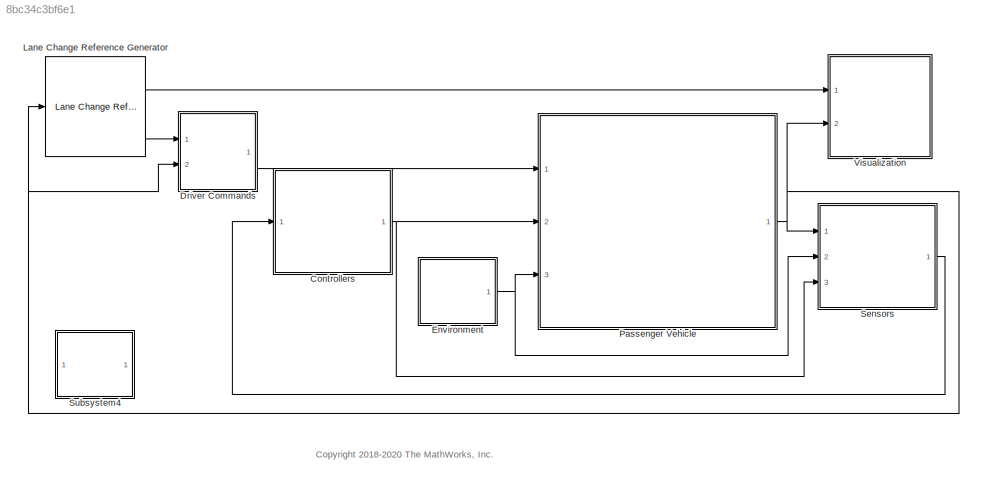
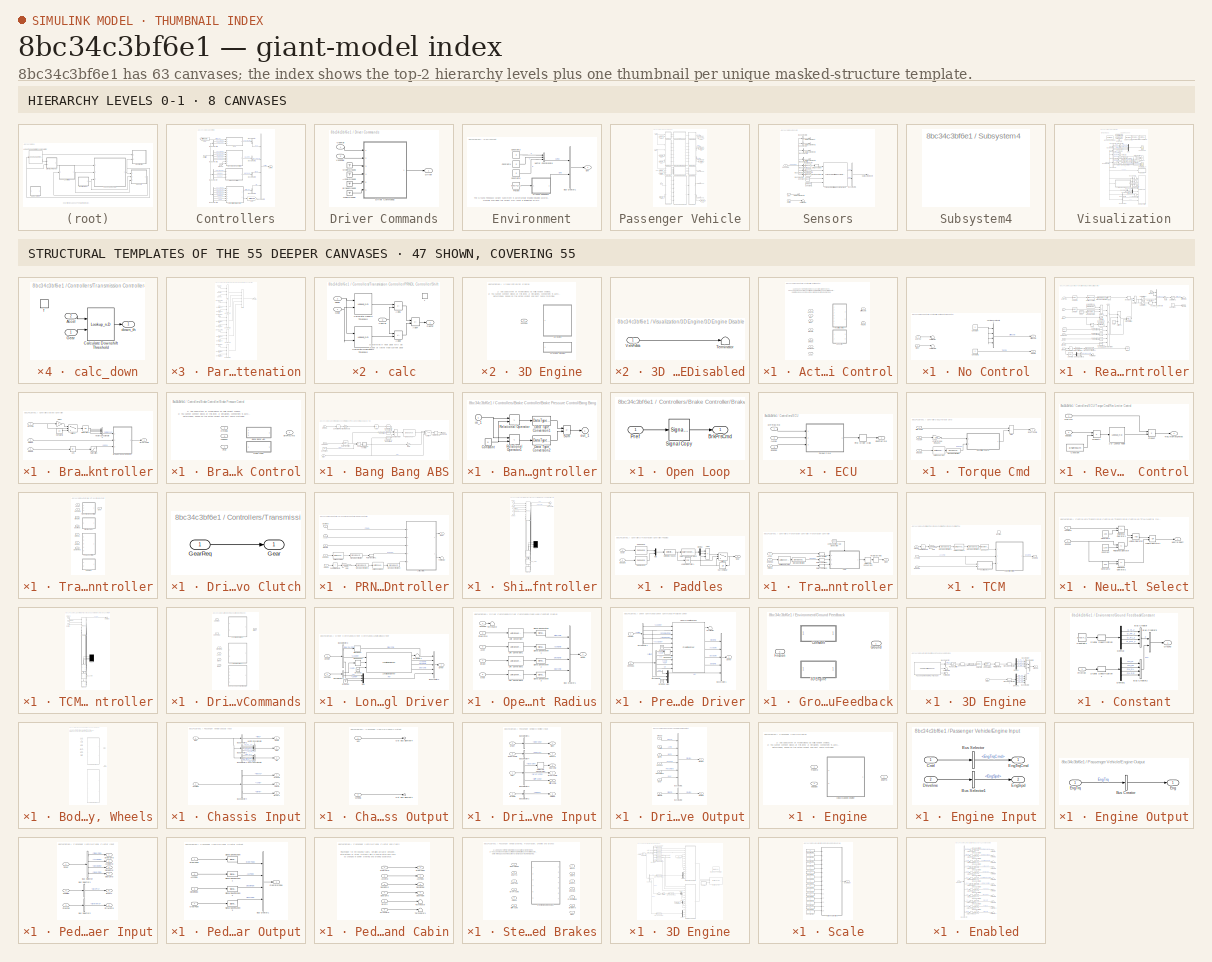
[diagram: thumbnail index - top-2 hierarchy levels (8 canvases) + 47 structural-template representatives of the remaining 55 canvases]
MODEL slx_8bc34c3bf6e1
KIND model
CONFIG AbsTol = auto
CONFIG EnableMultiTasking = on
CONFIG FixedStep = .001
CONFIG MaxStep = auto
CONFIG MinStep = auto
CONFIG RelTol = 5e-3
CONFIG SampleTimeConstraint = Unconstrained
CONFIG SolverName = ode23tb
CONFIG StartFcn = %tic
CONFIG StartTime = 0.0
CONFIG StopFcn = %toc
CONFIG StopTime = 25
WORKSPACE source: mxarray member
WORKSPACE DLCXref = [0 7.23 7.5 18 33 33.5 45 50 60]
WORKSPACE DLCYref = [0 0 -4.5 -4 -3.75 1.5 1.25 0 0]
WORKSPACE Downshift_Speeds = [9.5625 12.9375 16.3125 19.6875 23.0625 26.4375 29.8125 33.1875 36.5625 39.9375 43.3125 46.6875 ... (28 elements, 4x7)]
WORKSPACE EngRevLim = 7000
WORKSPACE Pedal_Positions = [0.1 0.4 0.5 0.9]
WORKSPACE Upshift_Speeds = [12.9375 16.3125 19.6875 33 26.4375 29.8125 33.1875 52.5 39.9375 43.3125 46.6875 77.25 ... (28 elements, 4x7)]
WORKSPACE VEH: object (value not decoded)
BLOCK [SubSystem] Controllers
  Ports = [1, 1]
  RequestExecContextInheritance = off
BLOCK [SubSystem] Controllers/Active Differential Control
  LabelModeActiveChoice = 0
  Ports = [7, 2]
  RequestExecContextInheritance = off
  Variant = on
  VariantControlMode = label
BLOCK [Inport] Controllers/Active Differential Control/Accel
BLOCK [Inport] Controllers/Active Differential Control/BrkCmd
  Port = 2
BLOCK [Outport] Controllers/Active Differential Control/DiffPrsCmd
  VectorParamsAs1DForOutWhenUnconnected = off
BLOCK [Inport] Controllers/Active Differential Control/GearFdbk
  Port = 4
BLOCK [SubSystem] Controllers/Active Differential Control/No Control
  Ports = [2, 2]
  RequestExecContextInheritance = off
  VariantControl = 0
BLOCK [Constant] Controllers/Active Differential Control/No Control/Constant
  Value = 0
BLOCK [Constant] Controllers/Active Differential Control/No Control/Constant1
  Value = 0
BLOCK [Outport] Controllers/Active Differential Control/No Control/DiffPrsCmd
  VectorParamsAs1DForOutWhenUnconnected = off
BLOCK [Inport] Controllers/Active Differential Control/No Control/Steer
  Port = 2
BLOCK [Terminator] Controllers/Active Differential Control/No Control/Terminator
BLOCK [Terminator] Controllers/Active Differential Control/No Control/Terminator1
BLOCK [Outport] Controllers/Active Differential Control/No Control/TrqCmd
  Port = 2
  VectorParamsAs1DForOutWhenUnconnected = off
BLOCK [Concatenate] Controllers/Active Differential Control/No Control/Vector Concatenate2
  NumInputs = 4
  Ports = [4, 1]
BLOCK [Inport] Controllers/Active Differential Control/No Control/axayaz
BLOCK [Inport] Controllers/Active Differential Control/Omega
  Port = 5
  Unit = rad/s
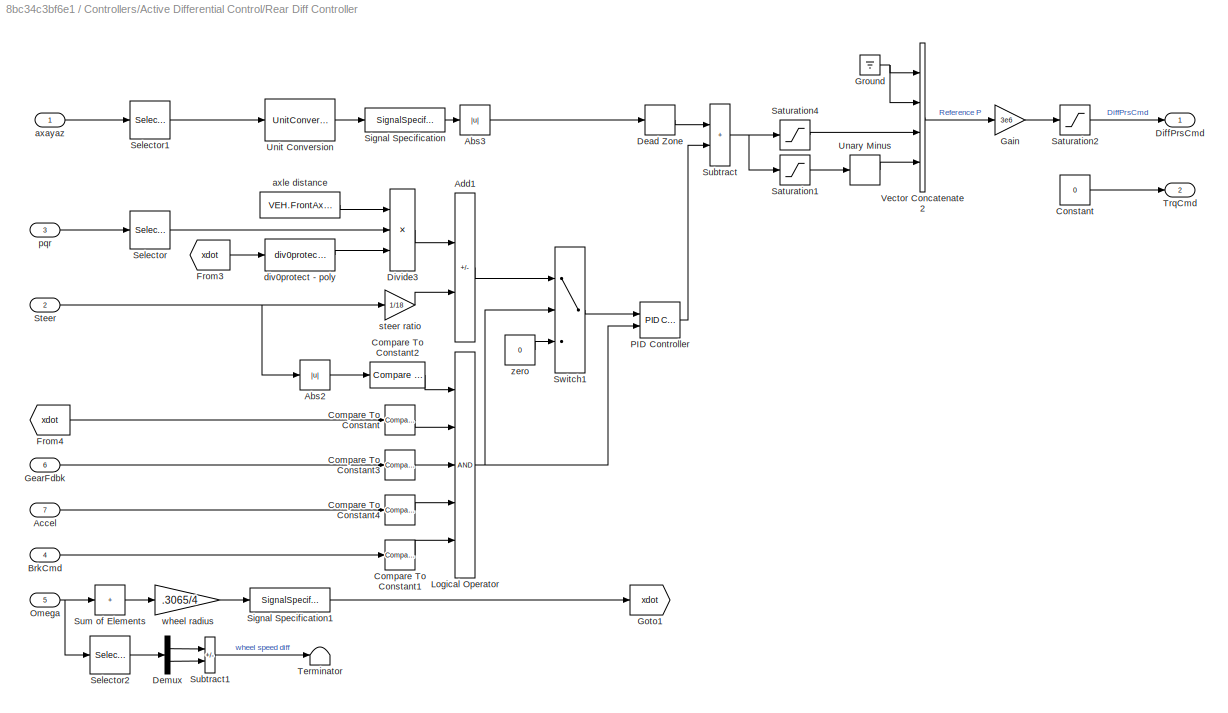
BLOCK [SubSystem] Controllers/Active Differential Control/Rear Diff Controller
  Ports = [7, 2]
  RequestExecContextInheritance = off
  SystemSampleTime = .01
  TreatAsAtomicUnit = on
  VariantControl = 1
BLOCK [Abs] Controllers/Active Differential Control/Rear Diff Controller/Abs2
  SaturateOnIntegerOverflow = off
BLOCK [Abs] Controllers/Active Differential Control/Rear Diff Controller/Abs3
  SaturateOnIntegerOverflow = off
  ZeroCross = off
BLOCK [Inport] Controllers/Active Differential Control/Rear Diff Controller/Accel
  Port = 7
BLOCK [Sum] Controllers/Active Differential Control/Rear Diff Controller/Add1
  IconShape = rectangular
  Inputs = +-
  Ports = [2, 1]
BLOCK [Inport] Controllers/Active Differential Control/Rear Diff Controller/BrkCmd
  Port = 4
BLOCK [Reference] Controllers/Active Differential Control/Rear Diff Controller/Compare To Constant  REF=simulink/Logic and Bit
Operations/Compare
To Constant
  Ports = [1, 1]
  SourceBlock = simulink/Logic and Bit\nOperations/Compare\nTo Constant
  SourceProductBaseCode = SL
  SourceType = Compare To Constant
BLOCK [Reference] Controllers/Active Differential Control/Rear Diff Controller/Compare To Constant1  REF=simulink/Logic and Bit
Operations/Compare
To Constant
  Ports = [1, 1]
  SourceBlock = simulink/Logic and Bit\nOperations/Compare\nTo Constant
  SourceProductBaseCode = SL
  SourceType = Compare To Constant
BLOCK [Reference] Controllers/Active Differential Control/Rear Diff Controller/Compare To Constant2  REF=simulink/Logic and Bit
Operations/Compare
To Constant
  Ports = [1, 1]
  SourceBlock = simulink/Logic and Bit\nOperations/Compare\nTo Constant
  SourceProductBaseCode = SL
  SourceType = Compare To Constant
BLOCK [Reference] Controllers/Active Differential Control/Rear Diff Controller/Compare To Constant3  REF=simulink/Logic and Bit
Operations/Compare
To Constant
  Ports = [1, 1]
  SourceBlock = simulink/Logic and Bit\nOperations/Compare\nTo Constant
  SourceProductBaseCode = SL
  SourceType = Compare To Constant
BLOCK [Reference] Controllers/Active Differential Control/Rear Diff Controller/Compare To Constant4  REF=simulink/Logic and Bit
Operations/Compare
To Constant
  Ports = [1, 1]
  SourceBlock = simulink/Logic and Bit\nOperations/Compare\nTo Constant
  SourceProductBaseCode = SL
  SourceType = Compare To Constant
BLOCK [Constant] Controllers/Active Differential Control/Rear Diff Controller/Constant
  Value = 0
BLOCK [DeadZone] Controllers/Active Differential Control/Rear Diff Controller/Dead Zone
  ZeroCross = off
BLOCK [Demux] Controllers/Active Differential Control/Rear Diff Controller/Demux
  Outputs = 2
  Ports = [1, 2]
BLOCK [Outport] Controllers/Active Differential Control/Rear Diff Controller/DiffPrsCmd
  VectorParamsAs1DForOutWhenUnconnected = off
BLOCK [Product] Controllers/Active Differential Control/Rear Diff Controller/Divide3
  Inputs = **/
  Ports = [3, 1]
BLOCK [From] Controllers/Active Differential Control/Rear Diff Controller/From3
  GotoTag = xdot
BLOCK [From] Controllers/Active Differential Control/Rear Diff Controller/From4
  GotoTag = xdot
BLOCK [Gain] Controllers/Active Differential Control/Rear Diff Controller/Gain
  Gain = 3e6
BLOCK [Inport] Controllers/Active Differential Control/Rear Diff Controller/GearFdbk
  Port = 6
BLOCK [Goto] Controllers/Active Differential Control/Rear Diff Controller/Goto1
  GotoTag = xdot
BLOCK [Ground] Controllers/Active Differential Control/Rear Diff Controller/Ground
BLOCK [Logic] Controllers/Active Differential Control/Rear Diff Controller/Logical Operator
  AllPortsSameDT = off
  Inputs = 5
  OutDataTypeStr = boolean
  Ports = [5, 1]
BLOCK [Inport] Controllers/Active Differential Control/Rear Diff Controller/Omega
  Port = 5
  Unit = rad/s
BLOCK [Reference] Controllers/Active Differential Control/Rear Diff Controller/PID Controller  REF=pid_lib/PID Controller
  Ports = [2, 1]
  SourceBlock = pid_lib/PID Controller
  SourceProductBaseCode = SL
  SourceType = PID 1dof
BLOCK [Saturate] Controllers/Active Differential Control/Rear Diff Controller/Saturation1
  LowerLimit = -1
  UpperLimit = 0
  ZeroCross = off
BLOCK [Saturate] Controllers/Active Differential Control/Rear Diff Controller/Saturation2
  LowerLimit = 0
  UpperLimit = 5e6
  ZeroCross = off
BLOCK [Saturate] Controllers/Active Differential Control/Rear Diff Controller/Saturation4
  LowerLimit = 0
  UpperLimit = 1
  ZeroCross = off
BLOCK [Selector] Controllers/Active Differential Control/Rear Diff Controller/Selector
  IndexOptions = Index vector (dialog)
  Indices = [3]
  InputPortWidth = 3
  OutputSizes = 1
  Ports = [1, 1]
BLOCK [Selector] Controllers/Active Differential Control/Rear Diff Controller/Selector1
  IndexOptions = Index vector (dialog)
  Indices = [2]
  InputPortWidth = 3
  OutputSizes = 1
  Ports = [1, 1]
BLOCK [Selector] Controllers/Active Differential Control/Rear Diff Controller/Selector2
  IndexOptions = Index vector (dialog)
  Indices = [3 4]
  InputPortWidth = 4
  OutputSizes = 1
  Ports = [1, 1]
BLOCK [SignalSpecification] Controllers/Active Differential Control/Rear Diff Controller/Signal Specification
  Unit = gn
BLOCK [SignalSpecification] Controllers/Active Differential Control/Rear Diff Controller/Signal Specification1
  Unit = m/s
BLOCK [Inport] Controllers/Active Differential Control/Rear Diff Controller/Steer
  Port = 2
BLOCK [Sum] Controllers/Active Differential Control/Rear Diff Controller/Subtract
  IconShape = rectangular
  Ports = [2, 1]
BLOCK [Sum] Controllers/Active Differential Control/Rear Diff Controller/Subtract1
  IconShape = rectangular
  Inputs = +-
  Ports = [2, 1]
BLOCK [Sum] Controllers/Active Differential Control/Rear Diff Controller/Sum of Elements
  IconShape = rectangular
  Inputs = +
  Ports = [1, 1]
BLOCK [Switch] Controllers/Active Differential Control/Rear Diff Controller/Switch1
  Criteria = u2 > Threshold
  InputSameDT = off
  SaturateOnIntegerOverflow = off
  Threshold = .1
BLOCK [Terminator] Controllers/Active Differential Control/Rear Diff Controller/Terminator
BLOCK [Outport] Controllers/Active Differential Control/Rear Diff Controller/TrqCmd
  Port = 2
  VectorParamsAs1DForOutWhenUnconnected = off
BLOCK [UnaryMinus] Controllers/Active Differential Control/Rear Diff Controller/Unary Minus
BLOCK [UnitConversion] Controllers/Active Differential Control/Rear Diff Controller/Unit Conversion
BLOCK [Concatenate] Controllers/Active Differential Control/Rear Diff Controller/Vector Concatenate2
  NumInputs = 4
  Ports = [4, 1]
BLOCK [Inport] Controllers/Active Differential Control/Rear Diff Controller/axayaz
BLOCK [Constant] Controllers/Active Differential Control/Rear Diff Controller/axle distance
  NameLocation = top
  Value = VEH.FrontAxlePositionfromCG+VEH.RearAxlePositionfromCG
BLOCK [Reference] Controllers/Active Differential Control/Rear Diff Controller/div0protect - poly  REF=autolibutils/div0protect - poly
  Ports = [1, 1]
  SourceBlock = autolibutils/div0protect - poly
  SourceProductBaseCode = PW,MT,UV,VE,VP
BLOCK [Inport] Controllers/Active Differential Control/Rear Diff Controller/pqr
  Port = 3
BLOCK [Gain] Controllers/Active Differential Control/Rear Diff Controller/steer ratio
  Gain = 1/18
BLOCK [Gain] Controllers/Active Differential Control/Rear Diff Controller/wheel radius
  Gain = .3065/4
BLOCK [Constant] Controllers/Active Differential Control/Rear Diff Controller/zero
  Value = 0
BLOCK [Inport] Controllers/Active Differential Control/Steer
  Port = 3
BLOCK [Outport] Controllers/Active Differential Control/TrqCmd
  Port = 2
  VectorParamsAs1DForOutWhenUnconnected = off
BLOCK [Inport] Controllers/Active Differential Control/axayaz
  Port = 6
BLOCK [Inport] Controllers/Active Differential Control/pqr
  Port = 7
BLOCK [SubSystem] Controllers/Brake Controller
  Ports = [3, 1]
  RequestExecContextInheritance = off
BLOCK [Abs] Controllers/Brake Controller/Abs
  SaturateOnIntegerOverflow = off
  ZeroCross = off
BLOCK [SubSystem] Controllers/Brake Controller/Brake Pressure Control
  LabelModeActiveChoice = 0
  Ports = [3, 1]
  RequestExecContextInheritance = off
  Variant = on
  VariantControlMode = label
BLOCK [Inport] Controllers/Brake Controller/Brake Pressure Control/<Kappa>
  Port = 3
BLOCK [SubSystem] Controllers/Brake Controller/Brake Pressure Control/Bang Bang ABS
  Ports = [3, 1]
  RequestExecContextInheritance = off
  VariantControl = 1
BLOCK [Inport] Controllers/Brake Controller/Brake Pressure Control/Bang Bang ABS/<Kappa>
  Port = 3
BLOCK [Abs] Controllers/Brake Controller/Brake Pressure Control/Bang Bang ABS/Abs
  SaturateOnIntegerOverflow = off
BLOCK [Sum] Controllers/Brake Controller/Brake Pressure Control/Bang Bang ABS/Add
  IconShape = rectangular
  Inputs = -+
  Ports = [2, 1]
BLOCK [SubSystem] Controllers/Brake Controller/Brake Pressure Control/Bang Bang ABS/Bang-bang controller
  Ports = [1, 1]
  RequestExecContextInheritance = off
  ShowPortLabels = none
BLOCK [Constant] Controllers/Brake Controller/Brake Pressure Control/Bang Bang ABS/Bang-bang controller/Constant
  Value = 0
BLOCK [DataTypeConversion] Controllers/Brake Controller/Brake Pressure Control/Bang Bang ABS/Bang-bang controller/Data Type Conversion1
  OutDataTypeStr = double
BLOCK [DataTypeConversion] Controllers/Brake Controller/Brake Pressure Control/Bang Bang ABS/Bang-bang controller/Data Type Conversion2
  OutDataTypeStr = double
BLOCK [RelationalOperator] Controllers/Brake Controller/Brake Pressure Control/Bang Bang ABS/Bang-bang controller/Relational Operator
  Operator = >
  OutDataTypeStr = boolean
  Ports = [2, 1]
BLOCK [RelationalOperator] Controllers/Brake Controller/Brake Pressure Control/Bang Bang ABS/Bang-bang controller/Relational Operator1
  Operator = <
  OutDataTypeStr = boolean
  Ports = [2, 1]
BLOCK [Sum] Controllers/Brake Controller/Brake Pressure Control/Bang Bang ABS/Bang-bang controller/Sum
  IconShape = rectangular
  InputSameDT = on
  Inputs = +-
  OutDataTypeStr = Inherit: Same as first input
  Ports = [2, 1]
  SaturateOnIntegerOverflow = on
BLOCK [Inport] Controllers/Brake Controller/Brake Pressure Control/Bang Bang ABS/Bang-bang controller/in_1
BLOCK [Outport] Controllers/Brake Controller/Brake Pressure Control/Bang Bang ABS/Bang-bang controller/out_1
  InitialOutput = 0
  VectorParamsAs1DForOutWhenUnconnected = off
BLOCK [Outport] Controllers/Brake Controller/Brake Pressure Control/Bang Bang ABS/BrkPrsCmd
  VectorParamsAs1DForOutWhenUnconnected = off
BLOCK [Reference] Controllers/Brake Controller/Brake Pressure Control/Bang Bang ABS/Compare To Constant  REF=simulink/Logic and Bit
Operations/Compare
To Constant
  Ports = [1, 1]
  SourceBlock = simulink/Logic and Bit\nOperations/Compare\nTo Constant
  SourceProductBaseCode = SL
  SourceType = Compare To Constant
BLOCK [Reference] Controllers/Brake Controller/Brake Pressure Control/Bang Bang ABS/Compare To Constant1  REF=simulink/Logic and Bit
Operations/Compare
To Constant
  Ports = [1, 1]
  SourceBlock = simulink/Logic and Bit\nOperations/Compare\nTo Constant
  SourceProductBaseCode = SL
  SourceType = Compare To Constant
BLOCK [Reference] Controllers/Brake Controller/Brake Pressure Control/Bang Bang ABS/Compare To Constant2  REF=simulink/Logic and Bit
Operations/Compare
To Constant
  Ports = [1, 1]
  SourceBlock = simulink/Logic and Bit\nOperations/Compare\nTo Constant
  SourceProductBaseCode = SL
  SourceType = Compare To Constant
BLOCK [Constant] Controllers/Brake Controller/Brake Pressure Control/Bang Bang ABS/Constant
  Value = .25
BLOCK [Reference] Controllers/Brake Controller/Brake Pressure Control/Bang Bang ABS/Debounce  REF=autolibutils/Debounce
  Ports = [1, 1]
  SourceBlock = autolibutils/Debounce
  SourceProductBaseCode = PW,MT,UV,VE,VP
BLOCK [FirstOrderHold] Controllers/Brake Controller/Brake Pressure Control/Bang Bang ABS/First Order Hold
  ErrorTolerance = 1
BLOCK [Gain] Controllers/Brake Controller/Brake Pressure Control/Bang Bang ABS/Gain
  Gain = 200
BLOCK [Logic] Controllers/Brake Controller/Brake Pressure Control/Bang Bang ABS/Logical Operator
  AllPortsSameDT = off
  Inputs = 3
  OutDataTypeStr = boolean
  Ports = [3, 1]
BLOCK [Inport] Controllers/Brake Controller/Brake Pressure Control/Bang Bang ABS/Omega
  Port = 2
BLOCK [Inport] Controllers/Brake Controller/Brake Pressure Control/Bang Bang ABS/Pref
BLOCK [RateTransition] Controllers/Brake Controller/Brake Pressure Control/Bang Bang ABS/Rate Transition
  Deterministic = off
  OutPortSampleTime = .001
BLOCK [Gain] Controllers/Brake Controller/Brake Pressure Control/Bang Bang ABS/Re//NWheels
  Gain = 0.3/4
BLOCK [Sum] Controllers/Brake Controller/Brake Pressure Control/Bang Bang ABS/Sum of Elements
  IconShape = rectangular
  Inputs = +
  Ports = [1, 1]
BLOCK [Switch] Controllers/Brake Controller/Brake Pressure Control/Bang Bang ABS/Switch
  Criteria = u2 > Threshold
  InputSameDT = off
  SaturateOnIntegerOverflow = off
  ZeroCross = off
BLOCK [Outport] Controllers/Brake Controller/Brake Pressure Control/BrkPrsCmd
  VectorParamsAs1DForOutWhenUnconnected = off
BLOCK [Inport] Controllers/Brake Controller/Brake Pressure Control/Omega
  Port = 2
BLOCK [SubSystem] Controllers/Brake Controller/Brake Pressure Control/Open Loop
  Ports = [1, 1]
  RequestExecContextInheritance = off
  VariantControl = 0
BLOCK [Outport] Controllers/Brake Controller/Brake Pressure Control/Open Loop/BrkPrsCmd
  VectorParamsAs1DForOutWhenUnconnected = off
BLOCK [Inport] Controllers/Brake Controller/Brake Pressure Control/Open Loop/Pref
BLOCK [SignalConversion] Controllers/Brake Controller/Brake Pressure Control/Open Loop/Signal Copy
  OverrideOpt = off
BLOCK [Inport] Controllers/Brake Controller/Brake Pressure Control/Pref
BLOCK [Inport] Controllers/Brake Controller/BrkCmd
BLOCK [Outport] Controllers/Brake Controller/BrkPrsCmd
  VectorParamsAs1DForOutWhenUnconnected = off
BLOCK [Constant] Controllers/Brake Controller/Constant1
  Value = -20
BLOCK [Gain] Controllers/Brake Controller/Gain3
BLOCK [Integrator] Controllers/Brake Controller/Integrator2
  LimitOutput = on
  LowerSaturationLimit = 0
  Ports = [1, 1]
  UpperSaturationLimit = 1
BLOCK [Inport] Controllers/Brake Controller/Omega
  Port = 2
BLOCK [Saturate] Controllers/Brake Controller/Saturation
  LowerLimit = 0
  UpperLimit = 1
  ZeroCross = off
BLOCK [Switch] Controllers/Brake Controller/Switch1
  Criteria = u2 > Threshold
  InputSameDT = off
  SaturateOnIntegerOverflow = off
  Threshold = .1
BLOCK [Concatenate] Controllers/Brake Controller/Vector Concatenate2
  NumInputs = 4
  Ports = [4, 1]
BLOCK [Inport] Controllers/Brake Controller/kappa
  Port = 3
BLOCK [BusCreator] Controllers/Bus Creator
  DisplayOption = bar
  InheritFromInputs = on
  Inputs = 1
  Ports = [1, 1]
BLOCK [BusCreator] Controllers/Bus Creator1
  DisplayOption = bar
  InheritFromInputs = on
  Inputs = 1
  Ports = [1, 1]
BLOCK [BusCreator] Controllers/Bus Creator2
  DisplayOption = bar
  InheritFromInputs = on
  Inputs = 1
  Ports = [1, 1]
BLOCK [BusCreator] Controllers/Bus Creator3
  DisplayOption = bar
  InheritFromInputs = on
  Inputs = 4
  Ports = [4, 1]
BLOCK [BusCreator] Controllers/Bus Creator4
  DisplayOption = bar
  InheritFromInputs = on
  Inputs = 1
  Ports = [1, 1]
BLOCK [BusSelector] Controllers/Bus Selector
  OutputSignals = Driver.DecelFdbk,Wheels.Omega,Wheels.Kappa
  Ports = [1, 3]
BLOCK [BusSelector] Controllers/Bus Selector1
  OutputSignals = Driver.AccFdbk,Driver.DecelFdbk,Driver.GearFdbk,Engine.EngSpd,Wheels.Omega
  Ports = [1, 5]
BLOCK [BusSelector] Controllers/Bus Selector2
  OutputSignals = Driver.AccFdbk,Engine.EngSpd
  Ports = [1, 2]
BLOCK [BusSelector] Controllers/Bus Selector3
  OutputSignals = Driver.AccFdbk,Driver.DecelFdbk,Driver.SteerFdbk,Driver.GearFdbk,Wheels.Omega,IMU.Acc,IMU.pqr
  Ports = [1, 7]
BLOCK [Inport] Controllers/CntrlRx
BLOCK [Outport] Controllers/CntrlTx
  VectorParamsAs1DForOutWhenUnconnected = off
BLOCK [SubSystem] Controllers/ECU
  Ports = [3, 1]
  RequestExecContextInheritance = off
  SystemSampleTime = .01
BLOCK [Inport] Controllers/ECU/<Accel>
  Port = 2
BLOCK [Inport] Controllers/ECU/DiffTrqCmd
BLOCK [Inport] Controllers/ECU/EngSpd
  Port = 3
BLOCK [Outport] Controllers/ECU/EngTrqCmd
  VectorParamsAs1DForOutWhenUnconnected = off
BLOCK [FirstOrderHold] Controllers/ECU/First Order Hold
  ErrorTolerance = 100
BLOCK [SubSystem] Controllers/ECU/Torque Cmd
  Ports = [3, 1]
  RequestExecContextInheritance = off
  SystemSampleTime = .01
  TreatAsAtomicUnit = on
BLOCK [Inport] Controllers/ECU/Torque Cmd/<Accel>
  Port = 2
BLOCK [Gain] Controllers/ECU/Torque Cmd/Acc to Torque Request
  Gain = 150
BLOCK [Inport] Controllers/ECU/Torque Cmd/DiffTrqCmd
BLOCK [Inport] Controllers/ECU/Torque Cmd/EngSpd
  Port = 3
BLOCK [Outport] Controllers/ECU/Torque Cmd/EngTrqCmd
BLOCK [MinMax] Controllers/ECU/Torque Cmd/Max
  Function = max
  Inputs = 2
  Ports = [2, 1]
BLOCK [SubSystem] Controllers/ECU/Torque Cmd/Rev Limiter Control
  Ports = [2, 1]
  RequestExecContextInheritance = off
BLOCK [Lookup_n-D] Controllers/ECU/Torque Cmd/Rev Limiter Control/1-D Lookup Table
  BreakpointsForDimension1 = [1 1.01]
  ExtrapMethod = Clip
  InputPortMap = u0
  InternalRulePriority = Speed
  NumberOfTableDimensions = 1
  Ports = [1, 1]
  RndMeth = Simplest
  Table = [1 0]
BLOCK [Constant] Controllers/ECU/Torque Cmd/Rev Limiter Control/Constant
  Value = EngRevLim
BLOCK [Inport] Controllers/ECU/Torque Cmd/Rev Limiter Control/EngSpd
  Port = 2
BLOCK [Product] Controllers/ECU/Torque Cmd/Rev Limiter Control/Product
  Ports = [2, 1]
BLOCK [Product] Controllers/ECU/Torque Cmd/Rev Limiter Control/Product1
  Inputs = */
  Ports = [2, 1]
BLOCK [Inport] Controllers/ECU/Torque Cmd/Rev Limiter Control/TrqCmd
BLOCK [Outport] Controllers/ECU/Torque Cmd/Rev Limiter Control/TrqCmdRevLimited
  VectorParamsAs1DForOutWhenUnconnected = off
BLOCK [SignalSpecification] Controllers/ECU/Torque Cmd/Signal Specification
  Unit = rpm
BLOCK [UnitConversion] Controllers/ECU/Torque Cmd/Unit Conversion
BLOCK [From] Controllers/From
  GotoTag = DiffTrqCmd
BLOCK [Goto] Controllers/Goto
  GotoTag = DiffTrqCmd
BLOCK [Ground] Controllers/Ground
BLOCK [SubSystem] Controllers/Transmission Controller
  LabelModeActiveChoice = 3
  Ports = [7, 1]
  RequestExecContextInheritance = off
  Variant = on
  VariantControl = Variant1
  VariantControlMode = label
BLOCK [Outport] Controllers/Transmission Controller/ Gear
  VectorParamsAs1DForOutWhenUnconnected = off
BLOCK [Inport] Controllers/Transmission Controller/Accel
BLOCK [Inport] Controllers/Transmission Controller/BrkCmd
  Port = 2
BLOCK [Inport] Controllers/Transmission Controller/DownReq
  Port = 7
  Unit = rad/s
BLOCK [SubSystem] Controllers/Transmission Controller/Driver - No Clutch
  Ports = [1, 1]
  RequestExecContextInheritance = off
  VariantControl = 1
BLOCK [Outport] Controllers/Transmission Controller/Driver - No Clutch/Gear
  VectorParamsAs1DForOutWhenUnconnected = off
BLOCK [Inport] Controllers/Transmission Controller/Driver - No Clutch/GearReq
BLOCK [Inport] Controllers/Transmission Controller/EngSpd
  Port = 4
BLOCK [Inport] Controllers/Transmission Controller/GearReq
  Port = 3
BLOCK [Inport] Controllers/Transmission Controller/Omega
  Port = 5
  Unit = rad/s
BLOCK [SubSystem] Controllers/Transmission Controller/PRNDL Controller
  Ports = [5, 1]
  RequestExecContextInheritance = off
  VariantControl = 3
BLOCK [Inport] Controllers/Transmission Controller/PRNDL Controller/Accel
BLOCK [Inport] Controllers/Transmission Controller/PRNDL Controller/BrkCmd
  Port = 2
BLOCK [Inport] Controllers/Transmission Controller/PRNDL Controller/EngSpd
  Port = 4
  Unit = rad/s
BLOCK [Gain] Controllers/Transmission Controller/PRNDL Controller/Gain
  Gain = .3065/4
BLOCK [Outport] Controllers/Transmission Controller/PRNDL Controller/Gear
  VectorParamsAs1DForOutWhenUnconnected = off
BLOCK [Inport] Controllers/Transmission Controller/PRNDL Controller/GearReq
  Port = 5
BLOCK [Inport] Controllers/Transmission Controller/PRNDL Controller/Omega
  Port = 3
  Unit = rad/s
BLOCK [RateTransition] Controllers/Transmission Controller/PRNDL Controller/Rate Transition1
  Deterministic = off
BLOCK [SubSystem] Controllers/Transmission Controller/PRNDL Controller/Shift Controller
  ErrorFcn = Stateflow.Translate.translate
  InitFcn = [~] = vehdynicon('vedhynmaneuver',gcb,0)
  PermitHierarchicalResolution = ExplicitOnly
  Ports = [5, 2]
  RequestExecContextInheritance = off
  SFBlockType = Chart
  TreatAsAtomicUnit = on
BLOCK [Demux] Controllers/Transmission Controller/PRNDL Controller/Shift Controller/ Demux 
  Outputs = 3
  Ports = [1, 3]
BLOCK [S-Function] Controllers/Transmission Controller/PRNDL Controller/Shift Controller/ SFunction 
  EnableBusSupport = on
  FunctionName = sf_sfun
  Parameters = GearInit,tClutch,tPark,tRev
  PortCounts = [8 10]
  Ports = [8, 10]
  SFcnIsStateOwnerBlock = off
  SFunctionDeploymentMode = off
  Tag = Stateflow S-Function 4
BLOCK [Inport] Controllers/Transmission Controller/PRNDL Controller/Shift Controller/Accel
  Port = 2
BLOCK [Inport] Controllers/Transmission Controller/PRNDL Controller/Shift Controller/Brake
  Port = 3
BLOCK [Inport] Controllers/Transmission Controller/PRNDL Controller/Shift Controller/EngSpd
  Port = 4
BLOCK [Outport] Controllers/Transmission Controller/PRNDL Controller/Shift Controller/Gear
  VectorParamsAs1DForOutWhenUnconnected = off
BLOCK [Inport] Controllers/Transmission Controller/PRNDL Controller/Shift Controller/PRNDL
BLOCK [Inport] Controllers/Transmission Controller/PRNDL Controller/Shift Controller/VehVel
  Port = 5
BLOCK [SubSystem] Controllers/Transmission Controller/PRNDL Controller/Shift Controller/calc
  Ports = [3, 1, 0, 1]
  PreDeleteFcn = Stateflow.SLINSF.SimulinkMan.removePreDeleteFcn
  RequestExecContextInheritance = off
  UndoDeleteFcn = Stateflow.SLINSF.SimulinkMan.restorePreDeleteFcn
BLOCK [Sum] Controllers/Transmission Controller/PRNDL Controller/Shift Controller/calc/Add1
  IconShape = rectangular
  Inputs = +-
  Ports = [2, 1]
BLOCK [Sum] Controllers/Transmission Controller/PRNDL Controller/Shift Controller/calc/Add3
  IconShape = rectangular
  Inputs = +-
  Ports = [2, 1]
BLOCK [Sum] Controllers/Transmission Controller/PRNDL Controller/Shift Controller/calc/Add4
  IconShape = rectangular
  Inputs = +-
  Ports = [2, 1]
BLOCK [Lookup_n-D] Controllers/Transmission Controller/PRNDL Controller/Shift Controller/calc/Calculate Downshift Threshold
  BreakpointsForDimension1 = pdlVec
  BreakpointsForDimension2 = DownGearVec
  ExtrapMethod = Clip
  InputPortMap = u0,u1
  InternalRulePriority = Speed
  Ports = [2, 1]
  RndMeth = Simplest
  Table = dwnShftTbl
  UseLastTableValue = on
BLOCK [Lookup_n-D] Controllers/Transmission Controller/PRNDL Controller/Shift Controller/calc/Calculate Upshift Threshold
  BreakpointsForDimension1 = pdlVec
  BreakpointsForDimension2 = UpGearVec
  ExtrapMethod = Clip
  InputPortMap = u0,u1
  InternalRulePriority = Speed
  Ports = [2, 1]
  RndMeth = Simplest
  Table = upShftTbl
  UseLastTableValue = on
BLOCK [Inport] Controllers/Transmission Controller/PRNDL Controller/Shift Controller/calc/Gear
BLOCK [Outport] Controllers/Transmission Controller/PRNDL Controller/Shift Controller/calc/SpdThr
  VectorParamsAs1DForOutWhenUnconnected = off
BLOCK [Inport] Controllers/Transmission Controller/PRNDL Controller/Shift Controller/calc/VehVel
  Port = 3
BLOCK [TriggerPort] Controllers/Transmission Controller/PRNDL Controller/Shift Controller/calc/f
  CopyFcn = Stateflow.SLINSF.SimulinkMan.removeBlockPreDeleteFcn
  Ports = []
  PreDeleteFcn = Stateflow.SLINSF.SimulinkMan.unsafePredeleteFcn
  StatesWhenEnabling = reset
  TriggerType = function-call
  VariantControl = Variant
BLOCK [Inport] Controllers/Transmission Controller/PRNDL Controller/Shift Controller/calc/pedal
  Port = 2
BLOCK [SubSystem] Controllers/Transmission Controller/PRNDL Controller/Shift Controller/calc_down
  Ports = [2, 1, 0, 1]
  PreDeleteFcn = Stateflow.SLINSF.SimulinkMan.removePreDeleteFcn
  RequestExecContextInheritance = off
  UndoDeleteFcn = Stateflow.SLINSF.SimulinkMan.restorePreDeleteFcn
BLOCK [Inport] Controllers/Transmission Controller/PRNDL Controller/Shift Controller/calc_down/Accel
  Port = 2
BLOCK [Lookup_n-D] Controllers/Transmission Controller/PRNDL Controller/Shift Controller/calc_down/Calculate Downshift Threshold
  BreakpointsForDimension1 = pdlVec
  BreakpointsForDimension2 = DownGearVec
  ExtrapMethod = Clip
  InputPortMap = u0,u1
  InternalRulePriority = Speed
  Ports = [2, 1]
  RndMeth = Simplest
  Table = dwnShftTbl
  UseLastTableValue = on
BLOCK [Inport] Controllers/Transmission Controller/PRNDL Controller/Shift Controller/calc_down/Gear
BLOCK [Outport] Controllers/Transmission Controller/PRNDL Controller/Shift Controller/calc_down/down_th
  VectorParamsAs1DForOutWhenUnconnected = off
BLOCK [TriggerPort] Controllers/Transmission Controller/PRNDL Controller/Shift Controller/calc_down/f
  CopyFcn = Stateflow.SLINSF.SimulinkMan.removeBlockPreDeleteFcn
  Ports = []
  PreDeleteFcn = Stateflow.SLINSF.SimulinkMan.unsafePredeleteFcn
  StatesWhenEnabling = reset
  TriggerType = function-call
  VariantControl = Variant
BLOCK [SubSystem] Controllers/Transmission Controller/PRNDL Controller/Shift Controller/calc_up
  Ports = [2, 1, 0, 1]
  PreDeleteFcn = Stateflow.SLINSF.SimulinkMan.removePreDeleteFcn
  RequestExecContextInheritance = off
  UndoDeleteFcn = Stateflow.SLINSF.SimulinkMan.restorePreDeleteFcn
BLOCK [Inport] Controllers/Transmission Controller/PRNDL Controller/Shift Controller/calc_up/Accel
  Port = 2
BLOCK [Lookup_n-D] Controllers/Transmission Controller/PRNDL Controller/Shift Controller/calc_up/Calculate Upshift Threshold
  BreakpointsForDimension1 = pdlVec
  BreakpointsForDimension2 = UpGearVec
  ExtrapMethod = Clip
  InputPortMap = u0,u1
  InternalRulePriority = Speed
  Ports = [2, 1]
  RndMeth = Simplest
  Table = upShftTbl
  UseLastTableValue = on
BLOCK [Inport] Controllers/Transmission Controller/PRNDL Controller/Shift Controller/calc_up/Gear
BLOCK [TriggerPort] Controllers/Transmission Controller/PRNDL Controller/Shift Controller/calc_up/f
  CopyFcn = Stateflow.SLINSF.SimulinkMan.removeBlockPreDeleteFcn
  Ports = []
  PreDeleteFcn = Stateflow.SLINSF.SimulinkMan.unsafePredeleteFcn
  StatesWhenEnabling = reset
  TriggerType = function-call
  VariantControl = Variant
BLOCK [Outport] Controllers/Transmission Controller/PRNDL Controller/Shift Controller/calc_up/up_th
  VectorParamsAs1DForOutWhenUnconnected = off
BLOCK [Outport] Controllers/Transmission Controller/PRNDL Controller/Shift Controller/clutchControl
  Port = 2
  VectorParamsAs1DForOutWhenUnconnected = off
BLOCK [SignalSpecification] Controllers/Transmission Controller/PRNDL Controller/Signal Specification
  Unit = rpm
BLOCK [SignalSpecification] Controllers/Transmission Controller/PRNDL Controller/Signal Specification1
  Unit = m/s
BLOCK [SignalSpecification] Controllers/Transmission Controller/PRNDL Controller/Signal Specification2
  Unit = km/hr
BLOCK [Sum] Controllers/Transmission Controller/PRNDL Controller/Sum of Elements
  IconShape = rectangular
  Inputs = +
  Ports = [1, 1]
BLOCK [Terminator] Controllers/Transmission Controller/PRNDL Controller/Terminator
BLOCK [UnitConversion] Controllers/Transmission Controller/PRNDL Controller/Unit Conversion
BLOCK [UnitConversion] Controllers/Transmission Controller/PRNDL Controller/Unit Conversion1
BLOCK [SubSystem] Controllers/Transmission Controller/Paddles
  Ports = [2, 1]
  RequestExecContextInheritance = off
  VariantControl = 2
BLOCK [Inport] Controllers/Transmission Controller/Paddles/Accel
BLOCK [Sum] Controllers/Transmission Controller/Paddles/Add1
  IconShape = rectangular
  Inputs = +-+
  Ports = [3, 1]
BLOCK [UnitDelay] Controllers/Transmission Controller/Paddles/Current Gear
  HasFrameUpgradeWarning = on
  SampleTime = -1
BLOCK [DataTypeConversion] Controllers/Transmission Controller/Paddles/Data Type Conversion2
  OutDataTypeStr = double
  RndMeth = Floor
  SaturateOnIntegerOverflow = off
BLOCK [Reference] Controllers/Transmission Controller/Paddles/Debounce  REF=autolibutils/Debounce
  Ports = [1, 1]
  SourceBlock = autolibutils/Debounce
  SourceProductBaseCode = PW,MT,UV,VE,VP
BLOCK [Reference] Controllers/Transmission Controller/Paddles/Debounce1  REF=autolibutils/Debounce
  Ports = [1, 1]
  SourceBlock = autolibutils/Debounce
  SourceProductBaseCode = PW,MT,UV,VE,VP
BLOCK [Demux] Controllers/Transmission Controller/Paddles/Demux
  Outputs = 2
  Ports = [1, 2]
BLOCK [Reference] Controllers/Transmission Controller/Paddles/Detect Increase2  REF=simulink/Logic and Bit
Operations/Detect
Increase
  Ports = [1, 1]
  SourceBlock = simulink/Logic and Bit\nOperations/Detect\nIncrease
  SourceProductBaseCode = SL
  SourceType = Detect Increase
BLOCK [Inport] Controllers/Transmission Controller/Paddles/EngSpd
  Port = 2
  Unit = rad/s
BLOCK [Outport] Controllers/Transmission Controller/Paddles/Gear
  VectorParamsAs1DForOutWhenUnconnected = off
BLOCK [Logic] Controllers/Transmission Controller/Paddles/Logical Operator1
  AllPortsSameDT = off
  Inputs = 1
  Operator = XOR
  OutDataTypeStr = boolean
  Ports = [1, 1]
BLOCK [Mux] Controllers/Transmission Controller/Paddles/Mux
  DisplayOption = bar
  Inputs = 2
  Ports = [2, 1]
BLOCK [Switch] Controllers/Transmission Controller/Paddles/Switch2
  Criteria = u2 > Threshold
  InputSameDT = off
  SaturateOnIntegerOverflow = off
BLOCK [SubSystem] Controllers/Transmission Controller/Transmission Controller
  Ports = [3, 1]
  RequestExecContextInheritance = off
  VariantControl = 0
BLOCK [Reference] Controllers/Transmission Controller/Transmission Controller/10ms Function-Call Generator  REF=simulink/Ports &
Subsystems/Function-Call
Generator
  Ports = [0, 1]
  SourceBlock = simulink/Ports &\nSubsystems/Function-Call\nGenerator
  SourceProductBaseCode = SL
  SourceType = Function-Call Generator
BLOCK [Inport] Controllers/Transmission Controller/Transmission Controller/Accel
BLOCK [DataTypeConversion] Controllers/Transmission Controller/Transmission Controller/Data Type Conversion
  RndMeth = Floor
  SaturateOnIntegerOverflow = off
BLOCK [Inport] Controllers/Transmission Controller/Transmission Controller/EngSpd
  Port = 2
  Unit = rad/s
BLOCK [FirstOrderHold] Controllers/Transmission Controller/Transmission Controller/First Order Hold
  ErrorTolerance = .1
BLOCK [Outport] Controllers/Transmission Controller/Transmission Controller/Gear
  VectorParamsAs1DForOutWhenUnconnected = off
BLOCK [Inport] Controllers/Transmission Controller/Transmission Controller/Omega
  Port = 3
  Unit = rad/s
BLOCK [RateTransition] Controllers/Transmission Controller/Transmission Controller/Rate Transition
  Deterministic = off
BLOCK [RateTransition] Controllers/Transmission Controller/Transmission Controller/Rate Transition1
  Deterministic = off
BLOCK [RateTransition] Controllers/Transmission Controller/Transmission Controller/Rate Transition2
  Deterministic = off
BLOCK [SignalSpecification] Controllers/Transmission Controller/Transmission Controller/Signal Specification
  Unit = rpm
BLOCK [SubSystem] Controllers/Transmission Controller/Transmission Controller/TCM
  Ports = [3, 1, 0, 1]
  RequestExecContextInheritance = off
BLOCK [Inport] Controllers/Transmission Controller/Transmission Controller/TCM/AccCmd
BLOCK [Inport] Controllers/Transmission Controller/Transmission Controller/TCM/EngSpd
  Port = 2
BLOCK [Gain] Controllers/Transmission Controller/Transmission Controller/TCM/Gain
  Gain = .3065/4
BLOCK [Outport] Controllers/Transmission Controller/Transmission Controller/TCM/GearCmd
  VectorParamsAs1DForOutWhenUnconnected = off
BLOCK [SubSystem] Controllers/Transmission Controller/Transmission Controller/TCM/Neutral Select
  Ports = [2, 1]
  RequestExecContextInheritance = off
BLOCK [Inport] Controllers/Transmission Controller/Transmission Controller/TCM/Neutral Select/AccCmd
BLOCK [Constant] Controllers/Transmission Controller/Transmission Controller/TCM/Neutral Select/Constant
  Value = 1200
BLOCK [Constant] Controllers/Transmission Controller/Transmission Controller/TCM/Neutral Select/Constant1
  Value = 1e-2
BLOCK [Constant] Controllers/Transmission Controller/Transmission Controller/TCM/Neutral Select/Constant2
  Value = 500
BLOCK [Inport] Controllers/Transmission Controller/Transmission Controller/TCM/Neutral Select/EngSpd
  Port = 2
BLOCK [Logic] Controllers/Transmission Controller/Transmission Controller/TCM/Neutral Select/Logical Operator
  AllPortsSameDT = off
  OutDataTypeStr = boolean
  Ports = [2, 1]
BLOCK [Logic] Controllers/Transmission Controller/Transmission Controller/TCM/Neutral Select/Logical Operator1
  AllPortsSameDT = off
  Operator = OR
  OutDataTypeStr = boolean
  Ports = [2, 1]
BLOCK [Outport] Controllers/Transmission Controller/Transmission Controller/TCM/Neutral Select/Neutral Select
  VectorParamsAs1DForOutWhenUnconnected = off
BLOCK [RelationalOperator] Controllers/Transmission Controller/Transmission Controller/TCM/Neutral Select/Relational Operator
  InputSameDT = off
  Operator = <=
  OutDataTypeStr = boolean
  Ports = [2, 1]
  RndMeth = Simplest
  ZeroCross = off
BLOCK [RelationalOperator] Controllers/Transmission Controller/Transmission Controller/TCM/Neutral Select/Relational Operator1
  InputSameDT = off
  Operator = <=
  OutDataTypeStr = boolean
  Ports = [2, 1]
  RndMeth = Simplest
  ZeroCross = off
BLOCK [RelationalOperator] Controllers/Transmission Controller/Transmission Controller/TCM/Neutral Select/Relational Operator2
  InputSameDT = off
  Operator = <=
  OutDataTypeStr = boolean
  Ports = [2, 1]
  RndMeth = Simplest
  ZeroCross = off
BLOCK [Inport] Controllers/Transmission Controller/Transmission Controller/TCM/Omega
  Port = 3
  Unit = rad/s
BLOCK [SignalSpecification] Controllers/Transmission Controller/Transmission Controller/TCM/Signal Specification1
  Unit = m/s
BLOCK [SignalSpecification] Controllers/Transmission Controller/Transmission Controller/TCM/Signal Specification2
  Unit = km/hr
BLOCK [DiscreteTransferFcn] Controllers/Transmission Controller/Transmission Controller/TCM/Speed LPF
  Denominator = [1.000000000000000 -0.990049833749168 ]
  InputPortMap = u0
  Numerator = [0.000000000000000 0.009950166250832 ]
  Ports = [1, 1]
BLOCK [Sum] Controllers/Transmission Controller/Transmission Controller/TCM/Sum of Elements
  IconShape = rectangular
  Inputs = +
  Ports = [1, 1]
BLOCK [SubSystem] Controllers/Transmission Controller/Transmission Controller/TCM/TCM Shift Controller
  ErrorFcn = Stateflow.Translate.translate
  PermitHierarchicalResolution = ExplicitOnly
  Ports = [3, 1]
  RequestExecContextInheritance = off
  SFBlockType = Chart
  TreatAsAtomicUnit = on
BLOCK [Demux] Controllers/Transmission Controller/Transmission Controller/TCM/TCM Shift Controller/ Demux 
  Outputs = 3
  Ports = [1, 3]
BLOCK [S-Function] Controllers/Transmission Controller/Transmission Controller/TCM/TCM Shift Controller/ SFunction 
  EnableBusSupport = on
  FunctionName = sf_sfun
  PortCounts = [6 9]
  Ports = [6, 9]
  SFcnIsStateOwnerBlock = off
  SFunctionDeploymentMode = off
  Tag = Stateflow S-Function 1
BLOCK [Outport] Controllers/Transmission Controller/Transmission Controller/TCM/TCM Shift Controller/GearCmd
  VectorParamsAs1DForOutWhenUnconnected = off
BLOCK [Inport] Controllers/Transmission Controller/Transmission Controller/TCM/TCM Shift Controller/Neutral
  Port = 3
BLOCK [SubSystem] Controllers/Transmission Controller/Transmission Controller/TCM/TCM Shift Controller/calc
  Ports = [3, 1, 0, 1]
  PreDeleteFcn = Stateflow.SLINSF.SimulinkMan.removePreDeleteFcn
  RequestExecContextInheritance = off
  UndoDeleteFcn = Stateflow.SLINSF.SimulinkMan.restorePreDeleteFcn
BLOCK [Sum] Controllers/Transmission Controller/Transmission Controller/TCM/TCM Shift Controller/calc/Add1
  IconShape = rectangular
  Inputs = +-
  Ports = [2, 1]
BLOCK [Sum] Controllers/Transmission Controller/Transmission Controller/TCM/TCM Shift Controller/calc/Add3
  IconShape = rectangular
  Inputs = +-
  Ports = [2, 1]
BLOCK [Sum] Controllers/Transmission Controller/Transmission Controller/TCM/TCM Shift Controller/calc/Add4
  IconShape = rectangular
  Inputs = +-
  Ports = [2, 1]
BLOCK [Lookup_n-D] Controllers/Transmission Controller/Transmission Controller/TCM/TCM Shift Controller/calc/Calculate Downshift Threshold
  BreakpointsForDimension1 = Pedal_Positions
  BreakpointsForDimension2 = 2:8
  ExtrapMethod = Clip
  InputPortMap = u0,u1
  InternalRulePriority = Speed
  Ports = [2, 1]
  RndMeth = Simplest
  Table = Downshift_Speeds
  UseLastTableValue = on
BLOCK [Lookup_n-D] Controllers/Transmission Controller/Transmission Controller/TCM/TCM Shift Controller/calc/Calculate Upshift Threshold
  BreakpointsForDimension1 = Pedal_Positions
  BreakpointsForDimension2 = 1:7
  ExtrapMethod = Clip
  InputPortMap = u0,u1
  InternalRulePriority = Speed
  Ports = [2, 1]
  RndMeth = Simplest
  Table = Upshift_Speeds
  UseLastTableValue = on
BLOCK [Outport] Controllers/Transmission Controller/Transmission Controller/TCM/TCM Shift Controller/calc/SpdThr
  VectorParamsAs1DForOutWhenUnconnected = off
BLOCK [TriggerPort] Controllers/Transmission Controller/Transmission Controller/TCM/TCM Shift Controller/calc/f
  CopyFcn = Stateflow.SLINSF.SimulinkMan.removeBlockPreDeleteFcn
  Ports = []
  PreDeleteFcn = Stateflow.SLINSF.SimulinkMan.unsafePredeleteFcn
  StatesWhenEnabling = reset
  TriggerType = function-call
  VariantControl = Variant
BLOCK [Inport] Controllers/Transmission Controller/Transmission Controller/TCM/TCM Shift Controller/calc/gear
BLOCK [Inport] Controllers/Transmission Controller/Transmission Controller/TCM/TCM Shift Controller/calc/pedal
  Port = 2
BLOCK [Inport] Controllers/Transmission Controller/Transmission Controller/TCM/TCM Shift Controller/calc/speed
  Port = 3
BLOCK [SubSystem] Controllers/Transmission Controller/Transmission Controller/TCM/TCM Shift Controller/calc_down
  Ports = [2, 1, 0, 1]
  PreDeleteFcn = Stateflow.SLINSF.SimulinkMan.removePreDeleteFcn
  RequestExecContextInheritance = off
  UndoDeleteFcn = Stateflow.SLINSF.SimulinkMan.restorePreDeleteFcn
BLOCK [Lookup_n-D] Controllers/Transmission Controller/Transmission Controller/TCM/TCM Shift Controller/calc_down/Calculate Downshift Threshold
  BreakpointsForDimension1 = Pedal_Positions
  BreakpointsForDimension2 = 2:8
  ExtrapMethod = Clip
  InputPortMap = u0,u1
  InternalRulePriority = Speed
  Ports = [2, 1]
  RndMeth = Simplest
  Table = Downshift_Speeds
  UseLastTableValue = on
BLOCK [Outport] Controllers/Transmission Controller/Transmission Controller/TCM/TCM Shift Controller/calc_down/down_th
  VectorParamsAs1DForOutWhenUnconnected = off
BLOCK [TriggerPort] Controllers/Transmission Controller/Transmission Controller/TCM/TCM Shift Controller/calc_down/f
  CopyFcn = Stateflow.SLINSF.SimulinkMan.removeBlockPreDeleteFcn
  Ports = []
  PreDeleteFcn = Stateflow.SLINSF.SimulinkMan.unsafePredeleteFcn
  StatesWhenEnabling = reset
  TriggerType = function-call
  VariantControl = Variant
BLOCK [Inport] Controllers/Transmission Controller/Transmission Controller/TCM/TCM Shift Controller/calc_down/gear
BLOCK [Inport] Controllers/Transmission Controller/Transmission Controller/TCM/TCM Shift Controller/calc_down/pedal
  Port = 2
BLOCK [SubSystem] Controllers/Transmission Controller/Transmission Controller/TCM/TCM Shift Controller/calc_up
  Ports = [2, 1, 0, 1]
  PreDeleteFcn = Stateflow.SLINSF.SimulinkMan.removePreDeleteFcn
  RequestExecContextInheritance = off
  UndoDeleteFcn = Stateflow.SLINSF.SimulinkMan.restorePreDeleteFcn
BLOCK [Lookup_n-D] Controllers/Transmission Controller/Transmission Controller/TCM/TCM Shift Controller/calc_up/Calculate Upshift Threshold
  BreakpointsForDimension1 = Pedal_Positions
  BreakpointsForDimension2 = 1:7
  ExtrapMethod = Clip
  InputPortMap = u0,u1
  InternalRulePriority = Speed
  Ports = [2, 1]
  RndMeth = Simplest
  Table = Upshift_Speeds
  UseLastTableValue = on
BLOCK [TriggerPort] Controllers/Transmission Controller/Transmission Controller/TCM/TCM Shift Controller/calc_up/f
  CopyFcn = Stateflow.SLINSF.SimulinkMan.removeBlockPreDeleteFcn
  Ports = []
  PreDeleteFcn = Stateflow.SLINSF.SimulinkMan.unsafePredeleteFcn
  StatesWhenEnabling = reset
  TriggerType = function-call
  VariantControl = Variant
BLOCK [Inport] Controllers/Transmission Controller/Transmission Controller/TCM/TCM Shift Controller/calc_up/gear
BLOCK [Inport] Controllers/Transmission Controller/Transmission Controller/TCM/TCM Shift Controller/calc_up/pedal
  Port = 2
BLOCK [Outport] Controllers/Transmission Controller/Transmission Controller/TCM/TCM Shift Controller/calc_up/up_th
  VectorParamsAs1DForOutWhenUnconnected = off
BLOCK [Inport] Controllers/Transmission Controller/Transmission Controller/TCM/TCM Shift Controller/pedal
  Port = 2
BLOCK [Inport] Controllers/Transmission Controller/Transmission Controller/TCM/TCM Shift Controller/speed
BLOCK [UnitConversion] Controllers/Transmission Controller/Transmission Controller/TCM/Unit Conversion1
BLOCK [TriggerPort] Controllers/Transmission Controller/Transmission Controller/TCM/function
  Ports = []
  StatesWhenEnabling = held
  TriggerType = function-call
  VariantControl = Variant
BLOCK [UnitConversion] Controllers/Transmission Controller/Transmission Controller/Unit Conversion
BLOCK [Inport] Controllers/Transmission Controller/UpReq
  Port = 6
BLOCK [SubSystem] Driver Commands
  AttributesFormatString = %<driverType>
  Ports = [2, 1]
  RequestExecContextInheritance = off
  VariantControl = 0
BLOCK [Ground] Driver Commands/AccelGround
BLOCK [Ground] Driver Commands/BrakeGround
BLOCK [Outport] Driver Commands/Driver
  VectorParamsAs1DForOutWhenUnconnected = off
BLOCK [SubSystem] Driver Commands/Driver Commands
  AllowZeroVariantControls = on
  LabelModeActiveChoice = 1
  Ports = [6, 1]
  RequestExecContextInheritance = off
  Variant = on
  VariantControl = Variant1
  VariantControlMode = label
BLOCK [Outport] Driver Commands/Driver Commands/ Driver
  VectorParamsAs1DForOutWhenUnconnected = off
BLOCK [Inport] Driver Commands/Driver Commands/Accel
  Port = 4
BLOCK [Inport] Driver Commands/Driver Commands/Brake
  Port = 5
BLOCK [Inport] Driver Commands/Driver Commands/Gear
  Port = 6
BLOCK [SubSystem] Driver Commands/Driver Commands/Longitudinal Driver
  Ports = [2, 1]
  RequestExecContextInheritance = off
  VariantControl = 0
BLOCK [BusCreator] Driver Commands/Driver Commands/Longitudinal Driver/Bus Creator2
  DisplayOption = bar
  InheritFromInputs = on
  Inputs = 5
  Ports = [5, 1]
BLOCK [BusSelector] Driver Commands/Driver Commands/Longitudinal Driver/Bus Selector2
  OutputSignals = Body.BdyFrm.Cg.Vel.xdot,Body.InertFrm.Cg.Disp.X
  Ports = [1, 2]
BLOCK [BusSelector] Driver Commands/Driver Commands/Longitudinal Driver/Bus Selector3
  OutputSignals = SteerOvrCmd,LngRef,LtrlRef
  Ports = [1, 3]
BLOCK [DeadZone] Driver Commands/Driver Commands/Longitudinal Driver/Dead Zone1
  LowerValue = -.1
  UpperValue = .1
BLOCK [Outport] Driver Commands/Driver Commands/Longitudinal Driver/Driver
  VectorParamsAs1DForOutWhenUnconnected = off
BLOCK [Ground] Driver Commands/Driver Commands/Longitudinal Driver/Ground1
BLOCK [Ground] Driver Commands/Driver Commands/Longitudinal Driver/Ground2
BLOCK [Reference] Driver Commands/Driver Commands/Longitudinal Driver/Longitudinal Driver  REF=autolibshared/Longitudinal Driver
  Ports = [3, 4]
  SourceBlock = autolibshared/Longitudinal Driver
  SourceProductBaseCode = PW,MT,UV,VE,VP
  SourceType = Longitudinal Driver
BLOCK [Mux] Driver Commands/Driver Commands/Longitudinal Driver/Mux
  DisplayOption = bar
  Inputs = 3
  Ports = [3, 1]
BLOCK [SignalConversion] Driver Commands/Driver Commands/Longitudinal Driver/Signal Copy
  OverrideOpt = off
BLOCK [Terminator] Driver Commands/Driver Commands/Longitudinal Driver/Terminator1
BLOCK [Inport] Driver Commands/Driver Commands/Longitudinal Driver/VehFdbk
  Port = 2
BLOCK [Inport] Driver Commands/Driver Commands/Longitudinal Driver/VehRef
BLOCK [SubSystem] Driver Commands/Driver Commands/Open Loop Constant Radius
  Ports = [5, 1]
  RequestExecContextInheritance = off
  VariantControl = 2
BLOCK [Inport] Driver Commands/Driver Commands/Open Loop Constant Radius/Accel
  Port = 3
  Unit = one
BLOCK [Inport] Driver Commands/Driver Commands/Open Loop Constant Radius/Brake
  Port = 4
  Unit = 1
BLOCK [BusCreator] Driver Commands/Driver Commands/Open Loop Constant Radius/Bus Creator1
  DisplayOption = bar
  InheritFromInputs = on
  Inputs = 4
  Ports = [4, 1]
BLOCK [Outport] Driver Commands/Driver Commands/Open Loop Constant Radius/Driver
  VectorParamsAs1DForOutWhenUnconnected = off
BLOCK [Inport] Driver Commands/Driver Commands/Open Loop Constant Radius/Gear
  Port = 5
  Unit = 1
BLOCK [SignalSpecification] Driver Commands/Driver Commands/Open Loop Constant Radius/Signal Specification
  Unit = rad
BLOCK [SignalSpecification] Driver Commands/Driver Commands/Open Loop Constant Radius/Signal Specification1
  Unit = 1
BLOCK [SignalSpecification] Driver Commands/Driver Commands/Open Loop Constant Radius/Signal Specification2
  Unit = 1
BLOCK [SignalSpecification] Driver Commands/Driver Commands/Open Loop Constant Radius/Signal Specification3
  Unit = 1
BLOCK [Inport] Driver Commands/Driver Commands/Open Loop Constant Radius/SteerCmd
  Port = 2
BLOCK [Terminator] Driver Commands/Driver Commands/Open Loop Constant Radius/Terminator
BLOCK [UnitConversion] Driver Commands/Driver Commands/Open Loop Constant Radius/Unit Conversion
BLOCK [UnitConversion] Driver Commands/Driver Commands/Open Loop Constant Radius/Unit Conversion1
BLOCK [UnitConversion] Driver Commands/Driver Commands/Open Loop Constant Radius/Unit Conversion2
BLOCK [UnitConversion] Driver Commands/Driver Commands/Open Loop Constant Radius/Unit Conversion3
BLOCK [Inport] Driver Commands/Driver Commands/Open Loop Constant Radius/VehFdbk
BLOCK [SubSystem] Driver Commands/Driver Commands/Predictive Driver
  Ports = [2, 1]
  RequestExecContextInheritance = off
  VariantControl = 1
BLOCK [BusCreator] Driver Commands/Driver Commands/Predictive Driver/Bus Creator1
  DisplayOption = bar
  InheritFromInputs = on
  Inputs = 5
  Ports = [5, 1]
BLOCK [BusSelector] Driver Commands/Driver Commands/Predictive Driver/Bus Selector
  OutputSignals = Body.BdyFrm.Cg.Vel.xdot,Body.InertFrm.Cg.Disp.Y,Body.BdyFrm.Cg.Vel.ydot,Body.InertFrm.Cg.Ang.psi,Body.BdyFrm.Cg.AngVel.r,Body.InertFrm.Cg.Disp.X
  Ports = [1, 6]
BLOCK [BusSelector] Driver Commands/Driver Commands/Predictive Driver/Bus Selector1
  OutputSignals = LngRef,LtrlRef,EnblSteerCmd,SteerOvrCmd,AccelZero
  Ports = [1, 5]
BLOCK [DeadZone] Driver Commands/Driver Commands/Predictive Driver/Dead Zone
  LowerValue = -.5
  UpperValue = .5
  ZeroCross = off
BLOCK [Outport] Driver Commands/Driver Commands/Predictive Driver/Driver
  VectorParamsAs1DForOutWhenUnconnected = off
BLOCK [Ground] Driver Commands/Driver Commands/Predictive Driver/Ground
BLOCK [Ground] Driver Commands/Driver Commands/Predictive Driver/Ground1
BLOCK [Reference] Driver Commands/Driver Commands/Predictive Driver/Linear Predictive Driver  REF=vehdynlibdriver/Predictive Driver
  Ports = [11, 5]
  SourceBlock = vehdynlibdriver/Predictive Driver
  SourceProductBaseCode = VE
  SourceType = Predictive Driver
BLOCK [Mux] Driver Commands/Driver Commands/Predictive Driver/Mux
  DisplayOption = bar
  Inputs = 3
  Ports = [3, 1]
BLOCK [Terminator] Driver Commands/Driver Commands/Predictive Driver/Terminator
BLOCK [Inport] Driver Commands/Driver Commands/Predictive Driver/VehFdbk
  Port = 2
BLOCK [Inport] Driver Commands/Driver Commands/Predictive Driver/VehRef
BLOCK [Inport] Driver Commands/Driver Commands/SteerCmd
  Port = 3
BLOCK [Inport] Driver Commands/Driver Commands/VehFdbk
  Port = 2
BLOCK [Inport] Driver Commands/Driver Commands/VehRef
BLOCK [Ground] Driver Commands/GearGround
BLOCK [Ground] Driver Commands/SteerGround
BLOCK [Inport] Driver Commands/VehFdbk
  Port = 2
BLOCK [Inport] Driver Commands/VehRef
BLOCK [SubSystem] Environment
  Ports = [0, 1]
  RequestExecContextInheritance = off
BLOCK [BusCreator] Environment/Bus Creator1
  DisplayOption = bar
  InheritFromInputs = on
  Inputs = 2
  Ports = [2, 1]
BLOCK [Constant] Environment/Constant3
  Value = 0
BLOCK [Constant] Environment/Constant4
  Value = 0
BLOCK [Constant] Environment/Constant5
  Value = 0
BLOCK [Outport] Environment/Env
  VectorParamsAs1DForOutWhenUnconnected = off
BLOCK [Constant] Environment/Friction
  Value = ones(4,1).*1
BLOCK [SubSystem] Environment/Ground Feedback
  LabelModeActiveChoice = 1
  Ports = [1, 1]
  RequestExecContextInheritance = off
  Variant = on
  VariantControlMode = label
BLOCK [SubSystem] Environment/Ground Feedback/3D Engine
  Ports = [1, 1]
  RequestExecContextInheritance = off
  VariantControl = 1
BLOCK [BusCreator] Environment/Ground Feedback/3D Engine/Bus Creator
  DisplayOption = bar
  InheritFromInputs = on
  Inputs = 4
  Ports = [4, 1]
BLOCK [BusCreator] Environment/Ground Feedback/3D Engine/Bus Creator2
  DisplayOption = bar
  InheritFromInputs = on
  Inputs = 4
  Ports = [4, 1]
BLOCK [BusCreator] Environment/Ground Feedback/3D Engine/Bus Creator3
  DisplayOption = bar
  InheritFromInputs = on
  Inputs = 2
  Ports = [2, 1]
BLOCK [BusSelector] Environment/Ground Feedback/3D Engine/Bus Selector
  OutputSignals = HitLoc
  Ports = [1, 1]
BLOCK [DataTypeConversion] Environment/Ground Feedback/3D Engine/Data Type Conversion
  RndMeth = Floor
  SaturateOnIntegerOverflow = off
BLOCK [Demux] Environment/Ground Feedback/3D Engine/Demux
  Ports = [1, 4]
BLOCK [Demux] Environment/Ground Feedback/3D Engine/Demux1
  Ports = [1, 4]
BLOCK [FirstOrderHold] Environment/Ground Feedback/3D Engine/First Order Hold
  ErrorTolerance = 1
BLOCK [Inport] Environment/Ground Feedback/3D Engine/Friction
BLOCK [Outport] Environment/Ground Feedback/3D Engine/Ground
  VectorParamsAs1DForOutWhenUnconnected = off
BLOCK [Reference] Environment/Ground Feedback/3D Engine/Passenger Vehicle Ray Trace Set  REF=sim3dlib/Vehicle Terrain Sensor
  Ports = [0, 3]
  Priority = 1
  SourceBlock = sim3dlib/Vehicle Terrain Sensor
  SourceProductBaseCode = DR,UV,VE
  SourceType = Vehicle Terrain Sensor
BLOCK [Saturate] Environment/Ground Feedback/3D Engine/Range Limiter
  LowerLimit = -1e3
  NameLocation = right
  UpperLimit = 1e3
  ZeroCross = off
BLOCK [Reshape] Environment/Ground Feedback/3D Engine/Reshape10
  OutputDimensionality = Row vector (2-D)
  Ports = [1, 1]
BLOCK [Selector] Environment/Ground Feedback/3D Engine/Selector1
  IndexOptions = Index vector (dialog)
  Indices = [2:5]
  InputPortWidth = 5
  OutputSizes = 1
  Ports = [1, 1]
BLOCK [SignalSpecification] Environment/Ground Feedback/3D Engine/Signal Specification
  Unit = m
BLOCK [SignalSpecification] Environment/Ground Feedback/3D Engine/Signal Specification1
  Unit = 1
BLOCK [Terminator] Environment/Ground Feedback/3D Engine/Terminator1
BLOCK [Terminator] Environment/Ground Feedback/3D Engine/Terminator2
BLOCK [Selector] Environment/Ground Feedback/3D Engine/Zend Select
  IndexOptions = Select all,Index vector (dialog)
  Indices = [1 3],3
  InputPortWidth = 3
  NumberOfDimensions = 2
  OutputSizes = 1,1
  Ports = [1, 1]
BLOCK [SubSystem] Environment/Ground Feedback/Constant
  Ports = [1, 1]
  RequestExecContextInheritance = off
  VariantControl = 0
BLOCK [BusCreator] Environment/Ground Feedback/Constant/Bus Creator
  DisplayOption = bar
  InheritFromInputs = on
  Inputs = 4
  Ports = [4, 1]
BLOCK [BusCreator] Environment/Ground Feedback/Constant/Bus Creator2
  DisplayOption = bar
  InheritFromInputs = on
  Inputs = 4
  Ports = [4, 1]
BLOCK [BusCreator] Environment/Ground Feedback/Constant/Bus Creator3
  DisplayOption = bar
  InheritFromInputs = on
  Inputs = 2
  Ports = [2, 1]
BLOCK [Constant] Environment/Ground Feedback/Constant/Constant1
  Value = zeros(4,1)
BLOCK [Demux] Environment/Ground Feedback/Constant/Demux
  Ports = [1, 4]
BLOCK [Demux] Environment/Ground Feedback/Constant/Demux1
  Ports = [1, 4]
BLOCK [Inport] Environment/Ground Feedback/Constant/Friction
BLOCK [Outport] Environment/Ground Feedback/Constant/Ground
  VectorParamsAs1DForOutWhenUnconnected = off
BLOCK [SignalSpecification] Environment/Ground Feedback/Constant/Signal Specification
  Unit = m
BLOCK [SignalSpecification] Environment/Ground Feedback/Constant/Signal Specification1
  Unit = 1
BLOCK [Inport] Environment/Ground Feedback/Friction
BLOCK [Outport] Environment/Ground Feedback/Ground
  VectorParamsAs1DForOutWhenUnconnected = off
BLOCK [Concatenate] Environment/Vector Concatenate
  NumInputs = 3
  Ports = [3, 1]
BLOCK [Reference] Lane Change Reference Generator  REF=vehdynlibscenariocommon/Lane Change Reference
Generator
  Ports = [1, 2]
  SourceBlock = vehdynlibscenariocommon/Lane Change Reference\nGenerator
  SourceProductBaseCode = VE
  SourceType = Double Lane Change Source
BLOCK [SubSystem] Passenger Vehicle
  Ports = [3, 1]
  RequestExecContextInheritance = off
BLOCK [SubSystem] Passenger Vehicle/Body, Suspension, Wheels
  LabelModeActiveChoice = 3
  Ports = [6, 2]
  RequestExecContextInheritance = off
  Variant = on
  VariantControlMode = label
BLOCK [Inport] Passenger Vehicle/Body, Suspension, Wheels/AxlTrq
  Port = 5
BLOCK [Inport] Passenger Vehicle/Body, Suspension, Wheels/BrkPrs
  Port = 6
BLOCK [Inport] Passenger Vehicle/Body, Suspension, Wheels/Friction
  Port = 3
  PortDimensions = 4
BLOCK [Inport] Passenger Vehicle/Body, Suspension, Wheels/Ground
  Port = 2
  PortDimensions = 4
BLOCK [ModelReference] Passenger Vehicle/Body, Suspension, Wheels/PassVeh14DOF
  DisableCoverage = on
  ModelNameDialog = PassVeh14DOF
  ModelReferenceVersion = 2.21
  Ports = [6, 2]
  VariantControl = 3
BLOCK [ModelReference] Passenger Vehicle/Body, Suspension, Wheels/PassVeh7DOF
  ModelNameDialog = PassVeh7DOF
  ModelReferenceVersion = 2.89
  Ports = [6, 2]
  VariantControl = 1
BLOCK [Outport] Passenger Vehicle/Body, Suspension, Wheels/Veh
  VectorParamsAs1DForOutWhenUnconnected = off
BLOCK [Outport] Passenger Vehicle/Body, Suspension, Wheels/Wheels
  Port = 2
  VectorParamsAs1DForOutWhenUnconnected = off
BLOCK [Inport] Passenger Vehicle/Body, Suspension, Wheels/WhlAng
  Port = 4
BLOCK [Inport] Passenger Vehicle/Body, Suspension, Wheels/WindXYZ
BLOCK [SubSystem] Passenger Vehicle/Chassis Input
  Ports = [2, 6]
  RequestExecContextInheritance = off
BLOCK [Outport] Passenger Vehicle/Chassis Input/AxlTrq
  Port = 5
  VectorParamsAs1DForOutWhenUnconnected = off
BLOCK [Outport] Passenger Vehicle/Chassis Input/BrkPrs
  Port = 6
  VectorParamsAs1DForOutWhenUnconnected = off
BLOCK [BusSelector] Passenger Vehicle/Chassis Input/Bus Selector1
  OutputSignals = Gnd.z.G_FL_z,Gnd.z.G_FR_z,Gnd.z.G_RL_z,Gnd.z.G_RR_z
  Ports = [1, 4]
BLOCK [BusSelector] Passenger Vehicle/Chassis Input/Bus Selector2
  OutputSignals = Wind
  Ports = [1, 1]
BLOCK [BusSelector] Passenger Vehicle/Chassis Input/Bus Selector3
  OutputSignals = Gnd.mu.mu_FL,Gnd.mu.mu_FR,Gnd.mu.mu_RL,Gnd.mu.mu_RR
  Ports = [1, 4]
BLOCK [BusSelector] Passenger Vehicle/Chassis Input/Bus Selector4
  OutputSignals = WhlAng,AxlTrq,BrkPrs
  Ports = [1, 3]
BLOCK [Inport] Passenger Vehicle/Chassis Input/Driveline
  Port = 2
BLOCK [Inport] Passenger Vehicle/Chassis Input/Env
BLOCK [Outport] Passenger Vehicle/Chassis Input/Gnd
  Port = 2
  VectorParamsAs1DForOutWhenUnconnected = off
BLOCK [Concatenate] Passenger Vehicle/Chassis Input/Vector Concatenate
  NumInputs = 4
  Ports = [4, 1]
BLOCK [Concatenate] Passenger Vehicle/Chassis Input/Vector Concatenate1
  NumInputs = 4
  Ports = [4, 1]
BLOCK [Outport] Passenger Vehicle/Chassis Input/WhlAng
  Port = 4
  VectorParamsAs1DForOutWhenUnconnected = off
BLOCK [Outport] Passenger Vehicle/Chassis Input/Wind
  VectorParamsAs1DForOutWhenUnconnected = off
BLOCK [Outport] Passenger Vehicle/Chassis Input/mu
  Port = 3
  VectorParamsAs1DForOutWhenUnconnected = off
BLOCK [SubSystem] Passenger Vehicle/Chassis Output
  Ports = [2, 2]
  RequestExecContextInheritance = off
BLOCK [Outport] Passenger Vehicle/Chassis Output/Out Bus Element1
  Port = 2
BLOCK [Outport] Passenger Vehicle/Chassis Output/Out Bus Element4
BLOCK [Inport] Passenger Vehicle/Chassis Output/Veh
BLOCK [Inport] Passenger Vehicle/Chassis Output/Wheels
  Port = 2
BLOCK [Inport] Passenger Vehicle/Cntrl
  Port = 2
BLOCK [SubSystem] Passenger Vehicle/Driveline Input
  Ports = [4, 6]
  RequestExecContextInheritance = off
BLOCK [Outport] Passenger Vehicle/Driveline Input/BrkPrsCmd
  Port = 4
  VectorParamsAs1DForOutWhenUnconnected = off
BLOCK [BusSelector] Passenger Vehicle/Driveline Input/Bus Selector1
  OutputSignals = SteerCmd
  Ports = [1, 1]
BLOCK [BusSelector] Passenger Vehicle/Driveline Input/Bus Selector2
  OutputSignals = TireFrame.Omega
  Ports = [1, 1]
BLOCK [BusSelector] Passenger Vehicle/Driveline Input/Bus Selector3
  OutputSignals = Transmission.GearCmd,Brake.BrkPrsCmd,Diff.DiffPrsCmd
  Ports = [1, 3]
BLOCK [BusSelector] Passenger Vehicle/Driveline Input/Bus Selector4
  OutputSignals = EngTrq
  Ports = [1, 1]
BLOCK [Inport] Passenger Vehicle/Driveline Input/Cntrl
BLOCK [DataTypeConversion] Passenger Vehicle/Driveline Input/Data Type Conversion
  RndMeth = Floor
  SaturateOnIntegerOverflow = off
BLOCK [Outport] Passenger Vehicle/Driveline Input/DiffPrsCmd
  Port = 6
  VectorParamsAs1DForOutWhenUnconnected = off
BLOCK [Inport] Passenger Vehicle/Driveline Input/Driver
  Port = 2
BLOCK [Outport] Passenger Vehicle/Driveline Input/EngTrq
  Port = 2
  VectorParamsAs1DForOutWhenUnconnected = off
BLOCK [Inport] Passenger Vehicle/Driveline Input/EngTrqCmd
  Port = 3
BLOCK [Outport] Passenger Vehicle/Driveline Input/GearCmd
  Port = 3
  VectorParamsAs1DForOutWhenUnconnected = off
BLOCK [Outport] Passenger Vehicle/Driveline Input/Omega
  Port = 5
  VectorParamsAs1DForOutWhenUnconnected = off
BLOCK [Outport] Passenger Vehicle/Driveline Input/Steer
  VectorParamsAs1DForOutWhenUnconnected = off
BLOCK [Inport] Passenger Vehicle/Driveline Input/Wheels
  Port = 4
BLOCK [SubSystem] Passenger Vehicle/Driveline Output
  Ports = [7, 2]
  RequestExecContextInheritance = off
BLOCK [Inport] Passenger Vehicle/Driveline Output/AxlTrq
  Port = 2
BLOCK [Inport] Passenger Vehicle/Driveline Output/BrkPrs
  Port = 3
BLOCK [BusCreator] Passenger Vehicle/Driveline Output/Bus Creator1
  DisplayOption = bar
  InheritFromInputs = on
  Inputs = 6
  Ports = [6, 1]
BLOCK [BusCreator] Passenger Vehicle/Driveline Output/Bus Creator2
  DisplayOption = bar
  InheritFromInputs = on
  Inputs = 1
  Ports = [1, 1]
BLOCK [Outport] Passenger Vehicle/Driveline Output/Driveline
  VectorParamsAs1DForOutWhenUnconnected = off
BLOCK [Inport] Passenger Vehicle/Driveline Output/EngSpd
  Port = 4
BLOCK [Inport] Passenger Vehicle/Driveline Output/Gear
  Port = 7
BLOCK [Inport] Passenger Vehicle/Driveline Output/PropShftSpd
  Port = 5
BLOCK [Outport] Passenger Vehicle/Driveline Output/Steering
  Port = 2
  VectorParamsAs1DForOutWhenUnconnected = off
BLOCK [Inport] Passenger Vehicle/Driveline Output/StrWhlTrq
  Port = 6
BLOCK [Inport] Passenger Vehicle/Driveline Output/WhlAng
BLOCK [Inport] Passenger Vehicle/Driver
BLOCK [SubSystem] Passenger Vehicle/Engine
  LabelModeActiveChoice = 0
  Ports = [2, 1]
  RequestExecContextInheritance = off
  Variant = on
  VariantControlMode = label
BLOCK [SubSystem] Passenger Vehicle/Engine Input
  Ports = [2, 2]
  RequestExecContextInheritance = off
BLOCK [BusSelector] Passenger Vehicle/Engine Input/Bus Selector
  OutputSignals = ECU.EngTrqCmd
  Ports = [1, 1]
BLOCK [BusSelector] Passenger Vehicle/Engine Input/Bus Selector1
  OutputSignals = EngSpd
  Ports = [1, 1]
BLOCK [Inport] Passenger Vehicle/Engine Input/Cntrl
BLOCK [Inport] Passenger Vehicle/Engine Input/Driveline
  Port = 2
BLOCK [Outport] Passenger Vehicle/Engine Input/EngSpd
  Port = 2
  VectorParamsAs1DForOutWhenUnconnected = off
BLOCK [Outport] Passenger Vehicle/Engine Input/EngTrqCmd
  VectorParamsAs1DForOutWhenUnconnected = off
BLOCK [SubSystem] Passenger Vehicle/Engine Output
  Ports = [1, 1]
  RequestExecContextInheritance = off
BLOCK [BusCreator] Passenger Vehicle/Engine Output/Bus Creator
  DisplayOption = bar
  InheritFromInputs = on
  Inputs = 1
  Ports = [1, 1]
BLOCK [Outport] Passenger Vehicle/Engine Output/Eng
  VectorParamsAs1DForOutWhenUnconnected = off
BLOCK [Inport] Passenger Vehicle/Engine Output/EngTrq 
BLOCK [Inport] Passenger Vehicle/Engine/EngSpd
  Port = 2
  Unit = rad/s
BLOCK [Outport] Passenger Vehicle/Engine/EngTrq
  VectorParamsAs1DForOutWhenUnconnected = off
BLOCK [ModelReference] Passenger Vehicle/Engine/Ideal Mapped Engine
  DisableCoverage = on
  ModelNameDialog = SiMappedEngineV
  ModelReferenceVersion = 1.333
  Ports = [2, 1]
  VariantControl = 0
BLOCK [Inport] Passenger Vehicle/Engine/TrqCmd
BLOCK [Inport] Passenger Vehicle/Env
  Port = 3
BLOCK [From] Passenger Vehicle/From
  GotoTag = Driveline
BLOCK [From] Passenger Vehicle/From1
  GotoTag = Wheels
BLOCK [From] Passenger Vehicle/From2
  GotoTag = EngTrq
BLOCK [From] Passenger Vehicle/From3
  GotoTag = Driveline
BLOCK [From] Passenger Vehicle/From4
  GotoTag = Driveline
BLOCK [From] Passenger Vehicle/From5
  GotoTag = Steering
BLOCK [Goto] Passenger Vehicle/Goto
  GotoTag = Driveline
BLOCK [Goto] Passenger Vehicle/Goto1
  GotoTag = Wheels
BLOCK [Goto] Passenger Vehicle/Goto2
  GotoTag = EngTrq
BLOCK [Goto] Passenger Vehicle/Goto3
  GotoTag = Steering
BLOCK [Outport] Passenger Vehicle/Out Bus Element
BLOCK [Outport] Passenger Vehicle/Out Bus Element1
BLOCK [Outport] Passenger Vehicle/Out Bus Element2
BLOCK [Outport] Passenger Vehicle/Out Bus Element3
BLOCK [Outport] Passenger Vehicle/Out Bus Element4
BLOCK [Outport] Passenger Vehicle/Out Bus Element5
BLOCK [SubSystem] Passenger Vehicle/Pedal Cluster Input
  Ports = [3, 6]
  RequestExecContextInheritance = off
BLOCK [Outport] Passenger Vehicle/Pedal Cluster Input/AccelCmd
  Port = 2
  VectorParamsAs1DForOutWhenUnconnected = off
BLOCK [Outport] Passenger Vehicle/Pedal Cluster Input/BrkPrs
  Port = 5
  VectorParamsAs1DForOutWhenUnconnected = off
BLOCK [BusSelector] Passenger Vehicle/Pedal Cluster Input/Bus Selector
  OutputSignals = SteerCmd,AccelCmd,DecelCmd,GearCmd
  Ports = [1, 4]
BLOCK [BusSelector] Passenger Vehicle/Pedal Cluster Input/Bus Selector1
  OutputSignals = BrkPrs
  Ports = [1, 1]
BLOCK [BusSelector] Passenger Vehicle/Pedal Cluster Input/Bus Selector2
  OutputSignals = StrWhlTrq
  Ports = [1, 1]
BLOCK [Outport] Passenger Vehicle/Pedal Cluster Input/DecelCmd
  Port = 3
  VectorParamsAs1DForOutWhenUnconnected = off
BLOCK [Inport] Passenger Vehicle/Pedal Cluster Input/Driveline
  Port = 2
BLOCK [Inport] Passenger Vehicle/Pedal Cluster Input/Driver
BLOCK [Outport] Passenger Vehicle/Pedal Cluster Input/GearCmd
  Port = 4
  VectorParamsAs1DForOutWhenUnconnected = off
BLOCK [Outport] Passenger Vehicle/Pedal Cluster Input/SteerCmd
  VectorParamsAs1DForOutWhenUnconnected = off
BLOCK [Inport] Passenger Vehicle/Pedal Cluster Input/Steering
  Port = 3
BLOCK [Outport] Passenger Vehicle/Pedal Cluster Input/StrWhlTrq
  Port = 6
  VectorParamsAs1DForOutWhenUnconnected = off
BLOCK [SubSystem] Passenger Vehicle/Pedal Cluster Output
  Ports = [4, 1]
  RequestExecContextInheritance = off
BLOCK [Inport] Passenger Vehicle/Pedal Cluster Output/AccFdbk
  Port = 2
BLOCK [BusCreator] Passenger Vehicle/Pedal Cluster Output/Bus Creator1
  DisplayOption = bar
  InheritFromInputs = on
  Inputs = 4
  Ports = [4, 1]
BLOCK [Inport] Passenger Vehicle/Pedal Cluster Output/DecelFdbk
  Port = 3
BLOCK [Inport] Passenger Vehicle/Pedal Cluster Output/GearFdbk
  Port = 4
BLOCK [Outport] Passenger Vehicle/Pedal Cluster Output/OperatorFdbk
BLOCK [SignalSpecification] Passenger Vehicle/Pedal Cluster Output/Signal Specification
  Unit = rad
BLOCK [SignalSpecification] Passenger Vehicle/Pedal Cluster Output/Signal Specification1
  Unit = 1
BLOCK [SignalSpecification] Passenger Vehicle/Pedal Cluster Output/Signal Specification2
  Unit = 1
BLOCK [SignalSpecification] Passenger Vehicle/Pedal Cluster Output/Signal Specification3
  Unit = 1
BLOCK [Inport] Passenger Vehicle/Pedal Cluster Output/SteerFdbk
BLOCK [SubSystem] Passenger Vehicle/Pedal Cluster and Cabin
  Ports = [6, 4]
  RequestExecContextInheritance = off
BLOCK [Inport] Passenger Vehicle/Pedal Cluster and Cabin/AccCmd
  Port = 2
BLOCK [Outport] Passenger Vehicle/Pedal Cluster and Cabin/AccFdbk
  Port = 2
BLOCK [Inport] Passenger Vehicle/Pedal Cluster and Cabin/BrkPrs
  Port = 5
BLOCK [Inport] Passenger Vehicle/Pedal Cluster and Cabin/DecelCmd
  Port = 3
BLOCK [Outport] Passenger Vehicle/Pedal Cluster and Cabin/DecelFdbk
  Port = 3
BLOCK [Inport] Passenger Vehicle/Pedal Cluster and Cabin/GearCmd
  Port = 4
BLOCK [Outport] Passenger Vehicle/Pedal Cluster and Cabin/GearFdbk
  Port = 4
BLOCK [Inport] Passenger Vehicle/Pedal Cluster and Cabin/SteerCmd
BLOCK [Outport] Passenger Vehicle/Pedal Cluster and Cabin/SteerFdbk
BLOCK [Inport] Passenger Vehicle/Pedal Cluster and Cabin/StrWhlTrq
  Port = 6
BLOCK [Terminator] Passenger Vehicle/Pedal Cluster and Cabin/Terminator
BLOCK [Terminator] Passenger Vehicle/Pedal Cluster and Cabin/Terminator1
BLOCK [SubSystem] Passenger Vehicle/Steering, Transmission, Driveline and Brakes
  LabelModeActiveChoice = 0
  Ports = [6, 7]
  RequestExecContextInheritance = off
  Variant = on
  VariantControlMode = label
BLOCK [Outport] Passenger Vehicle/Steering, Transmission, Driveline and Brakes/AxlTrq
  Port = 2
  VectorParamsAs1DForOutWhenUnconnected = off
BLOCK [Outport] Passenger Vehicle/Steering, Transmission, Driveline and Brakes/BrkPrs
  Port = 3
  PortDimensions = 4
  VectorParamsAs1DForOutWhenUnconnected = off
BLOCK [Inport] Passenger Vehicle/Steering, Transmission, Driveline and Brakes/BrkPrsCmd
  Port = 4
  PortDimensions = 4
BLOCK [Inport] Passenger Vehicle/Steering, Transmission, Driveline and Brakes/DiffPrsCmd
  Port = 6
BLOCK [ModelReference] Passenger Vehicle/Steering, Transmission, Driveline and Brakes/Driveline Ideal Fixed Gear
  DisableCoverage = on
  ModelNameDialog = Driveline
  ModelReferenceVersion = 1.235
  Ports = [6, 7]
  VariantControl = 0
BLOCK [Outport] Passenger Vehicle/Steering, Transmission, Driveline and Brakes/EngSpd
  Port = 4
  Unit = rad/s
  VectorParamsAs1DForOutWhenUnconnected = off
BLOCK [Inport] Passenger Vehicle/Steering, Transmission, Driveline and Brakes/EngTrq
  Port = 2
BLOCK [Outport] Passenger Vehicle/Steering, Transmission, Driveline and Brakes/Gear
  Port = 7
  VectorParamsAs1DForOutWhenUnconnected = off
BLOCK [Inport] Passenger Vehicle/Steering, Transmission, Driveline and Brakes/GearCmd
  OutDataTypeStr = int8
  Port = 3
BLOCK [Inport] Passenger Vehicle/Steering, Transmission, Driveline and Brakes/Omega
  Port = 5
BLOCK [Outport] Passenger Vehicle/Steering, Transmission, Driveline and Brakes/PropShftSpd
  Port = 5
  VectorParamsAs1DForOutWhenUnconnected = off
BLOCK [Inport] Passenger Vehicle/Steering, Transmission, Driveline and Brakes/SteerHWCmd
BLOCK [Outport] Passenger Vehicle/Steering, Transmission, Driveline and Brakes/StrWhlTrq
  Port = 6
  VectorParamsAs1DForOutWhenUnconnected = off
BLOCK [Outport] Passenger Vehicle/Steering, Transmission, Driveline and Brakes/WhlAng
  VectorParamsAs1DForOutWhenUnconnected = off
BLOCK [SubSystem] Sensors
  Ports = [3, 1]
  RequestExecContextInheritance = off
BLOCK [BusCreator] Sensors/Bus Creator1
  DisplayOption = bar
  InheritFromInputs = on
  Inputs = 2
  Ports = [2, 1]
BLOCK [BusSelector] Sensors/Bus Selector
  OutputAsBus = on
  OutputSignals = Body.BdyFrm.Cg.Acc.ax,Body.BdyFrm.Cg.Acc.ay,Body.BdyFrm.Cg.Acc.az
  Ports = [1, 1]
BLOCK [BusSelector] Sensors/Bus Selector1
  OutputAsBus = on
  OutputSignals = Body.BdyFrm.Cg.AngVel.p,Body.BdyFrm.Cg.AngVel.q,Body.BdyFrm.Cg.AngVel.r
  Ports = [1, 1]
BLOCK [BusSelector] Sensors/Bus Selector2
  OutputAsBus = on
  OutputSignals = Body.BdyFrm.Cg.AngAcc.pdot,Body.BdyFrm.Cg.AngAcc.qdot,Body.BdyFrm.Cg.AngAcc.rdot
  Ports = [1, 1]
BLOCK [BusSelector] Sensors/Bus Selector3
  OutputAsBus = on
  OutputSignals = Driver
  Ports = [1, 1]
BLOCK [BusSelector] Sensors/Bus Selector4
  OutputAsBus = on
  OutputSignals = Engine.EngTrq,Driveline.EngSpd
  Ports = [1, 1]
BLOCK [BusSelector] Sensors/Bus Selector5
  OutputAsBus = on
  OutputSignals = Driveline.BrkPrs,Wheels.TireFrame.Kappa,Wheels.TireFrame.Alpha,Wheels.TireFrame.Omega
  Ports = [1, 1]
BLOCK [BusSelector] Sensors/Bus Selector6
  OutputAsBus = on
  OutputSignals = Driveline.PropShftSpd,Driveline.AxlTrq
  Ports = [1, 1]
BLOCK [BusToVector] Sensors/Bus to Vector
BLOCK [BusToVector] Sensors/Bus to Vector1
BLOCK [BusToVector] Sensors/Bus to Vector2
BLOCK [Inport] Sensors/CntrlTx
  Port = 3
BLOCK [Constant] Sensors/Constant
  Value = [0,0,0]
BLOCK [Constant] Sensors/Constant1
  Value = [0,0,9.81]
BLOCK [Inport] Sensors/Env
  Port = 2
BLOCK [Outport] Sensors/Out Bus Element
BLOCK [Outport] Sensors/Out Bus Element1
BLOCK [Outport] Sensors/Out Bus Element2
BLOCK [Outport] Sensors/Out Bus Element3
BLOCK [Outport] Sensors/Out Bus Element4
BLOCK [Outport] Sensors/Out Bus Element5
BLOCK [Terminator] Sensors/Terminator
BLOCK [Reference] Sensors/Three-axis Inertial Measurement Unit  REF=vehdynlibsens/Three-axis Inertial
Measurement Unit
  Ports = [5, 2]
  SourceBlock = vehdynlibsens/Three-axis Inertial\nMeasurement Unit
  SourceProductBaseCode = VE
  SourceType = Three-axis Inertial Measurement Unit
BLOCK [UnitConversion] Sensors/Unit Conversion
BLOCK [Inport] Sensors/VehFdbk
BLOCK [SubSystem] Subsystem4
  OpenFcn = eval('vdynblkshelp(''vdynblksdbllanechange'')');
  Ports = []
  RequestExecContextInheritance = off
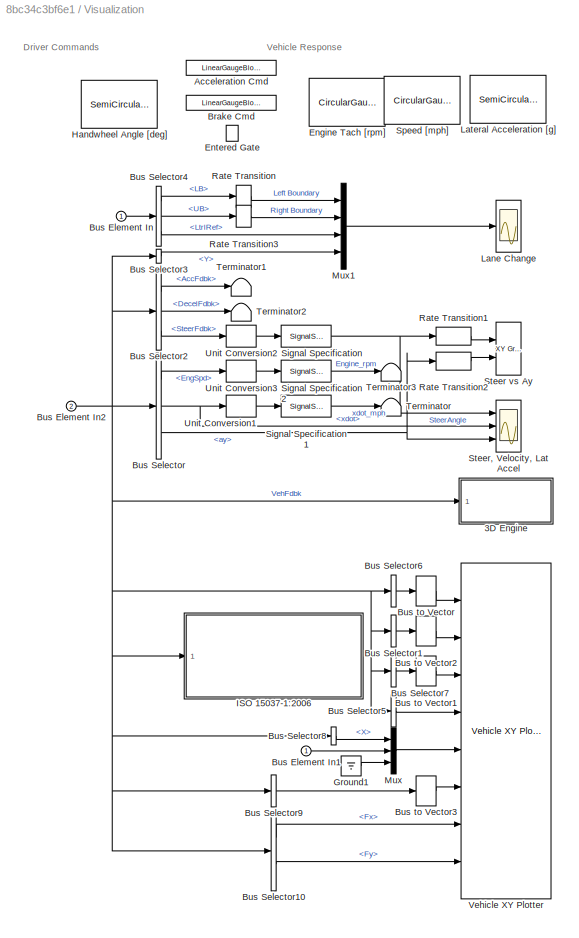
BLOCK [SubSystem] Visualization
  Ports = [2]
  RequestExecContextInheritance = off
BLOCK [SubSystem] Visualization/3D Engine
  AttributesFormatString = %<SceneDesc>\n%<engine3D>
  LabelModeActiveChoice = 1
  Ports = [1]
  RequestExecContextInheritance = off
  Variant = on
  VariantControlMode = label
BLOCK [SubSystem] Visualization/3D Engine/3D Engine
  Ports = [1]
  RequestExecContextInheritance = off
  VariantControl = 1
BLOCK [SubSystem] Visualization/3D Engine/3D Engine Disabled
  Ports = [1]
  RequestExecContextInheritance = off
  VariantControl = 0
BLOCK [Terminator] Visualization/3D Engine/3D Engine Disabled/Terminator
BLOCK [Inport] Visualization/3D Engine/3D Engine Disabled/VehFdbk
BLOCK [BusSelector] Visualization/3D Engine/3D Engine/Bus Selector
  OutputSignals = Body.InertFrm.Geom.Disp.X,Body.InertFrm.Geom.Disp.Y,Body.InertFrm.Geom.Disp.Z,Body.InertFrm.Cg.Ang.phi,Body.InertFrm.Cg.Ang.theta,Body.InertFrm.Cg.Ang.psi
  Ports = [1, 6]
BLOCK [BusSelector] Visualization/3D Engine/3D Engine/Bus Selector2
  OutputSignals = Wheels.TireFrame.dz,Wheels.TireFrame.Omega,Driveline.WhlAng
  Ports = [1, 3]
BLOCK [Constant] Visualization/3D Engine/3D Engine/Constant1
  OutDataTypeStr = single
  Value = zeros(4,1)
BLOCK [Constant] Visualization/3D Engine/3D Engine/Constant2
  OutDataTypeStr = single
  Value = 0
BLOCK [DataTypeConversion] Visualization/3D Engine/3D Engine/Data Type Conversion1
  OutDataTypeStr = single
  RndMeth = Floor
  SaturateOnIntegerOverflow = off
BLOCK [DataTypeConversion] Visualization/3D Engine/3D Engine/Data Type Conversion10
  OutDataTypeStr = single
  RndMeth = Floor
  SaturateOnIntegerOverflow = off
BLOCK [DataTypeConversion] Visualization/3D Engine/3D Engine/Data Type Conversion12
  OutDataTypeStr = single
  RndMeth = Floor
  SaturateOnIntegerOverflow = off
BLOCK [DataTypeConversion] Visualization/3D Engine/3D Engine/Data Type Conversion4
  OutDataTypeStr = single
  RndMeth = Floor
  SaturateOnIntegerOverflow = off
BLOCK [DataTypeConversion] Visualization/3D Engine/3D Engine/Data Type Conversion5
  OutDataTypeStr = single
  RndMeth = Floor
  SaturateOnIntegerOverflow = off
BLOCK [DataTypeConversion] Visualization/3D Engine/3D Engine/Data Type Conversion6
  OutDataTypeStr = single
  RndMeth = Floor
  SaturateOnIntegerOverflow = off
BLOCK [DataTypeConversion] Visualization/3D Engine/3D Engine/Data Type Conversion7
  OutDataTypeStr = single
  RndMeth = Floor
  SaturateOnIntegerOverflow = off
BLOCK [DataTypeConversion] Visualization/3D Engine/3D Engine/Data Type Conversion8
  OutDataTypeStr = single
  RndMeth = Floor
  SaturateOnIntegerOverflow = off
BLOCK [DataTypeConversion] Visualization/3D Engine/3D Engine/Data Type Conversion9
  OutDataTypeStr = single
  RndMeth = Floor
  SaturateOnIntegerOverflow = off
BLOCK [Demux] Visualization/3D Engine/3D Engine/Demux
  Ports = [1, 4]
BLOCK [Demux] Visualization/3D Engine/3D Engine/Demux1
  Ports = [1, 4]
BLOCK [Demux] Visualization/3D Engine/3D Engine/Demux2
  Ports = [1, 4]
BLOCK [Demux] Visualization/3D Engine/3D Engine/Demux3
  Ports = [1, 4]
BLOCK [Integrator] Visualization/3D Engine/3D Engine/Integrator
  Ports = [1, 1]
  WrapState = on
  WrappedStateLowerValue = 0
  WrappedStateUpperValue = 2*pi
  ZeroCross = off
BLOCK [SubSystem] Visualization/3D Engine/3D Engine/Part Rotation Concatenation
  Ports = [15, 1]
  RequestExecContextInheritance = off
BLOCK [Concatenate] Visualization/3D Engine/3D Engine/Part Rotation Concatenation/AllParts
  Mode = Multidimensional array
  NumInputs = 5
  Ports = [5, 1]
BLOCK [Concatenate] Visualization/3D Engine/3D Engine/Part Rotation Concatenation/Body
  ConcatenateDimension = 2
  Mode = Multidimensional array
  NumInputs = 3
  Ports = [3, 1]
BLOCK [Inport] Visualization/3D Engine/3D Engine/Part Rotation Concatenation/Body Ptich
  Port = 2
BLOCK [Inport] Visualization/3D Engine/3D Engine/Part Rotation Concatenation/Body Roll
BLOCK [Inport] Visualization/3D Engine/3D Engine/Part Rotation Concatenation/Body Yaw
  Port = 3
BLOCK [Outport] Visualization/3D Engine/3D Engine/Part Rotation Concatenation/ConcatOut
  VectorParamsAs1DForOutWhenUnconnected = off
BLOCK [Concatenate] Visualization/3D Engine/3D Engine/Part Rotation Concatenation/WheelFrontLeft
  ConcatenateDimension = 2
  Mode = Multidimensional array
  NumInputs = 3
  Ports = [3, 1]
BLOCK [Inport] Visualization/3D Engine/3D Engine/Part Rotation Concatenation/WheelFrontLeft Pitch
  Port = 4
BLOCK [Inport] Visualization/3D Engine/3D Engine/Part Rotation Concatenation/WheelFrontLeft Roll
  Port = 8
BLOCK [Inport] Visualization/3D Engine/3D Engine/Part Rotation Concatenation/WheelFrontLeft Yaw
  Port = 12
BLOCK [Concatenate] Visualization/3D Engine/3D Engine/Part Rotation Concatenation/WheelFrontRight
  ConcatenateDimension = 2
  Mode = Multidimensional array
  NumInputs = 3
  Ports = [3, 1]
BLOCK [Inport] Visualization/3D Engine/3D Engine/Part Rotation Concatenation/WheelFrontRight Pitch
  Port = 5
BLOCK [Inport] Visualization/3D Engine/3D Engine/Part Rotation Concatenation/WheelFrontRight Roll
  Port = 9
BLOCK [Inport] Visualization/3D Engine/3D Engine/Part Rotation Concatenation/WheelFrontRight Yaw
  Port = 13
BLOCK [Concatenate] Visualization/3D Engine/3D Engine/Part Rotation Concatenation/WheelRearLeft
  ConcatenateDimension = 2
  Mode = Multidimensional array
  NumInputs = 3
  Ports = [3, 1]
BLOCK [Inport] Visualization/3D Engine/3D Engine/Part Rotation Concatenation/WheelRearLeft Pitch
  Port = 6
BLOCK [Inport] Visualization/3D Engine/3D Engine/Part Rotation Concatenation/WheelRearLeft Roll
  Port = 10
BLOCK [Inport] Visualization/3D Engine/3D Engine/Part Rotation Concatenation/WheelRearLeft Yaw
  Port = 14
BLOCK [Concatenate] Visualization/3D Engine/3D Engine/Part Rotation Concatenation/WheelRearRight
  ConcatenateDimension = 2
  Mode = Multidimensional array
  NumInputs = 3
  Ports = [3, 1]
BLOCK [Inport] Visualization/3D Engine/3D Engine/Part Rotation Concatenation/WheelRearRight Ptich
  Port = 7
BLOCK [Inport] Visualization/3D Engine/3D Engine/Part Rotation Concatenation/WheelRearRight Roll
  Port = 11
BLOCK [Inport] Visualization/3D Engine/3D Engine/Part Rotation Concatenation/WheelRearRight Yaw
  Port = 15
BLOCK [SubSystem] Visualization/3D Engine/3D Engine/Part Translation Concatenation
  Ports = [15, 1]
  RequestExecContextInheritance = off
BLOCK [Concatenate] Visualization/3D Engine/3D Engine/Part Translation Concatenation/AllParts
  Mode = Multidimensional array
  NumInputs = 5
  Ports = [5, 1]
BLOCK [Concatenate] Visualization/3D Engine/3D Engine/Part Translation Concatenation/Body
  ConcatenateDimension = 2
  Mode = Multidimensional array
  NumInputs = 3
  Ports = [3, 1]
BLOCK [Inport] Visualization/3D Engine/3D Engine/Part Translation Concatenation/BodyX
BLOCK [Inport] Visualization/3D Engine/3D Engine/Part Translation Concatenation/BodyY
  Port = 2
BLOCK [Inport] Visualization/3D Engine/3D Engine/Part Translation Concatenation/BodyZ
  Port = 3
BLOCK [Outport] Visualization/3D Engine/3D Engine/Part Translation Concatenation/ConcatOut
  VectorParamsAs1DForOutWhenUnconnected = off
BLOCK [Concatenate] Visualization/3D Engine/3D Engine/Part Translation Concatenation/WheelFrontLeft
  ConcatenateDimension = 2
  Mode = Multidimensional array
  NumInputs = 3
  Ports = [3, 1]
BLOCK [Inport] Visualization/3D Engine/3D Engine/Part Translation Concatenation/WheelFrontLeftX
  Port = 4
BLOCK [Inport] Visualization/3D Engine/3D Engine/Part Translation Concatenation/WheelFrontLeftY
  Port = 8
BLOCK [Inport] Visualization/3D Engine/3D Engine/Part Translation Concatenation/WheelFrontLeftZ
  Port = 12
BLOCK [Concatenate] Visualization/3D Engine/3D Engine/Part Translation Concatenation/WheelFrontRight
  ConcatenateDimension = 2
  Mode = Multidimensional array
  NumInputs = 3
  Ports = [3, 1]
BLOCK [Inport] Visualization/3D Engine/3D Engine/Part Translation Concatenation/WheelFrontRightX
  Port = 5
BLOCK [Inport] Visualization/3D Engine/3D Engine/Part Translation Concatenation/WheelFrontRightY
  Port = 9
BLOCK [Inport] Visualization/3D Engine/3D Engine/Part Translation Concatenation/WheelFrontRightZ
  Port = 13
BLOCK [Concatenate] Visualization/3D Engine/3D Engine/Part Translation Concatenation/WheelRearLeft
  ConcatenateDimension = 2
  Mode = Multidimensional array
  NumInputs = 3
  Ports = [3, 1]
BLOCK [Inport] Visualization/3D Engine/3D Engine/Part Translation Concatenation/WheelRearLeftX
  Port = 6
BLOCK [Inport] Visualization/3D Engine/3D Engine/Part Translation Concatenation/WheelRearLeftY
  Port = 10
BLOCK [Inport] Visualization/3D Engine/3D Engine/Part Translation Concatenation/WheelRearLeftZ
  Port = 14
BLOCK [Concatenate] Visualization/3D Engine/3D Engine/Part Translation Concatenation/WheelRearRight
  ConcatenateDimension = 2
  Mode = Multidimensional array
  NumInputs = 3
  Ports = [3, 1]
BLOCK [Inport] Visualization/3D Engine/3D Engine/Part Translation Concatenation/WheelRearRightX
  Port = 7
BLOCK [Inport] Visualization/3D Engine/3D Engine/Part Translation Concatenation/WheelRearRightY
  Port = 11
BLOCK [Inport] Visualization/3D Engine/3D Engine/Part Translation Concatenation/WheelRearRightZ
  Port = 15
BLOCK [RateTransition] Visualization/3D Engine/3D Engine/Rate Transition
  OutPortSampleTime = dt3D
BLOCK [SubSystem] Visualization/3D Engine/3D Engine/Scale
  Ports = [0, 1]
  RequestExecContextInheritance = off
BLOCK [Constant] Visualization/3D Engine/3D Engine/Scale/Constant1
  OutDataTypeStr = single
BLOCK [Constant] Visualization/3D Engine/3D Engine/Scale/Constant10
  OutDataTypeStr = single
BLOCK [Constant] Visualization/3D Engine/3D Engine/Scale/Constant11
  OutDataTypeStr = single
BLOCK [Constant] Visualization/3D Engine/3D Engine/Scale/Constant12
  OutDataTypeStr = single
BLOCK [Constant] Visualization/3D Engine/3D Engine/Scale/Constant17
  OutDataTypeStr = single
BLOCK [Constant] Visualization/3D Engine/3D Engine/Scale/Constant2
  OutDataTypeStr = single
BLOCK [Constant] Visualization/3D Engine/3D Engine/Scale/Constant3
  OutDataTypeStr = single
BLOCK [Constant] Visualization/3D Engine/3D Engine/Scale/Constant32
  OutDataTypeStr = single
BLOCK [Constant] Visualization/3D Engine/3D Engine/Scale/Constant33
  OutDataTypeStr = single
BLOCK [Constant] Visualization/3D Engine/3D Engine/Scale/Constant4
  OutDataTypeStr = single
BLOCK [Constant] Visualization/3D Engine/3D Engine/Scale/Constant5
  OutDataTypeStr = single
BLOCK [Constant] Visualization/3D Engine/3D Engine/Scale/Constant6
  OutDataTypeStr = single
BLOCK [Constant] Visualization/3D Engine/3D Engine/Scale/Constant7
  OutDataTypeStr = single
BLOCK [Constant] Visualization/3D Engine/3D Engine/Scale/Constant8
  OutDataTypeStr = single
BLOCK [Constant] Visualization/3D Engine/3D Engine/Scale/Constant9
  OutDataTypeStr = single
BLOCK [SubSystem] Visualization/3D Engine/3D Engine/Scale/PartConcatenation
  Ports = [15, 1]
  RequestExecContextInheritance = off
BLOCK [Concatenate] Visualization/3D Engine/3D Engine/Scale/PartConcatenation/AllParts
  Mode = Multidimensional array
  NumInputs = 5
  Ports = [5, 1]
BLOCK [Concatenate] Visualization/3D Engine/3D Engine/Scale/PartConcatenation/Body
  ConcatenateDimension = 2
  Mode = Multidimensional array
  NumInputs = 3
  Ports = [3, 1]
BLOCK [Inport] Visualization/3D Engine/3D Engine/Scale/PartConcatenation/BodyX
BLOCK [Inport] Visualization/3D Engine/3D Engine/Scale/PartConcatenation/BodyY
  Port = 2
BLOCK [Inport] Visualization/3D Engine/3D Engine/Scale/PartConcatenation/BodyZ
  Port = 3
BLOCK [Outport] Visualization/3D Engine/3D Engine/Scale/PartConcatenation/ConcatOut
  VectorParamsAs1DForOutWhenUnconnected = off
BLOCK [Concatenate] Visualization/3D Engine/3D Engine/Scale/PartConcatenation/WheelFrontLeft
  ConcatenateDimension = 2
  Mode = Multidimensional array
  NumInputs = 3
  Ports = [3, 1]
BLOCK [Inport] Visualization/3D Engine/3D Engine/Scale/PartConcatenation/WheelFrontLeftX
  Port = 4
BLOCK [Inport] Visualization/3D Engine/3D Engine/Scale/PartConcatenation/WheelFrontLeftY
  Port = 5
BLOCK [Inport] Visualization/3D Engine/3D Engine/Scale/PartConcatenation/WheelFrontLeftZ
  Port = 6
BLOCK [Concatenate] Visualization/3D Engine/3D Engine/Scale/PartConcatenation/WheelFrontRight
  ConcatenateDimension = 2
  Mode = Multidimensional array
  NumInputs = 3
  Ports = [3, 1]
BLOCK [Inport] Visualization/3D Engine/3D Engine/Scale/PartConcatenation/WheelFrontRightX
  Port = 7
BLOCK [Inport] Visualization/3D Engine/3D Engine/Scale/PartConcatenation/WheelFrontRightY
  Port = 8
BLOCK [Inport] Visualization/3D Engine/3D Engine/Scale/PartConcatenation/WheelFrontRightZ
  Port = 9
BLOCK [Concatenate] Visualization/3D Engine/3D Engine/Scale/PartConcatenation/WheelRearLeft
  ConcatenateDimension = 2
  Mode = Multidimensional array
  NumInputs = 3
  Ports = [3, 1]
BLOCK [Inport] Visualization/3D Engine/3D Engine/Scale/PartConcatenation/WheelRearLeftX
  Port = 10
BLOCK [Inport] Visualization/3D Engine/3D Engine/Scale/PartConcatenation/WheelRearLeftY
  Port = 11
BLOCK [Inport] Visualization/3D Engine/3D Engine/Scale/PartConcatenation/WheelRearLeftZ
  Port = 12
BLOCK [Concatenate] Visualization/3D Engine/3D Engine/Scale/PartConcatenation/WheelRearRight
  ConcatenateDimension = 2
  Mode = Multidimensional array
  NumInputs = 3
  Ports = [3, 1]
BLOCK [Inport] Visualization/3D Engine/3D Engine/Scale/PartConcatenation/WheelRearRightX
  Port = 13
BLOCK [Inport] Visualization/3D Engine/3D Engine/Scale/PartConcatenation/WheelRearRightY
  Port = 14
BLOCK [Inport] Visualization/3D Engine/3D Engine/Scale/PartConcatenation/WheelRearRightZ
  Port = 15
BLOCK [Outport] Visualization/3D Engine/3D Engine/Scale/ScaleOut
  VectorParamsAs1DForOutWhenUnconnected = off
BLOCK [Reference] Visualization/3D Engine/3D Engine/Simulation 3D Scene Configuration  REF=sim3dlib/Simulation 3D Scene Configuration
  Ports = []
  Priority = 0
  SourceBlock = sim3dlib/Simulation 3D Scene Configuration
  SourceProductBaseCode = DR,UV,VE
  SourceType = Simulation 3D Scene Configuration
BLOCK [Reference] Visualization/3D Engine/3D Engine/Simulation 3D Vehicle  REF=sim3dautolib/Simulation 3D Vehicle
  Ports = [3]
  Priority = -1
  SourceBlock = sim3dautolib/Simulation 3D Vehicle
  SourceProductBaseCode = DR,UV,VE
  SourceType = Simulation 3D Vehicle
BLOCK [UnaryMinus] Visualization/3D Engine/3D Engine/Unary Minus
BLOCK [Inport] Visualization/3D Engine/3D Engine/VehFdbk
BLOCK [Inport] Visualization/3D Engine/VehFdbk
BLOCK [LinearGaugeBlock] Visualization/Acceleration Cmd
  LabelPosition = Hide
  ScaleMax = 1
  TickInterval = 0.20000000000000001
BLOCK [LinearGaugeBlock] Visualization/Brake Cmd
  LabelPosition = Hide
  ScaleMax = 1
  TickInterval = 0.20000000000000001
BLOCK [Inport] Visualization/Bus Element In
BLOCK [Inport] Visualization/Bus Element In1
BLOCK [Inport] Visualization/Bus Element In2
  Port = 2
BLOCK [BusSelector] Visualization/Bus Selector
  OutputSignals = Driveline.EngSpd,Body.BdyFrm.Cg.Vel.xdot,Body.BdyFrm.Cg.Acc.ay
  Ports = [1, 3]
BLOCK [BusSelector] Visualization/Bus Selector1
  OutputAsBus = on
  OutputSignals = Body.InertFrm.Cg.Ang.phi,Body.InertFrm.Cg.Ang.theta,Body.InertFrm.Cg.Ang.psi
  Ports = [1, 1]
BLOCK [BusSelector] Visualization/Bus Selector10
  OutputSignals = Wheels.TireFrame.Fx,Wheels.TireFrame.Fy
  Ports = [1, 2]
BLOCK [BusSelector] Visualization/Bus Selector2
  OutputSignals = Driver.AccFdbk,Driver.DecelFdbk,Driver.SteerFdbk
  Ports = [1, 3]
BLOCK [BusSelector] Visualization/Bus Selector3
  OutputSignals = Body.InertFrm.Cg.Disp.Y
  Ports = [1, 1]
BLOCK [BusSelector] Visualization/Bus Selector4
  OutputSignals = LB,UB,LtrlRef
  Ports = [1, 3]
BLOCK [BusSelector] Visualization/Bus Selector5
  OutputAsBus = on
  OutputSignals = Driveline.WhlAng
  Ports = [1, 1]
BLOCK [BusSelector] Visualization/Bus Selector6
  OutputAsBus = on
  OutputSignals = Body.InertFrm.Geom.Disp.X,Body.InertFrm.Geom.Disp.Y,Body.InertFrm.Geom.Disp.Z
  Ports = [1, 1]
BLOCK [BusSelector] Visualization/Bus Selector7
  OutputAsBus = on
  OutputSignals = Body.InertFrm.Geom.Vel.Xdot,Body.InertFrm.Geom.Vel.Ydot,Body.InertFrm.Geom.Vel.Zdot
  Ports = [1, 1]
BLOCK [BusSelector] Visualization/Bus Selector8
  OutputSignals = Body.InertFrm.Cg.Disp.X
  Ports = [1, 1]
BLOCK [BusSelector] Visualization/Bus Selector9
  OutputAsBus = on
  OutputSignals = Driveline.EngSpd,Driveline.Gear
  Ports = [1, 1]
BLOCK [BusToVector] Visualization/Bus to Vector
BLOCK [BusToVector] Visualization/Bus to Vector1
BLOCK [BusToVector] Visualization/Bus to Vector2
BLOCK [BusToVector] Visualization/Bus to Vector3
BLOCK [CircularGaugeBlock] Visualization/Engine Tach [rpm]
  LabelPosition = Hide
  ScaleMax = 8000
  TickInterval = 1000
BLOCK [LampBlock] Visualization/Entered Gate
  LabelPosition = Hide
BLOCK [Ground] Visualization/Ground1
BLOCK [SemiCircularGaugeBlock] Visualization/Handwheel Angle [deg]
  LabelPosition = Hide
  ScaleMax = 300
  ScaleMin = -300
  TickInterval = 60
BLOCK [SubSystem] Visualization/ISO 15037-1:2006
  AttributesFormatString = %<Measurement>
  LabelModeActiveChoice = 0
  Ports = [1]
  RequestExecContextInheritance = off
  StopFcn = switch get_param(gcb,'Measurement')\n    case 'Enabled'\n       p=slproject.getCurrentProject;\n       projectRoot=p.RootFolder;\n       SySFolder=fullfile(projectRoot, 'System');\n       Simulink.sdi.loadView([SySFolder filesep 'ISO15037_1_2006E.mldatx']);\n       Simulink.sdi.view;\nend
  Variant = on
  VariantControlMode = label
BLOCK [SubSystem] Visualization/ISO 15037-1:2006/Disabled
  Ports = [1]
  RequestExecContextInheritance = off
  VariantControl = 0
BLOCK [Terminator] Visualization/ISO 15037-1:2006/Disabled/Terminator1
BLOCK [Inport] Visualization/ISO 15037-1:2006/Disabled/VehFdbk
BLOCK [SubSystem] Visualization/ISO 15037-1:2006/Enabled
  Ports = [1]
  RequestExecContextInheritance = off
  VariantControl = 1
BLOCK [BusSelector] Visualization/ISO 15037-1:2006/Enabled/Bus Selector
  OutputSignals = Driver.SteerFdbk,Steering.StrWhlTrq,Body.BdyFrm.Cg.Vel.xdot,Body.BdyFrm.Cg.Vel.ydot,Body.BdyFrm.Cg.Ang.Beta,Body.BdyFrm.Cg.Acc.ax,Body.BdyFrm.Cg.Acc.ay,Body.BdyFrm.Cg.AngVel.r,Body.BdyFrm.Cg.AngVel.q,Body.BdyFrm.Cg.AngVel.p,Body.InertFrm.Cg.Ang.phi,Body.InertFrm.Cg.Ang.theta
  Ports = [1, 12]
BLOCK [SignalSpecification] Visualization/ISO 15037-1:2006/Enabled/Signal Specification
  Unit = deg
BLOCK [SignalSpecification] Visualization/ISO 15037-1:2006/Enabled/Signal Specification1
  Unit = N*m
BLOCK [SignalSpecification] Visualization/ISO 15037-1:2006/Enabled/Signal Specification10
  Unit = deg
BLOCK [SignalSpecification] Visualization/ISO 15037-1:2006/Enabled/Signal Specification11
  Unit = deg
BLOCK [SignalSpecification] Visualization/ISO 15037-1:2006/Enabled/Signal Specification2
  Unit = km/h
BLOCK [SignalSpecification] Visualization/ISO 15037-1:2006/Enabled/Signal Specification3
  Unit = m/s
BLOCK [SignalSpecification] Visualization/ISO 15037-1:2006/Enabled/Signal Specification4
  Unit = deg
BLOCK [SignalSpecification] Visualization/ISO 15037-1:2006/Enabled/Signal Specification5
  Unit = m/s^2
BLOCK [SignalSpecification] Visualization/ISO 15037-1:2006/Enabled/Signal Specification6
  Unit = m/s^2
BLOCK [SignalSpecification] Visualization/ISO 15037-1:2006/Enabled/Signal Specification7
  Unit = deg/s
BLOCK [SignalSpecification] Visualization/ISO 15037-1:2006/Enabled/Signal Specification8
  Unit = deg/s
BLOCK [SignalSpecification] Visualization/ISO 15037-1:2006/Enabled/Signal Specification9
  Unit = deg/s
BLOCK [Terminator] Visualization/ISO 15037-1:2006/Enabled/Terminator
BLOCK [Terminator] Visualization/ISO 15037-1:2006/Enabled/Terminator1
BLOCK [Terminator] Visualization/ISO 15037-1:2006/Enabled/Terminator10
BLOCK [Terminator] Visualization/ISO 15037-1:2006/Enabled/Terminator11
BLOCK [Terminator] Visualization/ISO 15037-1:2006/Enabled/Terminator2
BLOCK [Terminator] Visualization/ISO 15037-1:2006/Enabled/Terminator3
BLOCK [Terminator] Visualization/ISO 15037-1:2006/Enabled/Terminator4
BLOCK [Terminator] Visualization/ISO 15037-1:2006/Enabled/Terminator5
BLOCK [Terminator] Visualization/ISO 15037-1:2006/Enabled/Terminator6
BLOCK [Terminator] Visualization/ISO 15037-1:2006/Enabled/Terminator7
BLOCK [Terminator] Visualization/ISO 15037-1:2006/Enabled/Terminator8
BLOCK [Terminator] Visualization/ISO 15037-1:2006/Enabled/Terminator9
BLOCK [UnitConversion] Visualization/ISO 15037-1:2006/Enabled/Unit Conversion1
BLOCK [UnitConversion] Visualization/ISO 15037-1:2006/Enabled/Unit Conversion10
BLOCK [UnitConversion] Visualization/ISO 15037-1:2006/Enabled/Unit Conversion11
BLOCK [UnitConversion] Visualization/ISO 15037-1:2006/Enabled/Unit Conversion12
BLOCK [UnitConversion] Visualization/ISO 15037-1:2006/Enabled/Unit Conversion2
BLOCK [UnitConversion] Visualization/ISO 15037-1:2006/Enabled/Unit Conversion3
BLOCK [UnitConversion] Visualization/ISO 15037-1:2006/Enabled/Unit Conversion4
BLOCK [UnitConversion] Visualization/ISO 15037-1:2006/Enabled/Unit Conversion5
BLOCK [UnitConversion] Visualization/ISO 15037-1:2006/Enabled/Unit Conversion6
BLOCK [UnitConversion] Visualization/ISO 15037-1:2006/Enabled/Unit Conversion7
BLOCK [UnitConversion] Visualization/ISO 15037-1:2006/Enabled/Unit Conversion8
BLOCK [UnitConversion] Visualization/ISO 15037-1:2006/Enabled/Unit Conversion9
BLOCK [Inport] Visualization/ISO 15037-1:2006/Enabled/VehFdbk
BLOCK [Inport] Visualization/ISO 15037-1:2006/VehFdbk
BLOCK [Scope] Visualization/Lane Change
  Floating = off
  NumInputPorts = 1
  Ports = [1]
  ScopeSpecificationString = Simulink.scopes.TimeScopeBlockCfg('CurrentConfiguration', extmgr.ConfigurationSet(extmgr.Configuration('Core','General UI',true,'FigureColor',[0.501960784313725 0.501960784313725 0.501960784313725]),extmgr.Configuration('Core','Source UI',true),extmgr.Configuration('Sources','WiredSimulink',true,'DataLoggingVariableName','ScopeData1','DataLoggingSaveFormat','Array','DataLoggingDecimation','1','Dat...<+3030ch>
BLOCK [SemiCircularGaugeBlock] Visualization/Lateral Acceleration [g]
  LabelPosition = Hide
  ScaleMax = 1
  ScaleMin = -1
  TickInterval = 0.5
BLOCK [Mux] Visualization/Mux
  DisplayOption = bar
  Inputs = 3
  Ports = [3, 1]
BLOCK [Mux] Visualization/Mux1
  DisplayOption = bar
  Ports = [4, 1]
BLOCK [RateTransition] Visualization/Rate Transition
  OutPortSampleTime = .1
BLOCK [RateTransition] Visualization/Rate Transition1
  Commented = on
  Deterministic = off
  OutPortSampleTime = .1
BLOCK [RateTransition] Visualization/Rate Transition2
  Commented = on
  Deterministic = off
  OutPortSampleTime = .1
BLOCK [RateTransition] Visualization/Rate Transition3
  OutPortSampleTime = .1
BLOCK [SignalSpecification] Visualization/Signal Specification
  Unit = deg
BLOCK [SignalSpecification] Visualization/Signal Specification1
  Unit = mph
BLOCK [SignalSpecification] Visualization/Signal Specification2
  Unit = rpm
BLOCK [CircularGaugeBlock] Visualization/Speed [mph]
  LabelPosition = Hide
  TickInterval = 10
BLOCK [Reference] Visualization/Steer vs Ay  REF=simulink/Sinks/XY Graph
  Commented = on
  Ports = [2]
  SourceBlock = simulink/Sinks/XY Graph
  SourceProductBaseCode = SL
  SourceType = XY scope.
BLOCK [Scope] Visualization/Steer, Velocity, Lat Accel
  Floating = off
  NumInputPorts = 3
  Ports = [3]
  ScopeSpecificationString = Simulink.scopes.TimeScopeBlockCfg('CurrentConfiguration', extmgr.ConfigurationSet(extmgr.Configuration('Core','General UI',true),extmgr.Configuration('Core','Source UI',true),extmgr.Configuration('Sources','WiredSimulink',true),extmgr.Configuration('Visuals','Time Domain',true,'SerializedDisplays',{struct('MinYLimReal','-41897.53877','MaxYLimReal','41897.53877','YLabelReal','','MinYLimMag','   0.0...<+2726ch>
BLOCK [Terminator] Visualization/Terminator
BLOCK [Terminator] Visualization/Terminator1
BLOCK [Terminator] Visualization/Terminator2
BLOCK [Terminator] Visualization/Terminator3
BLOCK [UnitConversion] Visualization/Unit Conversion1
BLOCK [UnitConversion] Visualization/Unit Conversion2
BLOCK [UnitConversion] Visualization/Unit Conversion3
BLOCK [Reference] Visualization/Vehicle XY Plotter  REF=vehdynlibviscommon/Vehicle XY Plot Configuration
  Ports = [8]
  SourceBlock = vehdynlibviscommon/Vehicle XY Plot Configuration
  SourceProductBaseCode = VE
  SourceType = Vehicle XY Plotter
ANNOTATION (root): <copyright redacted>
ANNOTATION Controllers/Active Differential Control: 1) Add Subsystem or Model blocks as valid variant choices. 2) You cannot connect blocks at this level. At simulation, connectivity is automatically determined, based on the active variant and port name matching.
ANNOTATION Controllers/Brake Controller/Brake Pressure Control: 1) Add Subsystem or Model blocks as valid variant choices. 2) You cannot connect blocks at this level. At simulation, connectivity is automatically determined, based on the active variant and port name matching.
ANNOTATION Controllers/Transmission Controller/PRNDL Controller/Shift Controller/calc: Determine if next gear will be higher or lower than current gear
ANNOTATION Controllers/Transmission Controller/Transmission Controller/TCM/TCM Shift Controller/calc: Determine if next gear will be higher or lower than current gear
ANNOTATION Environment: The Ground Feedback variant subsystem is automatically enabled/disabled according to the 3D Engine settings found in the Reference Generator. Manually overriding this variant may result in initialization errors.
ANNOTATION Passenger Vehicle/Body, Suspension, Wheels: 1) Add Subsystem or Model blocks as valid variant choices. 2) You cannot connect blocks at this level. At simulation, connectivity is automatically determined, based on the active variant and port name matching.
ANNOTATION Passenger Vehicle/Engine: 1) Add Subsystem or Model blocks as valid variant choices. 2) You cannot connect blocks at this level. At simulation, connectivity is automatically determined, based on the active variant and port name matching.
ANNOTATION Passenger Vehicle/Pedal Cluster and Cabin: Placeholder for introducing faults, detailed actuator behavior, interactions of other systems with a human interface such as changes in power steering and braking assistance.
ANNOTATION Passenger Vehicle/Steering, Transmission, Driveline and Brakes: 1) Add Subsystem or Model blocks as valid variant choices. 2) You cannot connect blocks at this level. At simulation, connectivity is automatically determined, based on the active variant and port name matching.
ANNOTATION Visualization: Driver Commands
ANNOTATION Visualization: Vehicle Response
ANNOTATION Visualization/3D Engine: 1) Add Subsystem or Model blocks as valid variant choices. 2) You cannot connect blocks at this level. At simulation, connectivity is automatically determined, based on the active variant and port name matching.
LINE Controllers/Active Differential Control/No Control/Constant1:1 -> Controllers/Active Differential Control/No Control/TrqCmd:1
NET Controllers/Active Differential Control/No Control/Constant:1 -> Controllers/Active Differential Control/No Control/Vector Concatenate2:1, Controllers/Active Differential Control/No Control/Vector Concatenate2:2, Controllers/Active Differential Control/No Control/Vector Concatenate2:3, Controllers/Active Differential Control/No Control/Vector Concatenate2:4
LINE Controllers/Active Differential Control/No Control/Steer:1 -> Controllers/Active Differential Control/No Control/Terminator1:1
LINE Controllers/Active Differential Control/No Control/Vector Concatenate2:1 -> Controllers/Active Differential Control/No Control/DiffPrsCmd:1
LINE Controllers/Active Differential Control/No Control/axayaz:1 -> Controllers/Active Differential Control/No Control/Terminator:1
LINE Controllers/Active Differential Control/Rear Diff Controller/Abs2:1 -> Controllers/Active Differential Control/Rear Diff Controller/Compare To Constant2:1
LINE Controllers/Active Differential Control/Rear Diff Controller/Abs3:1 -> Controllers/Active Differential Control/Rear Diff Controller/Dead Zone:1
LINE Controllers/Active Differential Control/Rear Diff Controller/Accel:1 -> Controllers/Active Differential Control/Rear Diff Controller/Compare To Constant4:1
LINE Controllers/Active Differential Control/Rear Diff Controller/Add1:1 -> Controllers/Active Differential Control/Rear Diff Controller/Switch1:1
LINE Controllers/Active Differential Control/Rear Diff Controller/BrkCmd:1 -> Controllers/Active Differential Control/Rear Diff Controller/Compare To Constant1:1
LINE Controllers/Active Differential Control/Rear Diff Controller/Compare To Constant1:1 -> Controllers/Active Differential Control/Rear Diff Controller/Logical Operator:5
LINE Controllers/Active Differential Control/Rear Diff Controller/Compare To Constant2:1 -> Controllers/Active Differential Control/Rear Diff Controller/Logical Operator:1
LINE Controllers/Active Differential Control/Rear Diff Controller/Compare To Constant3:1 -> Controllers/Active Differential Control/Rear Diff Controller/Logical Operator:3
LINE Controllers/Active Differential Control/Rear Diff Controller/Compare To Constant4:1 -> Controllers/Active Differential Control/Rear Diff Controller/Logical Operator:4
LINE Controllers/Active Differential Control/Rear Diff Controller/Compare To Constant:1 -> Controllers/Active Differential Control/Rear Diff Controller/Logical Operator:2
LINE Controllers/Active Differential Control/Rear Diff Controller/Constant:1 -> Controllers/Active Differential Control/Rear Diff Controller/TrqCmd:1
LINE Controllers/Active Differential Control/Rear Diff Controller/Dead Zone:1 -> Controllers/Active Differential Control/Rear Diff Controller/Subtract:1
LINE Controllers/Active Differential Control/Rear Diff Controller/Demux:1 -> Controllers/Active Differential Control/Rear Diff Controller/Subtract1:1
LINE Controllers/Active Differential Control/Rear Diff Controller/Demux:2 -> Controllers/Active Differential Control/Rear Diff Controller/Subtract1:2
LINE Controllers/Active Differential Control/Rear Diff Controller/Divide3:1 -> Controllers/Active Differential Control/Rear Diff Controller/Add1:1
LINE Controllers/Active Differential Control/Rear Diff Controller/From3:1 -> Controllers/Active Differential Control/Rear Diff Controller/div0protect - poly:1
LINE Controllers/Active Differential Control/Rear Diff Controller/From4:1 -> Controllers/Active Differential Control/Rear Diff Controller/Compare To Constant:1
LINE Controllers/Active Differential Control/Rear Diff Controller/Gain:1 -> Controllers/Active Differential Control/Rear Diff Controller/Saturation2:1
LINE Controllers/Active Differential Control/Rear Diff Controller/GearFdbk:1 -> Controllers/Active Differential Control/Rear Diff Controller/Compare To Constant3:1
NET Controllers/Active Differential Control/Rear Diff Controller/Ground:1 -> Controllers/Active Differential Control/Rear Diff Controller/Vector Concatenate2:1, Controllers/Active Differential Control/Rear Diff Controller/Vector Concatenate2:2
NET Controllers/Active Differential Control/Rear Diff Controller/Logical Operator:1 -> Controllers/Active Differential Control/Rear Diff Controller/PID Controller:2, Controllers/Active Differential Control/Rear Diff Controller/Switch1:2
NET Controllers/Active Differential Control/Rear Diff Controller/Omega:1 -> Controllers/Active Differential Control/Rear Diff Controller/Selector2:1, Controllers/Active Differential Control/Rear Diff Controller/Sum of Elements:1
LINE Controllers/Active Differential Control/Rear Diff Controller/PID Controller:1 -> Controllers/Active Differential Control/Rear Diff Controller/Subtract:2
LINE Controllers/Active Differential Control/Rear Diff Controller/Saturation1:1 -> Controllers/Active Differential Control/Rear Diff Controller/Unary Minus:1
LINE Controllers/Active Differential Control/Rear Diff Controller/Saturation2:1 -> Controllers/Active Differential Control/Rear Diff Controller/DiffPrsCmd:1
LINE Controllers/Active Differential Control/Rear Diff Controller/Saturation4:1 -> Controllers/Active Differential Control/Rear Diff Controller/Vector Concatenate2:3
LINE Controllers/Active Differential Control/Rear Diff Controller/Selector1:1 -> Controllers/Active Differential Control/Rear Diff Controller/Unit Conversion:1
LINE Controllers/Active Differential Control/Rear Diff Controller/Selector2:1 -> Controllers/Active Differential Control/Rear Diff Controller/Demux:1
LINE Controllers/Active Differential Control/Rear Diff Controller/Selector:1 -> Controllers/Active Differential Control/Rear Diff Controller/Divide3:2
LINE Controllers/Active Differential Control/Rear Diff Controller/Signal Specification1:1 -> Controllers/Active Differential Control/Rear Diff Controller/Goto1:1
LINE Controllers/Active Differential Control/Rear Diff Controller/Signal Specification:1 -> Controllers/Active Differential Control/Rear Diff Controller/Abs3:1
NET Controllers/Active Differential Control/Rear Diff Controller/Steer:1 -> Controllers/Active Differential Control/Rear Diff Controller/Abs2:1, Controllers/Active Differential Control/Rear Diff Controller/steer ratio:1
LINE Controllers/Active Differential Control/Rear Diff Controller/Subtract1:1 -> Controllers/Active Differential Control/Rear Diff Controller/Terminator:1
NET Controllers/Active Differential Control/Rear Diff Controller/Subtract:1 -> Controllers/Active Differential Control/Rear Diff Controller/Saturation1:1, Controllers/Active Differential Control/Rear Diff Controller/Saturation4:1
LINE Controllers/Active Differential Control/Rear Diff Controller/Sum of Elements:1 -> Controllers/Active Differential Control/Rear Diff Controller/wheel radius:1
LINE Controllers/Active Differential Control/Rear Diff Controller/Switch1:1 -> Controllers/Active Differential Control/Rear Diff Controller/PID Controller:1
LINE Controllers/Active Differential Control/Rear Diff Controller/Unary Minus:1 -> Controllers/Active Differential Control/Rear Diff Controller/Vector Concatenate2:4
LINE Controllers/Active Differential Control/Rear Diff Controller/Unit Conversion:1 -> Controllers/Active Differential Control/Rear Diff Controller/Signal Specification:1
LINE Controllers/Active Differential Control/Rear Diff Controller/Vector Concatenate2:1 -> Controllers/Active Differential Control/Rear Diff Controller/Gain:1
LINE Controllers/Active Differential Control/Rear Diff Controller/axayaz:1 -> Controllers/Active Differential Control/Rear Diff Controller/Selector1:1
LINE Controllers/Active Differential Control/Rear Diff Controller/axle distance:1 -> Controllers/Active Differential Control/Rear Diff Controller/Divide3:1
LINE Controllers/Active Differential Control/Rear Diff Controller/div0protect - poly:1 -> Controllers/Active Differential Control/Rear Diff Controller/Divide3:3
LINE Controllers/Active Differential Control/Rear Diff Controller/pqr:1 -> Controllers/Active Differential Control/Rear Diff Controller/Selector:1
LINE Controllers/Active Differential Control/Rear Diff Controller/steer ratio:1 -> Controllers/Active Differential Control/Rear Diff Controller/Add1:2
LINE Controllers/Active Differential Control/Rear Diff Controller/wheel radius:1 -> Controllers/Active Differential Control/Rear Diff Controller/Signal Specification1:1
LINE Controllers/Active Differential Control/Rear Diff Controller/zero:1 -> Controllers/Active Differential Control/Rear Diff Controller/Switch1:3
LINE Controllers/Active Differential Control:1 -> Controllers/Bus Creator4:1
LINE Controllers/Active Differential Control:2 -> Controllers/Goto:1
LINE Controllers/Brake Controller/Abs:1 -> Controllers/Brake Controller/Saturation:1
LINE Controllers/Brake Controller/Brake Pressure Control/Bang Bang ABS/<Kappa>:1 -> Controllers/Brake Controller/Brake Pressure Control/Bang Bang ABS/Rate Transition:1
LINE Controllers/Brake Controller/Brake Pressure Control/Bang Bang ABS/Abs:1 -> Controllers/Brake Controller/Brake Pressure Control/Bang Bang ABS/Compare To Constant2:1
LINE Controllers/Brake Controller/Brake Pressure Control/Bang Bang ABS/Add:1 -> Controllers/Brake Controller/Brake Pressure Control/Bang Bang ABS/Bang-bang controller:1
NET Controllers/Brake Controller/Brake Pressure Control/Bang Bang ABS/Bang-bang controller/Constant:1 -> Controllers/Brake Controller/Brake Pressure Control/Bang Bang ABS/Bang-bang controller/Relational Operator1:2, Controllers/Brake Controller/Brake Pressure Control/Bang Bang ABS/Bang-bang controller/Relational Operator:2
LINE Controllers/Brake Controller/Brake Pressure Control/Bang Bang ABS/Bang-bang controller/Data Type Conversion1:1 -> Controllers/Brake Controller/Brake Pressure Control/Bang Bang ABS/Bang-bang controller/Sum:1
LINE Controllers/Brake Controller/Brake Pressure Control/Bang Bang ABS/Bang-bang controller/Data Type Conversion2:1 -> Controllers/Brake Controller/Brake Pressure Control/Bang Bang ABS/Bang-bang controller/Sum:2
LINE Controllers/Brake Controller/Brake Pressure Control/Bang Bang ABS/Bang-bang controller/Relational Operator1:1 -> Controllers/Brake Controller/Brake Pressure Control/Bang Bang ABS/Bang-bang controller/Data Type Conversion2:1
LINE Controllers/Brake Controller/Brake Pressure Control/Bang Bang ABS/Bang-bang controller/Relational Operator:1 -> Controllers/Brake Controller/Brake Pressure Control/Bang Bang ABS/Bang-bang controller/Data Type Conversion1:1
LINE Controllers/Brake Controller/Brake Pressure Control/Bang Bang ABS/Bang-bang controller/Sum:1 -> Controllers/Brake Controller/Brake Pressure Control/Bang Bang ABS/Bang-bang controller/out_1:1
NET Controllers/Brake Controller/Brake Pressure Control/Bang Bang ABS/Bang-bang controller/in_1:1 -> Controllers/Brake Controller/Brake Pressure Control/Bang Bang ABS/Bang-bang controller/Relational Operator1:1, Controllers/Brake Controller/Brake Pressure Control/Bang Bang ABS/Bang-bang controller/Relational Operator:1
LINE Controllers/Brake Controller/Brake Pressure Control/Bang Bang ABS/Bang-bang controller:1 -> Controllers/Brake Controller/Brake Pressure Control/Bang Bang ABS/Gain:1
LINE Controllers/Brake Controller/Brake Pressure Control/Bang Bang ABS/Compare To Constant1:1 -> Controllers/Brake Controller/Brake Pressure Control/Bang Bang ABS/Logical Operator:3
LINE Controllers/Brake Controller/Brake Pressure Control/Bang Bang ABS/Compare To Constant2:1 -> Controllers/Brake Controller/Brake Pressure Control/Bang Bang ABS/Logical Operator:1
LINE Controllers/Brake Controller/Brake Pressure Control/Bang Bang ABS/Compare To Constant:1 -> Controllers/Brake Controller/Brake Pressure Control/Bang Bang ABS/Logical Operator:2
LINE Controllers/Brake Controller/Brake Pressure Control/Bang Bang ABS/Constant:1 -> Controllers/Brake Controller/Brake Pressure Control/Bang Bang ABS/Add:2
LINE Controllers/Brake Controller/Brake Pressure Control/Bang Bang ABS/Debounce:1 -> Controllers/Brake Controller/Brake Pressure Control/Bang Bang ABS/Switch:2
LINE Controllers/Brake Controller/Brake Pressure Control/Bang Bang ABS/First Order Hold:1 -> Controllers/Brake Controller/Brake Pressure Control/Bang Bang ABS/BrkPrsCmd:1
LINE Controllers/Brake Controller/Brake Pressure Control/Bang Bang ABS/Gain:1 -> Controllers/Brake Controller/Brake Pressure Control/Bang Bang ABS/Switch:1
LINE Controllers/Brake Controller/Brake Pressure Control/Bang Bang ABS/Logical Operator:1 -> Controllers/Brake Controller/Brake Pressure Control/Bang Bang ABS/Debounce:1
LINE Controllers/Brake Controller/Brake Pressure Control/Bang Bang ABS/Omega:1 -> Controllers/Brake Controller/Brake Pressure Control/Bang Bang ABS/Sum of Elements:1
NET Controllers/Brake Controller/Brake Pressure Control/Bang Bang ABS/Pref:1 -> Controllers/Brake Controller/Brake Pressure Control/Bang Bang ABS/Compare To Constant1:1, Controllers/Brake Controller/Brake Pressure Control/Bang Bang ABS/Switch:3
NET Controllers/Brake Controller/Brake Pressure Control/Bang Bang ABS/Rate Transition:1 -> Controllers/Brake Controller/Brake Pressure Control/Bang Bang ABS/Add:1, Controllers/Brake Controller/Brake Pressure Control/Bang Bang ABS/Compare To Constant:1
LINE Controllers/Brake Controller/Brake Pressure Control/Bang Bang ABS/Re//NWheels:1 -> Controllers/Brake Controller/Brake Pressure Control/Bang Bang ABS/Abs:1
LINE Controllers/Brake Controller/Brake Pressure Control/Bang Bang ABS/Sum of Elements:1 -> Controllers/Brake Controller/Brake Pressure Control/Bang Bang ABS/Re//NWheels:1
LINE Controllers/Brake Controller/Brake Pressure Control/Bang Bang ABS/Switch:1 -> Controllers/Brake Controller/Brake Pressure Control/Bang Bang ABS/First Order Hold:1
LINE Controllers/Brake Controller/Brake Pressure Control/Open Loop/Pref:1 -> Controllers/Brake Controller/Brake Pressure Control/Open Loop/Signal Copy:1
LINE Controllers/Brake Controller/Brake Pressure Control/Open Loop/Signal Copy:1 -> Controllers/Brake Controller/Brake Pressure Control/Open Loop/BrkPrsCmd:1
LINE Controllers/Brake Controller/Brake Pressure Control:1 -> Controllers/Brake Controller/BrkPrsCmd:1
NET Controllers/Brake Controller/BrkCmd:1 -> Controllers/Brake Controller/Gain3:1, Controllers/Brake Controller/Switch1:2
LINE Controllers/Brake Controller/Constant1:1 -> Controllers/Brake Controller/Switch1:3
LINE Controllers/Brake Controller/Gain3:1 -> Controllers/Brake Controller/Switch1:1
NET Controllers/Brake Controller/Integrator2:1 -> Controllers/Brake Controller/Vector Concatenate2:1, Controllers/Brake Controller/Vector Concatenate2:2, Controllers/Brake Controller/Vector Concatenate2:3, Controllers/Brake Controller/Vector Concatenate2:4
LINE Controllers/Brake Controller/Omega:1 -> Controllers/Brake Controller/Brake Pressure Control:2
LINE Controllers/Brake Controller/Saturation:1 -> Controllers/Brake Controller/Brake Pressure Control:3
LINE Controllers/Brake Controller/Switch1:1 -> Controllers/Brake Controller/Integrator2:1
LINE Controllers/Brake Controller/Vector Concatenate2:1 -> Controllers/Brake Controller/Brake Pressure Control:1
LINE Controllers/Brake Controller/kappa:1 -> Controllers/Brake Controller/Abs:1
LINE Controllers/Brake Controller:1 -> Controllers/Bus Creator2:1
LINE Controllers/Bus Creator1:1 -> Controllers/Bus Creator3:2
LINE Controllers/Bus Creator2:1 -> Controllers/Bus Creator3:3
LINE Controllers/Bus Creator3:1 -> Controllers/CntrlTx:1
LINE Controllers/Bus Creator4:1 -> Controllers/Bus Creator3:4
LINE Controllers/Bus Creator:1 -> Controllers/Bus Creator3:1
LINE Controllers/Bus Selector1:1 -> Controllers/Transmission Controller:1
LINE Controllers/Bus Selector1:2 -> Controllers/Transmission Controller:2
LINE Controllers/Bus Selector1:3 -> Controllers/Transmission Controller:3
LINE Controllers/Bus Selector1:4 -> Controllers/Transmission Controller:4
LINE Controllers/Bus Selector1:5 -> Controllers/Transmission Controller:5
LINE Controllers/Bus Selector2:1 -> Controllers/ECU:2
LINE Controllers/Bus Selector2:2 -> Controllers/ECU:3
LINE Controllers/Bus Selector3:1 -> Controllers/Active Differential Control:1
LINE Controllers/Bus Selector3:2 -> Controllers/Active Differential Control:2
LINE Controllers/Bus Selector3:3 -> Controllers/Active Differential Control:3
LINE Controllers/Bus Selector3:4 -> Controllers/Active Differential Control:4
LINE Controllers/Bus Selector3:5 -> Controllers/Active Differential Control:5
LINE Controllers/Bus Selector3:6 -> Controllers/Active Differential Control:6
LINE Controllers/Bus Selector3:7 -> Controllers/Active Differential Control:7
LINE Controllers/Bus Selector:1 -> Controllers/Brake Controller:1
LINE Controllers/Bus Selector:2 -> Controllers/Brake Controller:2
LINE Controllers/Bus Selector:3 -> Controllers/Brake Controller:3
NET Controllers/CntrlRx:1 -> Controllers/Bus Selector1:1, Controllers/Bus Selector2:1, Controllers/Bus Selector3:1, Controllers/Bus Selector:1
LINE Controllers/ECU/<Accel>:1 -> Controllers/ECU/Torque Cmd:2
LINE Controllers/ECU/DiffTrqCmd:1 -> Controllers/ECU/Torque Cmd:1
LINE Controllers/ECU/EngSpd:1 -> Controllers/ECU/Torque Cmd:3
LINE Controllers/ECU/First Order Hold:1 -> Controllers/ECU/EngTrqCmd:1
LINE Controllers/ECU/Torque Cmd/<Accel>:1 -> Controllers/ECU/Torque Cmd/Acc to Torque Request:1
LINE Controllers/ECU/Torque Cmd/Acc to Torque Request:1 -> Controllers/ECU/Torque Cmd/Rev Limiter Control:1
LINE Controllers/ECU/Torque Cmd/DiffTrqCmd:1 -> Controllers/ECU/Torque Cmd/Max:1
LINE Controllers/ECU/Torque Cmd/EngSpd:1 -> Controllers/ECU/Torque Cmd/Unit Conversion:1
LINE Controllers/ECU/Torque Cmd/Max:1 -> Controllers/ECU/Torque Cmd/EngTrqCmd:1
LINE Controllers/ECU/Torque Cmd/Rev Limiter Control/1-D Lookup Table:1 -> Controllers/ECU/Torque Cmd/Rev Limiter Control/Product:2
LINE Controllers/ECU/Torque Cmd/Rev Limiter Control/Constant:1 -> Controllers/ECU/Torque Cmd/Rev Limiter Control/Product1:2
LINE Controllers/ECU/Torque Cmd/Rev Limiter Control/EngSpd:1 -> Controllers/ECU/Torque Cmd/Rev Limiter Control/Product1:1
LINE Controllers/ECU/Torque Cmd/Rev Limiter Control/Product1:1 -> Controllers/ECU/Torque Cmd/Rev Limiter Control/1-D Lookup Table:1
LINE Controllers/ECU/Torque Cmd/Rev Limiter Control/Product:1 -> Controllers/ECU/Torque Cmd/Rev Limiter Control/TrqCmdRevLimited:1
LINE Controllers/ECU/Torque Cmd/Rev Limiter Control/TrqCmd:1 -> Controllers/ECU/Torque Cmd/Rev Limiter Control/Product:1
LINE Controllers/ECU/Torque Cmd/Rev Limiter Control:1 -> Controllers/ECU/Torque Cmd/Max:2
LINE Controllers/ECU/Torque Cmd/Signal Specification:1 -> Controllers/ECU/Torque Cmd/Rev Limiter Control:2
LINE Controllers/ECU/Torque Cmd/Unit Conversion:1 -> Controllers/ECU/Torque Cmd/Signal Specification:1
LINE Controllers/ECU/Torque Cmd:1 -> Controllers/ECU/First Order Hold:1
LINE Controllers/ECU:1 -> Controllers/Bus Creator:1
LINE Controllers/From:1 -> Controllers/ECU:1
NET Controllers/Ground:1 -> Controllers/Transmission Controller:6, Controllers/Transmission Controller:7
LINE Controllers/Transmission Controller/Driver - No Clutch/GearReq:1 -> Controllers/Transmission Controller/Driver - No Clutch/Gear:1
LINE Controllers/Transmission Controller/PRNDL Controller/Accel:1 -> Controllers/Transmission Controller/PRNDL Controller/Shift Controller:2
LINE Controllers/Transmission Controller/PRNDL Controller/BrkCmd:1 -> Controllers/Transmission Controller/PRNDL Controller/Shift Controller:3
LINE Controllers/Transmission Controller/PRNDL Controller/EngSpd:1 -> Controllers/Transmission Controller/PRNDL Controller/Unit Conversion:1
LINE Controllers/Transmission Controller/PRNDL Controller/Gain:1 -> Controllers/Transmission Controller/PRNDL Controller/Signal Specification1:1
LINE Controllers/Transmission Controller/PRNDL Controller/GearReq:1 -> Controllers/Transmission Controller/PRNDL Controller/Shift Controller:1
LINE Controllers/Transmission Controller/PRNDL Controller/Omega:1 -> Controllers/Transmission Controller/PRNDL Controller/Sum of Elements:1
LINE Controllers/Transmission Controller/PRNDL Controller/Rate Transition1:1 -> Controllers/Transmission Controller/PRNDL Controller/Shift Controller:4
LINE Controllers/Transmission Controller/PRNDL Controller/Shift Controller:1 -> Controllers/Transmission Controller/PRNDL Controller/Gear:1
LINE Controllers/Transmission Controller/PRNDL Controller/Shift Controller:2 -> Controllers/Transmission Controller/PRNDL Controller/Terminator:1
LINE Controllers/Transmission Controller/PRNDL Controller/Signal Specification1:1 -> Controllers/Transmission Controller/PRNDL Controller/Unit Conversion1:1
LINE Controllers/Transmission Controller/PRNDL Controller/Signal Specification2:1 -> Controllers/Transmission Controller/PRNDL Controller/Shift Controller:5
LINE Controllers/Transmission Controller/PRNDL Controller/Signal Specification:1 -> Controllers/Transmission Controller/PRNDL Controller/Rate Transition1:1
LINE Controllers/Transmission Controller/PRNDL Controller/Sum of Elements:1 -> Controllers/Transmission Controller/PRNDL Controller/Gain:1
LINE Controllers/Transmission Controller/PRNDL Controller/Unit Conversion1:1 -> Controllers/Transmission Controller/PRNDL Controller/Signal Specification2:1
LINE Controllers/Transmission Controller/PRNDL Controller/Unit Conversion:1 -> Controllers/Transmission Controller/PRNDL Controller/Signal Specification:1
LINE Controllers/Transmission Controller/Paddles/Accel:1 -> Controllers/Transmission Controller/Paddles/Debounce:1
LINE Controllers/Transmission Controller/Paddles/Add1:1 -> Controllers/Transmission Controller/Paddles/Switch2:1
NET Controllers/Transmission Controller/Paddles/Current Gear:1 -> Controllers/Transmission Controller/Paddles/Add1:3, Controllers/Transmission Controller/Paddles/Switch2:3
LINE Controllers/Transmission Controller/Paddles/Data Type Conversion2:1 -> Controllers/Transmission Controller/Paddles/Demux:1
LINE Controllers/Transmission Controller/Paddles/Debounce1:1 -> Controllers/Transmission Controller/Paddles/Mux:2
LINE Controllers/Transmission Controller/Paddles/Debounce:1 -> Controllers/Transmission Controller/Paddles/Mux:1
LINE Controllers/Transmission Controller/Paddles/Demux:1 -> Controllers/Transmission Controller/Paddles/Add1:1
LINE Controllers/Transmission Controller/Paddles/Demux:2 -> Controllers/Transmission Controller/Paddles/Add1:2
NET Controllers/Transmission Controller/Paddles/Detect Increase2:1 -> Controllers/Transmission Controller/Paddles/Data Type Conversion2:1, Controllers/Transmission Controller/Paddles/Logical Operator1:1
LINE Controllers/Transmission Controller/Paddles/EngSpd:1 -> Controllers/Transmission Controller/Paddles/Debounce1:1
LINE Controllers/Transmission Controller/Paddles/Logical Operator1:1 -> Controllers/Transmission Controller/Paddles/Switch2:2
LINE Controllers/Transmission Controller/Paddles/Mux:1 -> Controllers/Transmission Controller/Paddles/Detect Increase2:1
NET Controllers/Transmission Controller/Paddles/Switch2:1 -> Controllers/Transmission Controller/Paddles/Current Gear:1, Controllers/Transmission Controller/Paddles/Gear:1
LINE Controllers/Transmission Controller/Transmission Controller/10ms Function-Call Generator:1 -> Controllers/Transmission Controller/Transmission Controller/TCM:trigger
LINE Controllers/Transmission Controller/Transmission Controller/Accel:1 -> Controllers/Transmission Controller/Transmission Controller/Rate Transition:1
LINE Controllers/Transmission Controller/Transmission Controller/Data Type Conversion:1 -> Controllers/Transmission Controller/Transmission Controller/First Order Hold:1
LINE Controllers/Transmission Controller/Transmission Controller/EngSpd:1 -> Controllers/Transmission Controller/Transmission Controller/Unit Conversion:1
LINE Controllers/Transmission Controller/Transmission Controller/First Order Hold:1 -> Controllers/Transmission Controller/Transmission Controller/Gear:1
LINE Controllers/Transmission Controller/Transmission Controller/Omega:1 -> Controllers/Transmission Controller/Transmission Controller/Rate Transition2:1
LINE Controllers/Transmission Controller/Transmission Controller/Rate Transition1:1 -> Controllers/Transmission Controller/Transmission Controller/TCM:2
LINE Controllers/Transmission Controller/Transmission Controller/Rate Transition2:1 -> Controllers/Transmission Controller/Transmission Controller/TCM:3
LINE Controllers/Transmission Controller/Transmission Controller/Rate Transition:1 -> Controllers/Transmission Controller/Transmission Controller/TCM:1
LINE Controllers/Transmission Controller/Transmission Controller/Signal Specification:1 -> Controllers/Transmission Controller/Transmission Controller/Rate Transition1:1
NET Controllers/Transmission Controller/Transmission Controller/TCM/AccCmd:1 -> Controllers/Transmission Controller/Transmission Controller/TCM/Neutral Select:1, Controllers/Transmission Controller/Transmission Controller/TCM/TCM Shift Controller:2
LINE Controllers/Transmission Controller/Transmission Controller/TCM/EngSpd:1 -> Controllers/Transmission Controller/Transmission Controller/TCM/Neutral Select:2
LINE Controllers/Transmission Controller/Transmission Controller/TCM/Gain:1 -> Controllers/Transmission Controller/Transmission Controller/TCM/Signal Specification1:1
LINE Controllers/Transmission Controller/Transmission Controller/TCM/Neutral Select/AccCmd:1 -> Controllers/Transmission Controller/Transmission Controller/TCM/Neutral Select/Relational Operator1:1
LINE Controllers/Transmission Controller/Transmission Controller/TCM/Neutral Select/Constant1:1 -> Controllers/Transmission Controller/Transmission Controller/TCM/Neutral Select/Relational Operator1:2
LINE Controllers/Transmission Controller/Transmission Controller/TCM/Neutral Select/Constant2:1 -> Controllers/Transmission Controller/Transmission Controller/TCM/Neutral Select/Relational Operator2:2
LINE Controllers/Transmission Controller/Transmission Controller/TCM/Neutral Select/Constant:1 -> Controllers/Transmission Controller/Transmission Controller/TCM/Neutral Select/Relational Operator:2
NET Controllers/Transmission Controller/Transmission Controller/TCM/Neutral Select/EngSpd:1 -> Controllers/Transmission Controller/Transmission Controller/TCM/Neutral Select/Relational Operator2:1, Controllers/Transmission Controller/Transmission Controller/TCM/Neutral Select/Relational Operator:1
LINE Controllers/Transmission Controller/Transmission Controller/TCM/Neutral Select/Logical Operator1:1 -> Controllers/Transmission Controller/Transmission Controller/TCM/Neutral Select/Neutral Select:1
LINE Controllers/Transmission Controller/Transmission Controller/TCM/Neutral Select/Logical Operator:1 -> Controllers/Transmission Controller/Transmission Controller/TCM/Neutral Select/Logical Operator1:1
LINE Controllers/Transmission Controller/Transmission Controller/TCM/Neutral Select/Relational Operator1:1 -> Controllers/Transmission Controller/Transmission Controller/TCM/Neutral Select/Logical Operator:1
LINE Controllers/Transmission Controller/Transmission Controller/TCM/Neutral Select/Relational Operator2:1 -> Controllers/Transmission Controller/Transmission Controller/TCM/Neutral Select/Logical Operator1:2
LINE Controllers/Transmission Controller/Transmission Controller/TCM/Neutral Select/Relational Operator:1 -> Controllers/Transmission Controller/Transmission Controller/TCM/Neutral Select/Logical Operator:2
LINE Controllers/Transmission Controller/Transmission Controller/TCM/Neutral Select:1 -> Controllers/Transmission Controller/Transmission Controller/TCM/TCM Shift Controller:3
LINE Controllers/Transmission Controller/Transmission Controller/TCM/Omega:1 -> Controllers/Transmission Controller/Transmission Controller/TCM/Sum of Elements:1
LINE Controllers/Transmission Controller/Transmission Controller/TCM/Signal Specification1:1 -> Controllers/Transmission Controller/Transmission Controller/TCM/Unit Conversion1:1
LINE Controllers/Transmission Controller/Transmission Controller/TCM/Signal Specification2:1 -> Controllers/Transmission Controller/Transmission Controller/TCM/Speed LPF:1
LINE Controllers/Transmission Controller/Transmission Controller/TCM/Speed LPF:1 -> Controllers/Transmission Controller/Transmission Controller/TCM/TCM Shift Controller:1
LINE Controllers/Transmission Controller/Transmission Controller/TCM/Sum of Elements:1 -> Controllers/Transmission Controller/Transmission Controller/TCM/Gain:1
LINE Controllers/Transmission Controller/Transmission Controller/TCM/TCM Shift Controller:1 -> Controllers/Transmission Controller/Transmission Controller/TCM/GearCmd:1
LINE Controllers/Transmission Controller/Transmission Controller/TCM/Unit Conversion1:1 -> Controllers/Transmission Controller/Transmission Controller/TCM/Signal Specification2:1
LINE Controllers/Transmission Controller/Transmission Controller/TCM:1 -> Controllers/Transmission Controller/Transmission Controller/Data Type Conversion:1
LINE Controllers/Transmission Controller/Transmission Controller/Unit Conversion:1 -> Controllers/Transmission Controller/Transmission Controller/Signal Specification:1
LINE Controllers/Transmission Controller:1 -> Controllers/Bus Creator1:1
NET Controllers:1 -> Passenger Vehicle:2, Sensors:3
LINE Driver Commands/AccelGround:1 -> Driver Commands/Driver Commands:4
LINE Driver Commands/BrakeGround:1 -> Driver Commands/Driver Commands:5
LINE Driver Commands/Driver Commands/Longitudinal Driver/Bus Creator2:1 -> Driver Commands/Driver Commands/Longitudinal Driver/Driver:1
LINE Driver Commands/Driver Commands/Longitudinal Driver/Bus Selector2:1 -> Driver Commands/Driver Commands/Longitudinal Driver/Dead Zone1:1
LINE Driver Commands/Driver Commands/Longitudinal Driver/Bus Selector2:2 -> Driver Commands/Driver Commands/Longitudinal Driver/Mux:1
LINE Driver Commands/Driver Commands/Longitudinal Driver/Bus Selector3:1 -> Driver Commands/Driver Commands/Longitudinal Driver/Signal Copy:1
LINE Driver Commands/Driver Commands/Longitudinal Driver/Bus Selector3:2 -> Driver Commands/Driver Commands/Longitudinal Driver/Longitudinal Driver:1
LINE Driver Commands/Driver Commands/Longitudinal Driver/Bus Selector3:3 -> Driver Commands/Driver Commands/Longitudinal Driver/Mux:2
LINE Driver Commands/Driver Commands/Longitudinal Driver/Dead Zone1:1 -> Driver Commands/Driver Commands/Longitudinal Driver/Longitudinal Driver:2
LINE Driver Commands/Driver Commands/Longitudinal Driver/Ground1:1 -> Driver Commands/Driver Commands/Longitudinal Driver/Longitudinal Driver:3
LINE Driver Commands/Driver Commands/Longitudinal Driver/Ground2:1 -> Driver Commands/Driver Commands/Longitudinal Driver/Mux:3
LINE Driver Commands/Driver Commands/Longitudinal Driver/Longitudinal Driver:1 -> Driver Commands/Driver Commands/Longitudinal Driver/Terminator1:1
LINE Driver Commands/Driver Commands/Longitudinal Driver/Longitudinal Driver:2 -> Driver Commands/Driver Commands/Longitudinal Driver/Bus Creator2:2
LINE Driver Commands/Driver Commands/Longitudinal Driver/Longitudinal Driver:3 -> Driver Commands/Driver Commands/Longitudinal Driver/Bus Creator2:3
LINE Driver Commands/Driver Commands/Longitudinal Driver/Longitudinal Driver:4 -> Driver Commands/Driver Commands/Longitudinal Driver/Bus Creator2:4
LINE Driver Commands/Driver Commands/Longitudinal Driver/Mux:1 -> Driver Commands/Driver Commands/Longitudinal Driver/Bus Creator2:5
LINE Driver Commands/Driver Commands/Longitudinal Driver/Signal Copy:1 -> Driver Commands/Driver Commands/Longitudinal Driver/Bus Creator2:1
LINE Driver Commands/Driver Commands/Longitudinal Driver/VehFdbk:1 -> Driver Commands/Driver Commands/Longitudinal Driver/Bus Selector2:1
LINE Driver Commands/Driver Commands/Longitudinal Driver/VehRef:1 -> Driver Commands/Driver Commands/Longitudinal Driver/Bus Selector3:1
LINE Driver Commands/Driver Commands/Open Loop Constant Radius/Accel:1 -> Driver Commands/Driver Commands/Open Loop Constant Radius/Unit Conversion1:1
LINE Driver Commands/Driver Commands/Open Loop Constant Radius/Brake:1 -> Driver Commands/Driver Commands/Open Loop Constant Radius/Unit Conversion2:1
LINE Driver Commands/Driver Commands/Open Loop Constant Radius/Bus Creator1:1 -> Driver Commands/Driver Commands/Open Loop Constant Radius/Driver:1
LINE Driver Commands/Driver Commands/Open Loop Constant Radius/Gear:1 -> Driver Commands/Driver Commands/Open Loop Constant Radius/Unit Conversion3:1
LINE Driver Commands/Driver Commands/Open Loop Constant Radius/Signal Specification1:1 -> Driver Commands/Driver Commands/Open Loop Constant Radius/Bus Creator1:2
LINE Driver Commands/Driver Commands/Open Loop Constant Radius/Signal Specification2:1 -> Driver Commands/Driver Commands/Open Loop Constant Radius/Bus Creator1:3
LINE Driver Commands/Driver Commands/Open Loop Constant Radius/Signal Specification3:1 -> Driver Commands/Driver Commands/Open Loop Constant Radius/Bus Creator1:4
LINE Driver Commands/Driver Commands/Open Loop Constant Radius/Signal Specification:1 -> Driver Commands/Driver Commands/Open Loop Constant Radius/Bus Creator1:1
LINE Driver Commands/Driver Commands/Open Loop Constant Radius/SteerCmd:1 -> Driver Commands/Driver Commands/Open Loop Constant Radius/Unit Conversion:1
LINE Driver Commands/Driver Commands/Open Loop Constant Radius/Unit Conversion1:1 -> Driver Commands/Driver Commands/Open Loop Constant Radius/Signal Specification1:1
LINE Driver Commands/Driver Commands/Open Loop Constant Radius/Unit Conversion2:1 -> Driver Commands/Driver Commands/Open Loop Constant Radius/Signal Specification2:1
LINE Driver Commands/Driver Commands/Open Loop Constant Radius/Unit Conversion3:1 -> Driver Commands/Driver Commands/Open Loop Constant Radius/Signal Specification3:1
LINE Driver Commands/Driver Commands/Open Loop Constant Radius/Unit Conversion:1 -> Driver Commands/Driver Commands/Open Loop Constant Radius/Signal Specification:1
LINE Driver Commands/Driver Commands/Open Loop Constant Radius/VehFdbk:1 -> Driver Commands/Driver Commands/Open Loop Constant Radius/Terminator:1
LINE Driver Commands/Driver Commands/Predictive Driver/Bus Creator1:1 -> Driver Commands/Driver Commands/Predictive Driver/Driver:1
LINE Driver Commands/Driver Commands/Predictive Driver/Bus Selector1:1 -> Driver Commands/Driver Commands/Predictive Driver/Linear Predictive Driver:1
NET Driver Commands/Driver Commands/Predictive Driver/Bus Selector1:2 -> Driver Commands/Driver Commands/Predictive Driver/Linear Predictive Driver:2, Driver Commands/Driver Commands/Predictive Driver/Mux:2
LINE Driver Commands/Driver Commands/Predictive Driver/Bus Selector1:3 -> Driver Commands/Driver Commands/Predictive Driver/Linear Predictive Driver:3
LINE Driver Commands/Driver Commands/Predictive Driver/Bus Selector1:4 -> Driver Commands/Driver Commands/Predictive Driver/Linear Predictive Driver:4
LINE Driver Commands/Driver Commands/Predictive Driver/Bus Selector1:5 -> Driver Commands/Driver Commands/Predictive Driver/Linear Predictive Driver:5
LINE Driver Commands/Driver Commands/Predictive Driver/Bus Selector:1 -> Driver Commands/Driver Commands/Predictive Driver/Dead Zone:1
LINE Driver Commands/Driver Commands/Predictive Driver/Bus Selector:2 -> Driver Commands/Driver Commands/Predictive Driver/Linear Predictive Driver:8
LINE Driver Commands/Driver Commands/Predictive Driver/Bus Selector:3 -> Driver Commands/Driver Commands/Predictive Driver/Linear Predictive Driver:9
LINE Driver Commands/Driver Commands/Predictive Driver/Bus Selector:4 -> Driver Commands/Driver Commands/Predictive Driver/Linear Predictive Driver:10
LINE Driver Commands/Driver Commands/Predictive Driver/Bus Selector:5 -> Driver Commands/Driver Commands/Predictive Driver/Linear Predictive Driver:11
LINE Driver Commands/Driver Commands/Predictive Driver/Bus Selector:6 -> Driver Commands/Driver Commands/Predictive Driver/Mux:1
LINE Driver Commands/Driver Commands/Predictive Driver/Dead Zone:1 -> Driver Commands/Driver Commands/Predictive Driver/Linear Predictive Driver:7
LINE Driver Commands/Driver Commands/Predictive Driver/Ground1:1 -> Driver Commands/Driver Commands/Predictive Driver/Mux:3
LINE Driver Commands/Driver Commands/Predictive Driver/Ground:1 -> Driver Commands/Driver Commands/Predictive Driver/Linear Predictive Driver:6
LINE Driver Commands/Driver Commands/Predictive Driver/Linear Predictive Driver:1 -> Driver Commands/Driver Commands/Predictive Driver/Terminator:1
LINE Driver Commands/Driver Commands/Predictive Driver/Linear Predictive Driver:2 -> Driver Commands/Driver Commands/Predictive Driver/Bus Creator1:1
LINE Driver Commands/Driver Commands/Predictive Driver/Linear Predictive Driver:3 -> Driver Commands/Driver Commands/Predictive Driver/Bus Creator1:2
LINE Driver Commands/Driver Commands/Predictive Driver/Linear Predictive Driver:4 -> Driver Commands/Driver Commands/Predictive Driver/Bus Creator1:3
LINE Driver Commands/Driver Commands/Predictive Driver/Linear Predictive Driver:5 -> Driver Commands/Driver Commands/Predictive Driver/Bus Creator1:4
LINE Driver Commands/Driver Commands/Predictive Driver/Mux:1 -> Driver Commands/Driver Commands/Predictive Driver/Bus Creator1:5
LINE Driver Commands/Driver Commands/Predictive Driver/VehFdbk:1 -> Driver Commands/Driver Commands/Predictive Driver/Bus Selector:1
LINE Driver Commands/Driver Commands/Predictive Driver/VehRef:1 -> Driver Commands/Driver Commands/Predictive Driver/Bus Selector1:1
LINE Driver Commands/Driver Commands:1 -> Driver Commands/Driver:1
LINE Driver Commands/GearGround:1 -> Driver Commands/Driver Commands:6
LINE Driver Commands/SteerGround:1 -> Driver Commands/Driver Commands:3
LINE Driver Commands/VehFdbk:1 -> Driver Commands/Driver Commands:2
LINE Driver Commands/VehRef:1 -> Driver Commands/Driver Commands:1
LINE Driver Commands:1 -> Passenger Vehicle:1
LINE Environment/Bus Creator1:1 -> Environment/Env:1
LINE Environment/Constant3:1 -> Environment/Vector Concatenate:1
LINE Environment/Constant4:1 -> Environment/Vector Concatenate:2
LINE Environment/Constant5:1 -> Environment/Vector Concatenate:3
LINE Environment/Friction:1 -> Environment/Ground Feedback:1
LINE Environment/Ground Feedback/3D Engine/Bus Creator2:1 -> Environment/Ground Feedback/3D Engine/Bus Creator3:2
LINE Environment/Ground Feedback/3D Engine/Bus Creator3:1 -> Environment/Ground Feedback/3D Engine/Ground:1
LINE Environment/Ground Feedback/3D Engine/Bus Creator:1 -> Environment/Ground Feedback/3D Engine/Bus Creator3:1
LINE Environment/Ground Feedback/3D Engine/Bus Selector:1 -> Environment/Ground Feedback/3D Engine/Range Limiter:1
LINE Environment/Ground Feedback/3D Engine/Data Type Conversion:1 -> Environment/Ground Feedback/3D Engine/First Order Hold:1
LINE Environment/Ground Feedback/3D Engine/Demux1:1 -> Environment/Ground Feedback/3D Engine/Bus Creator2:1
LINE Environment/Ground Feedback/3D Engine/Demux1:2 -> Environment/Ground Feedback/3D Engine/Bus Creator2:2
LINE Environment/Ground Feedback/3D Engine/Demux1:3 -> Environment/Ground Feedback/3D Engine/Bus Creator2:3
LINE Environment/Ground Feedback/3D Engine/Demux1:4 -> Environment/Ground Feedback/3D Engine/Bus Creator2:4
LINE Environment/Ground Feedback/3D Engine/Demux:1 -> Environment/Ground Feedback/3D Engine/Bus Creator:1
LINE Environment/Ground Feedback/3D Engine/Demux:2 -> Environment/Ground Feedback/3D Engine/Bus Creator:2
LINE Environment/Ground Feedback/3D Engine/Demux:3 -> Environment/Ground Feedback/3D Engine/Bus Creator:3
LINE Environment/Ground Feedback/3D Engine/Demux:4 -> Environment/Ground Feedback/3D Engine/Bus Creator:4
LINE Environment/Ground Feedback/3D Engine/First Order Hold:1 -> Environment/Ground Feedback/3D Engine/Signal Specification:1
LINE Environment/Ground Feedback/3D Engine/Friction:1 -> Environment/Ground Feedback/3D Engine/Signal Specification1:1
LINE Environment/Ground Feedback/3D Engine/Passenger Vehicle Ray Trace Set:1 -> Environment/Ground Feedback/3D Engine/Bus Selector:1
LINE Environment/Ground Feedback/3D Engine/Passenger Vehicle Ray Trace Set:2 -> Environment/Ground Feedback/3D Engine/Terminator1:1
LINE Environment/Ground Feedback/3D Engine/Passenger Vehicle Ray Trace Set:3 -> Environment/Ground Feedback/3D Engine/Terminator2:1
LINE Environment/Ground Feedback/3D Engine/Range Limiter:1 -> Environment/Ground Feedback/3D Engine/Zend Select:1
LINE Environment/Ground Feedback/3D Engine/Reshape10:1 -> Environment/Ground Feedback/3D Engine/Selector1:1
LINE Environment/Ground Feedback/3D Engine/Selector1:1 -> Environment/Ground Feedback/3D Engine/Data Type Conversion:1
LINE Environment/Ground Feedback/3D Engine/Signal Specification1:1 -> Environment/Ground Feedback/3D Engine/Demux1:1
LINE Environment/Ground Feedback/3D Engine/Signal Specification:1 -> Environment/Ground Feedback/3D Engine/Demux:1
LINE Environment/Ground Feedback/3D Engine/Zend Select:1 -> Environment/Ground Feedback/3D Engine/Reshape10:1
LINE Environment/Ground Feedback/Constant/Bus Creator2:1 -> Environment/Ground Feedback/Constant/Bus Creator3:2
LINE Environment/Ground Feedback/Constant/Bus Creator3:1 -> Environment/Ground Feedback/Constant/Ground:1
LINE Environment/Ground Feedback/Constant/Bus Creator:1 -> Environment/Ground Feedback/Constant/Bus Creator3:1
LINE Environment/Ground Feedback/Constant/Constant1:1 -> Environment/Ground Feedback/Constant/Signal Specification:1
LINE Environment/Ground Feedback/Constant/Demux1:1 -> Environment/Ground Feedback/Constant/Bus Creator2:1
LINE Environment/Ground Feedback/Constant/Demux1:2 -> Environment/Ground Feedback/Constant/Bus Creator2:2
LINE Environment/Ground Feedback/Constant/Demux1:3 -> Environment/Ground Feedback/Constant/Bus Creator2:3
LINE Environment/Ground Feedback/Constant/Demux1:4 -> Environment/Ground Feedback/Constant/Bus Creator2:4
LINE Environment/Ground Feedback/Constant/Demux:1 -> Environment/Ground Feedback/Constant/Bus Creator:1
LINE Environment/Ground Feedback/Constant/Demux:2 -> Environment/Ground Feedback/Constant/Bus Creator:2
LINE Environment/Ground Feedback/Constant/Demux:3 -> Environment/Ground Feedback/Constant/Bus Creator:3
LINE Environment/Ground Feedback/Constant/Demux:4 -> Environment/Ground Feedback/Constant/Bus Creator:4
LINE Environment/Ground Feedback/Constant/Friction:1 -> Environment/Ground Feedback/Constant/Signal Specification1:1
LINE Environment/Ground Feedback/Constant/Signal Specification1:1 -> Environment/Ground Feedback/Constant/Demux1:1
LINE Environment/Ground Feedback/Constant/Signal Specification:1 -> Environment/Ground Feedback/Constant/Demux:1
LINE Environment/Ground Feedback:1 -> Environment/Bus Creator1:2
LINE Environment/Vector Concatenate:1 -> Environment/Bus Creator1:1
NET Environment:1 -> Passenger Vehicle:3, Sensors:2
LINE Lane Change Reference Generator:1 -> Visualization:1
LINE Lane Change Reference Generator:2 -> Driver Commands:1
LINE Passenger Vehicle/Body, Suspension, Wheels:1 -> Passenger Vehicle/Chassis Output:1
LINE Passenger Vehicle/Body, Suspension, Wheels:2 -> Passenger Vehicle/Chassis Output:2
LINE Passenger Vehicle/Chassis Input/Bus Selector1:1 -> Passenger Vehicle/Chassis Input/Vector Concatenate1:1
LINE Passenger Vehicle/Chassis Input/Bus Selector1:2 -> Passenger Vehicle/Chassis Input/Vector Concatenate1:2
LINE Passenger Vehicle/Chassis Input/Bus Selector1:3 -> Passenger Vehicle/Chassis Input/Vector Concatenate1:3
LINE Passenger Vehicle/Chassis Input/Bus Selector1:4 -> Passenger Vehicle/Chassis Input/Vector Concatenate1:4
LINE Passenger Vehicle/Chassis Input/Bus Selector2:1 -> Passenger Vehicle/Chassis Input/Wind:1
LINE Passenger Vehicle/Chassis Input/Bus Selector3:1 -> Passenger Vehicle/Chassis Input/Vector Concatenate:1
LINE Passenger Vehicle/Chassis Input/Bus Selector3:2 -> Passenger Vehicle/Chassis Input/Vector Concatenate:2
LINE Passenger Vehicle/Chassis Input/Bus Selector3:3 -> Passenger Vehicle/Chassis Input/Vector Concatenate:3
LINE Passenger Vehicle/Chassis Input/Bus Selector3:4 -> Passenger Vehicle/Chassis Input/Vector Concatenate:4
LINE Passenger Vehicle/Chassis Input/Bus Selector4:1 -> Passenger Vehicle/Chassis Input/WhlAng:1
LINE Passenger Vehicle/Chassis Input/Bus Selector4:2 -> Passenger Vehicle/Chassis Input/AxlTrq:1
LINE Passenger Vehicle/Chassis Input/Bus Selector4:3 -> Passenger Vehicle/Chassis Input/BrkPrs:1
LINE Passenger Vehicle/Chassis Input/Driveline:1 -> Passenger Vehicle/Chassis Input/Bus Selector4:1
NET Passenger Vehicle/Chassis Input/Env:1 -> Passenger Vehicle/Chassis Input/Bus Selector1:1, Passenger Vehicle/Chassis Input/Bus Selector2:1, Passenger Vehicle/Chassis Input/Bus Selector3:1
LINE Passenger Vehicle/Chassis Input/Vector Concatenate1:1 -> Passenger Vehicle/Chassis Input/Gnd:1
LINE Passenger Vehicle/Chassis Input/Vector Concatenate:1 -> Passenger Vehicle/Chassis Input/mu:1
LINE Passenger Vehicle/Chassis Input:1 -> Passenger Vehicle/Body, Suspension, Wheels:1
LINE Passenger Vehicle/Chassis Input:2 -> Passenger Vehicle/Body, Suspension, Wheels:2
LINE Passenger Vehicle/Chassis Input:3 -> Passenger Vehicle/Body, Suspension, Wheels:3
LINE Passenger Vehicle/Chassis Input:4 -> Passenger Vehicle/Body, Suspension, Wheels:4
LINE Passenger Vehicle/Chassis Input:5 -> Passenger Vehicle/Body, Suspension, Wheels:5
LINE Passenger Vehicle/Chassis Input:6 -> Passenger Vehicle/Body, Suspension, Wheels:6
LINE Passenger Vehicle/Chassis Output/Veh:1 -> Passenger Vehicle/Chassis Output/Out Bus Element4:1
LINE Passenger Vehicle/Chassis Output/Wheels:1 -> Passenger Vehicle/Chassis Output/Out Bus Element1:1
LINE Passenger Vehicle/Chassis Output:1 -> Passenger Vehicle/Out Bus Element4:1
NET Passenger Vehicle/Chassis Output:2 -> Passenger Vehicle/Goto1:1, Passenger Vehicle/Out Bus Element5:1
NET Passenger Vehicle/Cntrl:1 -> Passenger Vehicle/Driveline Input:1, Passenger Vehicle/Engine Input:1
LINE Passenger Vehicle/Driveline Input/Bus Selector1:1 -> Passenger Vehicle/Driveline Input/Steer:1
LINE Passenger Vehicle/Driveline Input/Bus Selector2:1 -> Passenger Vehicle/Driveline Input/Omega:1
LINE Passenger Vehicle/Driveline Input/Bus Selector3:1 -> Passenger Vehicle/Driveline Input/Data Type Conversion:1
LINE Passenger Vehicle/Driveline Input/Bus Selector3:2 -> Passenger Vehicle/Driveline Input/BrkPrsCmd:1
LINE Passenger Vehicle/Driveline Input/Bus Selector3:3 -> Passenger Vehicle/Driveline Input/DiffPrsCmd:1
LINE Passenger Vehicle/Driveline Input/Bus Selector4:1 -> Passenger Vehicle/Driveline Input/EngTrq:1
LINE Passenger Vehicle/Driveline Input/Cntrl:1 -> Passenger Vehicle/Driveline Input/Bus Selector3:1
LINE Passenger Vehicle/Driveline Input/Data Type Conversion:1 -> Passenger Vehicle/Driveline Input/GearCmd:1
LINE Passenger Vehicle/Driveline Input/Driver:1 -> Passenger Vehicle/Driveline Input/Bus Selector1:1
LINE Passenger Vehicle/Driveline Input/EngTrqCmd:1 -> Passenger Vehicle/Driveline Input/Bus Selector4:1
LINE Passenger Vehicle/Driveline Input/Wheels:1 -> Passenger Vehicle/Driveline Input/Bus Selector2:1
LINE Passenger Vehicle/Driveline Input:1 -> Passenger Vehicle/Steering, Transmission, Driveline and Brakes:1
LINE Passenger Vehicle/Driveline Input:2 -> Passenger Vehicle/Steering, Transmission, Driveline and Brakes:2
LINE Passenger Vehicle/Driveline Input:3 -> Passenger Vehicle/Steering, Transmission, Driveline and Brakes:3
LINE Passenger Vehicle/Driveline Input:4 -> Passenger Vehicle/Steering, Transmission, Driveline and Brakes:4
LINE Passenger Vehicle/Driveline Input:5 -> Passenger Vehicle/Steering, Transmission, Driveline and Brakes:5
LINE Passenger Vehicle/Driveline Input:6 -> Passenger Vehicle/Steering, Transmission, Driveline and Brakes:6
LINE Passenger Vehicle/Driveline Output/AxlTrq:1 -> Passenger Vehicle/Driveline Output/Bus Creator1:2
LINE Passenger Vehicle/Driveline Output/BrkPrs:1 -> Passenger Vehicle/Driveline Output/Bus Creator1:3
LINE Passenger Vehicle/Driveline Output/Bus Creator1:1 -> Passenger Vehicle/Driveline Output/Driveline:1
LINE Passenger Vehicle/Driveline Output/Bus Creator2:1 -> Passenger Vehicle/Driveline Output/Steering:1
LINE Passenger Vehicle/Driveline Output/EngSpd:1 -> Passenger Vehicle/Driveline Output/Bus Creator1:4
LINE Passenger Vehicle/Driveline Output/Gear:1 -> Passenger Vehicle/Driveline Output/Bus Creator1:6
LINE Passenger Vehicle/Driveline Output/PropShftSpd:1 -> Passenger Vehicle/Driveline Output/Bus Creator1:5
LINE Passenger Vehicle/Driveline Output/StrWhlTrq:1 -> Passenger Vehicle/Driveline Output/Bus Creator2:1
LINE Passenger Vehicle/Driveline Output/WhlAng:1 -> Passenger Vehicle/Driveline Output/Bus Creator1:1
NET Passenger Vehicle/Driveline Output:1 -> Passenger Vehicle/Goto:1, Passenger Vehicle/Out Bus Element1:1
NET Passenger Vehicle/Driveline Output:2 -> Passenger Vehicle/Goto3:1, Passenger Vehicle/Out Bus Element2:1
NET Passenger Vehicle/Driver:1 -> Passenger Vehicle/Driveline Input:2, Passenger Vehicle/Pedal Cluster Input:1
LINE Passenger Vehicle/Engine Input/Bus Selector1:1 -> Passenger Vehicle/Engine Input/EngSpd:1
LINE Passenger Vehicle/Engine Input/Bus Selector:1 -> Passenger Vehicle/Engine Input/EngTrqCmd:1
LINE Passenger Vehicle/Engine Input/Cntrl:1 -> Passenger Vehicle/Engine Input/Bus Selector:1
LINE Passenger Vehicle/Engine Input/Driveline:1 -> Passenger Vehicle/Engine Input/Bus Selector1:1
LINE Passenger Vehicle/Engine Input:1 -> Passenger Vehicle/Engine:1
LINE Passenger Vehicle/Engine Input:2 -> Passenger Vehicle/Engine:2
LINE Passenger Vehicle/Engine Output/Bus Creator:1 -> Passenger Vehicle/Engine Output/Eng:1
LINE Passenger Vehicle/Engine Output/EngTrq :1 -> Passenger Vehicle/Engine Output/Bus Creator:1
NET Passenger Vehicle/Engine Output:1 -> Passenger Vehicle/Goto2:1, Passenger Vehicle/Out Bus Element:1
LINE Passenger Vehicle/Engine:1 -> Passenger Vehicle/Engine Output:1
LINE Passenger Vehicle/Env:1 -> Passenger Vehicle/Chassis Input:1
LINE Passenger Vehicle/From1:1 -> Passenger Vehicle/Driveline Input:4
LINE Passenger Vehicle/From2:1 -> Passenger Vehicle/Driveline Input:3
LINE Passenger Vehicle/From3:1 -> Passenger Vehicle/Engine Input:2
LINE Passenger Vehicle/From4:1 -> Passenger Vehicle/Pedal Cluster Input:2
LINE Passenger Vehicle/From5:1 -> Passenger Vehicle/Pedal Cluster Input:3
LINE Passenger Vehicle/From:1 -> Passenger Vehicle/Chassis Input:2
LINE Passenger Vehicle/Pedal Cluster Input/Bus Selector1:1 -> Passenger Vehicle/Pedal Cluster Input/BrkPrs:1
LINE Passenger Vehicle/Pedal Cluster Input/Bus Selector2:1 -> Passenger Vehicle/Pedal Cluster Input/StrWhlTrq:1
LINE Passenger Vehicle/Pedal Cluster Input/Bus Selector:1 -> Passenger Vehicle/Pedal Cluster Input/SteerCmd:1
LINE Passenger Vehicle/Pedal Cluster Input/Bus Selector:2 -> Passenger Vehicle/Pedal Cluster Input/AccelCmd:1
LINE Passenger Vehicle/Pedal Cluster Input/Bus Selector:3 -> Passenger Vehicle/Pedal Cluster Input/DecelCmd:1
LINE Passenger Vehicle/Pedal Cluster Input/Bus Selector:4 -> Passenger Vehicle/Pedal Cluster Input/GearCmd:1
LINE Passenger Vehicle/Pedal Cluster Input/Driveline:1 -> Passenger Vehicle/Pedal Cluster Input/Bus Selector1:1
LINE Passenger Vehicle/Pedal Cluster Input/Driver:1 -> Passenger Vehicle/Pedal Cluster Input/Bus Selector:1
LINE Passenger Vehicle/Pedal Cluster Input/Steering:1 -> Passenger Vehicle/Pedal Cluster Input/Bus Selector2:1
LINE Passenger Vehicle/Pedal Cluster Input:1 -> Passenger Vehicle/Pedal Cluster and Cabin:1
LINE Passenger Vehicle/Pedal Cluster Input:2 -> Passenger Vehicle/Pedal Cluster and Cabin:2
LINE Passenger Vehicle/Pedal Cluster Input:3 -> Passenger Vehicle/Pedal Cluster and Cabin:3
LINE Passenger Vehicle/Pedal Cluster Input:4 -> Passenger Vehicle/Pedal Cluster and Cabin:4
LINE Passenger Vehicle/Pedal Cluster Input:5 -> Passenger Vehicle/Pedal Cluster and Cabin:5
LINE Passenger Vehicle/Pedal Cluster Input:6 -> Passenger Vehicle/Pedal Cluster and Cabin:6
LINE Passenger Vehicle/Pedal Cluster Output/AccFdbk:1 -> Passenger Vehicle/Pedal Cluster Output/Signal Specification1:1
LINE Passenger Vehicle/Pedal Cluster Output/Bus Creator1:1 -> Passenger Vehicle/Pedal Cluster Output/OperatorFdbk:1
LINE Passenger Vehicle/Pedal Cluster Output/DecelFdbk:1 -> Passenger Vehicle/Pedal Cluster Output/Signal Specification2:1
LINE Passenger Vehicle/Pedal Cluster Output/GearFdbk:1 -> Passenger Vehicle/Pedal Cluster Output/Signal Specification3:1
LINE Passenger Vehicle/Pedal Cluster Output/Signal Specification1:1 -> Passenger Vehicle/Pedal Cluster Output/Bus Creator1:2
LINE Passenger Vehicle/Pedal Cluster Output/Signal Specification2:1 -> Passenger Vehicle/Pedal Cluster Output/Bus Creator1:3
LINE Passenger Vehicle/Pedal Cluster Output/Signal Specification3:1 -> Passenger Vehicle/Pedal Cluster Output/Bus Creator1:4
LINE Passenger Vehicle/Pedal Cluster Output/Signal Specification:1 -> Passenger Vehicle/Pedal Cluster Output/Bus Creator1:1
LINE Passenger Vehicle/Pedal Cluster Output/SteerFdbk:1 -> Passenger Vehicle/Pedal Cluster Output/Signal Specification:1
LINE Passenger Vehicle/Pedal Cluster Output:1 -> Passenger Vehicle/Out Bus Element3:1
LINE Passenger Vehicle/Pedal Cluster and Cabin/AccCmd:1 -> Passenger Vehicle/Pedal Cluster and Cabin/AccFdbk:1
LINE Passenger Vehicle/Pedal Cluster and Cabin/BrkPrs:1 -> Passenger Vehicle/Pedal Cluster and Cabin/Terminator:1
LINE Passenger Vehicle/Pedal Cluster and Cabin/DecelCmd:1 -> Passenger Vehicle/Pedal Cluster and Cabin/DecelFdbk:1
LINE Passenger Vehicle/Pedal Cluster and Cabin/GearCmd:1 -> Passenger Vehicle/Pedal Cluster and Cabin/GearFdbk:1
LINE Passenger Vehicle/Pedal Cluster and Cabin/SteerCmd:1 -> Passenger Vehicle/Pedal Cluster and Cabin/SteerFdbk:1
LINE Passenger Vehicle/Pedal Cluster and Cabin/StrWhlTrq:1 -> Passenger Vehicle/Pedal Cluster and Cabin/Terminator1:1
LINE Passenger Vehicle/Pedal Cluster and Cabin:1 -> Passenger Vehicle/Pedal Cluster Output:1
LINE Passenger Vehicle/Pedal Cluster and Cabin:2 -> Passenger Vehicle/Pedal Cluster Output:2
LINE Passenger Vehicle/Pedal Cluster and Cabin:3 -> Passenger Vehicle/Pedal Cluster Output:3
LINE Passenger Vehicle/Pedal Cluster and Cabin:4 -> Passenger Vehicle/Pedal Cluster Output:4
LINE Passenger Vehicle/Steering, Transmission, Driveline and Brakes:1 -> Passenger Vehicle/Driveline Output:1
LINE Passenger Vehicle/Steering, Transmission, Driveline and Brakes:2 -> Passenger Vehicle/Driveline Output:2
LINE Passenger Vehicle/Steering, Transmission, Driveline and Brakes:3 -> Passenger Vehicle/Driveline Output:3
LINE Passenger Vehicle/Steering, Transmission, Driveline and Brakes:4 -> Passenger Vehicle/Driveline Output:4
LINE Passenger Vehicle/Steering, Transmission, Driveline and Brakes:5 -> Passenger Vehicle/Driveline Output:5
LINE Passenger Vehicle/Steering, Transmission, Driveline and Brakes:6 -> Passenger Vehicle/Driveline Output:6
LINE Passenger Vehicle/Steering, Transmission, Driveline and Brakes:7 -> Passenger Vehicle/Driveline Output:7
NET Passenger Vehicle:1 -> Driver Commands:2, Lane Change Reference Generator:1, Sensors:1, Visualization:2
LINE Sensors/Bus Creator1:1 -> Sensors/Out Bus Element4:1
LINE Sensors/Bus Selector1:1 -> Sensors/Bus to Vector1:1
LINE Sensors/Bus Selector2:1 -> Sensors/Bus to Vector2:1
LINE Sensors/Bus Selector3:1 -> Sensors/Out Bus Element:1
LINE Sensors/Bus Selector4:1 -> Sensors/Out Bus Element1:1
LINE Sensors/Bus Selector5:1 -> Sensors/Out Bus Element3:1
LINE Sensors/Bus Selector6:1 -> Sensors/Out Bus Element2:1
LINE Sensors/Bus Selector:1 -> Sensors/Bus to Vector:1
LINE Sensors/Bus to Vector1:1 -> Sensors/Three-axis Inertial Measurement Unit:2
LINE Sensors/Bus to Vector2:1 -> Sensors/Three-axis Inertial Measurement Unit:3
LINE Sensors/Bus to Vector:1 -> Sensors/Unit Conversion:1
LINE Sensors/CntrlTx:1 -> Sensors/Terminator:1
LINE Sensors/Constant1:1 -> Sensors/Three-axis Inertial Measurement Unit:5
LINE Sensors/Constant:1 -> Sensors/Three-axis Inertial Measurement Unit:4
LINE Sensors/Env:1 -> Sensors/Out Bus Element5:1
LINE Sensors/Three-axis Inertial Measurement Unit:1 -> Sensors/Bus Creator1:1
LINE Sensors/Three-axis Inertial Measurement Unit:2 -> Sensors/Bus Creator1:2
LINE Sensors/Unit Conversion:1 -> Sensors/Three-axis Inertial Measurement Unit:1
NET Sensors/VehFdbk:1 -> Sensors/Bus Selector1:1, Sensors/Bus Selector2:1, Sensors/Bus Selector3:1, Sensors/Bus Selector4:1, Sensors/Bus Selector5:1, Sensors/Bus Selector6:1, Sensors/Bus Selector:1
LINE Sensors:1 -> Controllers:1
LINE Visualization/3D Engine/3D Engine Disabled/VehFdbk:1 -> Visualization/3D Engine/3D Engine Disabled/Terminator:1
LINE Visualization/3D Engine/3D Engine/Bus Selector2:1 -> Visualization/3D Engine/3D Engine/Data Type Conversion12:1
LINE Visualization/3D Engine/3D Engine/Bus Selector2:2 -> Visualization/3D Engine/3D Engine/Unary Minus:1
LINE Visualization/3D Engine/3D Engine/Bus Selector2:3 -> Visualization/3D Engine/3D Engine/Data Type Conversion9:1
LINE Visualization/3D Engine/3D Engine/Bus Selector:1 -> Visualization/3D Engine/3D Engine/Data Type Conversion4:1
LINE Visualization/3D Engine/3D Engine/Bus Selector:2 -> Visualization/3D Engine/3D Engine/Data Type Conversion5:1
LINE Visualization/3D Engine/3D Engine/Bus Selector:3 -> Visualization/3D Engine/3D Engine/Data Type Conversion6:1
LINE Visualization/3D Engine/3D Engine/Bus Selector:4 -> Visualization/3D Engine/3D Engine/Data Type Conversion7:1
LINE Visualization/3D Engine/3D Engine/Bus Selector:5 -> Visualization/3D Engine/3D Engine/Data Type Conversion8:1
LINE Visualization/3D Engine/3D Engine/Bus Selector:6 -> Visualization/3D Engine/3D Engine/Data Type Conversion10:1
LINE Visualization/3D Engine/3D Engine/Constant1:1 -> Visualization/3D Engine/3D Engine/Demux2:1
NET Visualization/3D Engine/3D Engine/Constant2:1 -> Visualization/3D Engine/3D Engine/Part Translation Concatenation:10, Visualization/3D Engine/3D Engine/Part Translation Concatenation:11, Visualization/3D Engine/3D Engine/Part Translation Concatenation:4, Visualization/3D Engine/3D Engine/Part Translation Concatenation:5, Visualization/3D Engine/3D Engine/Part Translation Concatenation:6, Visualization/3D Engine/3D Engine/Part Translation Concatenation:7, Visualization/3D Engine/3D Engine/Part Translation Concatenation:8, Visualization/3D Engine/3D Engine/Part Translation Concatenation:9
LINE Visualization/3D Engine/3D Engine/Data Type Conversion10:1 -> Visualization/3D Engine/3D Engine/Part Rotation Concatenation:3
LINE Visualization/3D Engine/3D Engine/Data Type Conversion12:1 -> Visualization/3D Engine/3D Engine/Demux3:1
LINE Visualization/3D Engine/3D Engine/Data Type Conversion1:1 -> Visualization/3D Engine/3D Engine/Demux:1
LINE Visualization/3D Engine/3D Engine/Data Type Conversion4:1 -> Visualization/3D Engine/3D Engine/Part Translation Concatenation:1
LINE Visualization/3D Engine/3D Engine/Data Type Conversion5:1 -> Visualization/3D Engine/3D Engine/Part Translation Concatenation:2
LINE Visualization/3D Engine/3D Engine/Data Type Conversion6:1 -> Visualization/3D Engine/3D Engine/Part Translation Concatenation:3
LINE Visualization/3D Engine/3D Engine/Data Type Conversion7:1 -> Visualization/3D Engine/3D Engine/Part Rotation Concatenation:1
LINE Visualization/3D Engine/3D Engine/Data Type Conversion8:1 -> Visualization/3D Engine/3D Engine/Part Rotation Concatenation:2
LINE Visualization/3D Engine/3D Engine/Data Type Conversion9:1 -> Visualization/3D Engine/3D Engine/Demux1:1
LINE Visualization/3D Engine/3D Engine/Demux1:1 -> Visualization/3D Engine/3D Engine/Part Rotation Concatenation:12
LINE Visualization/3D Engine/3D Engine/Demux1:2 -> Visualization/3D Engine/3D Engine/Part Rotation Concatenation:13
LINE Visualization/3D Engine/3D Engine/Demux1:3 -> Visualization/3D Engine/3D Engine/Part Rotation Concatenation:14
LINE Visualization/3D Engine/3D Engine/Demux1:4 -> Visualization/3D Engine/3D Engine/Part Rotation Concatenation:15
LINE Visualization/3D Engine/3D Engine/Demux2:1 -> Visualization/3D Engine/3D Engine/Part Rotation Concatenation:8
LINE Visualization/3D Engine/3D Engine/Demux2:2 -> Visualization/3D Engine/3D Engine/Part Rotation Concatenation:9
LINE Visualization/3D Engine/3D Engine/Demux2:3 -> Visualization/3D Engine/3D Engine/Part Rotation Concatenation:10
LINE Visualization/3D Engine/3D Engine/Demux2:4 -> Visualization/3D Engine/3D Engine/Part Rotation Concatenation:11
LINE Visualization/3D Engine/3D Engine/Demux3:1 -> Visualization/3D Engine/3D Engine/Part Translation Concatenation:12
LINE Visualization/3D Engine/3D Engine/Demux3:2 -> Visualization/3D Engine/3D Engine/Part Translation Concatenation:13
LINE Visualization/3D Engine/3D Engine/Demux3:3 -> Visualization/3D Engine/3D Engine/Part Translation Concatenation:14
LINE Visualization/3D Engine/3D Engine/Demux3:4 -> Visualization/3D Engine/3D Engine/Part Translation Concatenation:15
LINE Visualization/3D Engine/3D Engine/Demux:1 -> Visualization/3D Engine/3D Engine/Part Rotation Concatenation:4
LINE Visualization/3D Engine/3D Engine/Demux:2 -> Visualization/3D Engine/3D Engine/Part Rotation Concatenation:5
LINE Visualization/3D Engine/3D Engine/Demux:3 -> Visualization/3D Engine/3D Engine/Part Rotation Concatenation:6
LINE Visualization/3D Engine/3D Engine/Demux:4 -> Visualization/3D Engine/3D Engine/Part Rotation Concatenation:7
LINE Visualization/3D Engine/3D Engine/Integrator:1 -> Visualization/3D Engine/3D Engine/Data Type Conversion1:1
LINE Visualization/3D Engine/3D Engine/Part Rotation Concatenation/AllParts:1 -> Visualization/3D Engine/3D Engine/Part Rotation Concatenation/ConcatOut:1
LINE Visualization/3D Engine/3D Engine/Part Rotation Concatenation/Body Ptich:1 -> Visualization/3D Engine/3D Engine/Part Rotation Concatenation/Body:2
LINE Visualization/3D Engine/3D Engine/Part Rotation Concatenation/Body Roll:1 -> Visualization/3D Engine/3D Engine/Part Rotation Concatenation/Body:1
LINE Visualization/3D Engine/3D Engine/Part Rotation Concatenation/Body Yaw:1 -> Visualization/3D Engine/3D Engine/Part Rotation Concatenation/Body:3
LINE Visualization/3D Engine/3D Engine/Part Rotation Concatenation/Body:1 -> Visualization/3D Engine/3D Engine/Part Rotation Concatenation/AllParts:1
LINE Visualization/3D Engine/3D Engine/Part Rotation Concatenation/WheelFrontLeft Pitch:1 -> Visualization/3D Engine/3D Engine/Part Rotation Concatenation/WheelFrontLeft:2
LINE Visualization/3D Engine/3D Engine/Part Rotation Concatenation/WheelFrontLeft Roll:1 -> Visualization/3D Engine/3D Engine/Part Rotation Concatenation/WheelFrontLeft:1
LINE Visualization/3D Engine/3D Engine/Part Rotation Concatenation/WheelFrontLeft Yaw:1 -> Visualization/3D Engine/3D Engine/Part Rotation Concatenation/WheelFrontLeft:3
LINE Visualization/3D Engine/3D Engine/Part Rotation Concatenation/WheelFrontLeft:1 -> Visualization/3D Engine/3D Engine/Part Rotation Concatenation/AllParts:2
LINE Visualization/3D Engine/3D Engine/Part Rotation Concatenation/WheelFrontRight Pitch:1 -> Visualization/3D Engine/3D Engine/Part Rotation Concatenation/WheelFrontRight:2
LINE Visualization/3D Engine/3D Engine/Part Rotation Concatenation/WheelFrontRight Roll:1 -> Visualization/3D Engine/3D Engine/Part Rotation Concatenation/WheelFrontRight:1
LINE Visualization/3D Engine/3D Engine/Part Rotation Concatenation/WheelFrontRight Yaw:1 -> Visualization/3D Engine/3D Engine/Part Rotation Concatenation/WheelFrontRight:3
LINE Visualization/3D Engine/3D Engine/Part Rotation Concatenation/WheelFrontRight:1 -> Visualization/3D Engine/3D Engine/Part Rotation Concatenation/AllParts:3
LINE Visualization/3D Engine/3D Engine/Part Rotation Concatenation/WheelRearLeft Pitch:1 -> Visualization/3D Engine/3D Engine/Part Rotation Concatenation/WheelRearLeft:2
LINE Visualization/3D Engine/3D Engine/Part Rotation Concatenation/WheelRearLeft Roll:1 -> Visualization/3D Engine/3D Engine/Part Rotation Concatenation/WheelRearLeft:1
LINE Visualization/3D Engine/3D Engine/Part Rotation Concatenation/WheelRearLeft Yaw:1 -> Visualization/3D Engine/3D Engine/Part Rotation Concatenation/WheelRearLeft:3
LINE Visualization/3D Engine/3D Engine/Part Rotation Concatenation/WheelRearLeft:1 -> Visualization/3D Engine/3D Engine/Part Rotation Concatenation/AllParts:4
LINE Visualization/3D Engine/3D Engine/Part Rotation Concatenation/WheelRearRight Ptich:1 -> Visualization/3D Engine/3D Engine/Part Rotation Concatenation/WheelRearRight:2
LINE Visualization/3D Engine/3D Engine/Part Rotation Concatenation/WheelRearRight Roll:1 -> Visualization/3D Engine/3D Engine/Part Rotation Concatenation/WheelRearRight:1
LINE Visualization/3D Engine/3D Engine/Part Rotation Concatenation/WheelRearRight Yaw:1 -> Visualization/3D Engine/3D Engine/Part Rotation Concatenation/WheelRearRight:3
LINE Visualization/3D Engine/3D Engine/Part Rotation Concatenation/WheelRearRight:1 -> Visualization/3D Engine/3D Engine/Part Rotation Concatenation/AllParts:5
LINE Visualization/3D Engine/3D Engine/Part Rotation Concatenation:1 -> Visualization/3D Engine/3D Engine/Simulation 3D Vehicle:2
LINE Visualization/3D Engine/3D Engine/Part Translation Concatenation/AllParts:1 -> Visualization/3D Engine/3D Engine/Part Translation Concatenation/ConcatOut:1
LINE Visualization/3D Engine/3D Engine/Part Translation Concatenation/Body:1 -> Visualization/3D Engine/3D Engine/Part Translation Concatenation/AllParts:1
LINE Visualization/3D Engine/3D Engine/Part Translation Concatenation/BodyX:1 -> Visualization/3D Engine/3D Engine/Part Translation Concatenation/Body:1
LINE Visualization/3D Engine/3D Engine/Part Translation Concatenation/BodyY:1 -> Visualization/3D Engine/3D Engine/Part Translation Concatenation/Body:2
LINE Visualization/3D Engine/3D Engine/Part Translation Concatenation/BodyZ:1 -> Visualization/3D Engine/3D Engine/Part Translation Concatenation/Body:3
LINE Visualization/3D Engine/3D Engine/Part Translation Concatenation/WheelFrontLeft:1 -> Visualization/3D Engine/3D Engine/Part Translation Concatenation/AllParts:2
LINE Visualization/3D Engine/3D Engine/Part Translation Concatenation/WheelFrontLeftX:1 -> Visualization/3D Engine/3D Engine/Part Translation Concatenation/WheelFrontLeft:1
LINE Visualization/3D Engine/3D Engine/Part Translation Concatenation/WheelFrontLeftY:1 -> Visualization/3D Engine/3D Engine/Part Translation Concatenation/WheelFrontLeft:2
LINE Visualization/3D Engine/3D Engine/Part Translation Concatenation/WheelFrontLeftZ:1 -> Visualization/3D Engine/3D Engine/Part Translation Concatenation/WheelFrontLeft:3
LINE Visualization/3D Engine/3D Engine/Part Translation Concatenation/WheelFrontRight:1 -> Visualization/3D Engine/3D Engine/Part Translation Concatenation/AllParts:3
LINE Visualization/3D Engine/3D Engine/Part Translation Concatenation/WheelFrontRightX:1 -> Visualization/3D Engine/3D Engine/Part Translation Concatenation/WheelFrontRight:1
LINE Visualization/3D Engine/3D Engine/Part Translation Concatenation/WheelFrontRightY:1 -> Visualization/3D Engine/3D Engine/Part Translation Concatenation/WheelFrontRight:2
LINE Visualization/3D Engine/3D Engine/Part Translation Concatenation/WheelFrontRightZ:1 -> Visualization/3D Engine/3D Engine/Part Translation Concatenation/WheelFrontRight:3
LINE Visualization/3D Engine/3D Engine/Part Translation Concatenation/WheelRearLeft:1 -> Visualization/3D Engine/3D Engine/Part Translation Concatenation/AllParts:4
LINE Visualization/3D Engine/3D Engine/Part Translation Concatenation/WheelRearLeftX:1 -> Visualization/3D Engine/3D Engine/Part Translation Concatenation/WheelRearLeft:1
LINE Visualization/3D Engine/3D Engine/Part Translation Concatenation/WheelRearLeftY:1 -> Visualization/3D Engine/3D Engine/Part Translation Concatenation/WheelRearLeft:2
LINE Visualization/3D Engine/3D Engine/Part Translation Concatenation/WheelRearLeftZ:1 -> Visualization/3D Engine/3D Engine/Part Translation Concatenation/WheelRearLeft:3
LINE Visualization/3D Engine/3D Engine/Part Translation Concatenation/WheelRearRight:1 -> Visualization/3D Engine/3D Engine/Part Translation Concatenation/AllParts:5
LINE Visualization/3D Engine/3D Engine/Part Translation Concatenation/WheelRearRightX:1 -> Visualization/3D Engine/3D Engine/Part Translation Concatenation/WheelRearRight:1
LINE Visualization/3D Engine/3D Engine/Part Translation Concatenation/WheelRearRightY:1 -> Visualization/3D Engine/3D Engine/Part Translation Concatenation/WheelRearRight:2
LINE Visualization/3D Engine/3D Engine/Part Translation Concatenation/WheelRearRightZ:1 -> Visualization/3D Engine/3D Engine/Part Translation Concatenation/WheelRearRight:3
LINE Visualization/3D Engine/3D Engine/Part Translation Concatenation:1 -> Visualization/3D Engine/3D Engine/Simulation 3D Vehicle:1
NET Visualization/3D Engine/3D Engine/Rate Transition:1 -> Visualization/3D Engine/3D Engine/Bus Selector2:1, Visualization/3D Engine/3D Engine/Bus Selector:1
LINE Visualization/3D Engine/3D Engine/Scale/Constant10:1 -> Visualization/3D Engine/3D Engine/Scale/PartConcatenation:15
LINE Visualization/3D Engine/3D Engine/Scale/Constant11:1 -> Visualization/3D Engine/3D Engine/Scale/PartConcatenation:13
LINE Visualization/3D Engine/3D Engine/Scale/Constant12:1 -> Visualization/3D Engine/3D Engine/Scale/PartConcatenation:1
LINE Visualization/3D Engine/3D Engine/Scale/Constant17:1 -> Visualization/3D Engine/3D Engine/Scale/PartConcatenation:2
LINE Visualization/3D Engine/3D Engine/Scale/Constant1:1 -> Visualization/3D Engine/3D Engine/Scale/PartConcatenation:5
LINE Visualization/3D Engine/3D Engine/Scale/Constant2:1 -> Visualization/3D Engine/3D Engine/Scale/PartConcatenation:6
LINE Visualization/3D Engine/3D Engine/Scale/Constant32:1 -> Visualization/3D Engine/3D Engine/Scale/PartConcatenation:3
LINE Visualization/3D Engine/3D Engine/Scale/Constant33:1 -> Visualization/3D Engine/3D Engine/Scale/PartConcatenation:4
LINE Visualization/3D Engine/3D Engine/Scale/Constant3:1 -> Visualization/3D Engine/3D Engine/Scale/PartConcatenation:8
LINE Visualization/3D Engine/3D Engine/Scale/Constant4:1 -> Visualization/3D Engine/3D Engine/Scale/PartConcatenation:9
LINE Visualization/3D Engine/3D Engine/Scale/Constant5:1 -> Visualization/3D Engine/3D Engine/Scale/PartConcatenation:7
LINE Visualization/3D Engine/3D Engine/Scale/Constant6:1 -> Visualization/3D Engine/3D Engine/Scale/PartConcatenation:11
LINE Visualization/3D Engine/3D Engine/Scale/Constant7:1 -> Visualization/3D Engine/3D Engine/Scale/PartConcatenation:12
LINE Visualization/3D Engine/3D Engine/Scale/Constant8:1 -> Visualization/3D Engine/3D Engine/Scale/PartConcatenation:10
LINE Visualization/3D Engine/3D Engine/Scale/Constant9:1 -> Visualization/3D Engine/3D Engine/Scale/PartConcatenation:14
LINE Visualization/3D Engine/3D Engine/Scale/PartConcatenation/AllParts:1 -> Visualization/3D Engine/3D Engine/Scale/PartConcatenation/ConcatOut:1
LINE Visualization/3D Engine/3D Engine/Scale/PartConcatenation/Body:1 -> Visualization/3D Engine/3D Engine/Scale/PartConcatenation/AllParts:1
LINE Visualization/3D Engine/3D Engine/Scale/PartConcatenation/BodyX:1 -> Visualization/3D Engine/3D Engine/Scale/PartConcatenation/Body:1
LINE Visualization/3D Engine/3D Engine/Scale/PartConcatenation/BodyY:1 -> Visualization/3D Engine/3D Engine/Scale/PartConcatenation/Body:2
LINE Visualization/3D Engine/3D Engine/Scale/PartConcatenation/BodyZ:1 -> Visualization/3D Engine/3D Engine/Scale/PartConcatenation/Body:3
LINE Visualization/3D Engine/3D Engine/Scale/PartConcatenation/WheelFrontLeft:1 -> Visualization/3D Engine/3D Engine/Scale/PartConcatenation/AllParts:2
LINE Visualization/3D Engine/3D Engine/Scale/PartConcatenation/WheelFrontLeftX:1 -> Visualization/3D Engine/3D Engine/Scale/PartConcatenation/WheelFrontLeft:1
LINE Visualization/3D Engine/3D Engine/Scale/PartConcatenation/WheelFrontLeftY:1 -> Visualization/3D Engine/3D Engine/Scale/PartConcatenation/WheelFrontLeft:2
LINE Visualization/3D Engine/3D Engine/Scale/PartConcatenation/WheelFrontLeftZ:1 -> Visualization/3D Engine/3D Engine/Scale/PartConcatenation/WheelFrontLeft:3
LINE Visualization/3D Engine/3D Engine/Scale/PartConcatenation/WheelFrontRight:1 -> Visualization/3D Engine/3D Engine/Scale/PartConcatenation/AllParts:3
LINE Visualization/3D Engine/3D Engine/Scale/PartConcatenation/WheelFrontRightX:1 -> Visualization/3D Engine/3D Engine/Scale/PartConcatenation/WheelFrontRight:1
LINE Visualization/3D Engine/3D Engine/Scale/PartConcatenation/WheelFrontRightY:1 -> Visualization/3D Engine/3D Engine/Scale/PartConcatenation/WheelFrontRight:2
LINE Visualization/3D Engine/3D Engine/Scale/PartConcatenation/WheelFrontRightZ:1 -> Visualization/3D Engine/3D Engine/Scale/PartConcatenation/WheelFrontRight:3
LINE Visualization/3D Engine/3D Engine/Scale/PartConcatenation/WheelRearLeft:1 -> Visualization/3D Engine/3D Engine/Scale/PartConcatenation/AllParts:4
LINE Visualization/3D Engine/3D Engine/Scale/PartConcatenation/WheelRearLeftX:1 -> Visualization/3D Engine/3D Engine/Scale/PartConcatenation/WheelRearLeft:1
LINE Visualization/3D Engine/3D Engine/Scale/PartConcatenation/WheelRearLeftY:1 -> Visualization/3D Engine/3D Engine/Scale/PartConcatenation/WheelRearLeft:2
LINE Visualization/3D Engine/3D Engine/Scale/PartConcatenation/WheelRearLeftZ:1 -> Visualization/3D Engine/3D Engine/Scale/PartConcatenation/WheelRearLeft:3
LINE Visualization/3D Engine/3D Engine/Scale/PartConcatenation/WheelRearRight:1 -> Visualization/3D Engine/3D Engine/Scale/PartConcatenation/AllParts:5
LINE Visualization/3D Engine/3D Engine/Scale/PartConcatenation/WheelRearRightX:1 -> Visualization/3D Engine/3D Engine/Scale/PartConcatenation/WheelRearRight:1
LINE Visualization/3D Engine/3D Engine/Scale/PartConcatenation/WheelRearRightY:1 -> Visualization/3D Engine/3D Engine/Scale/PartConcatenation/WheelRearRight:2
LINE Visualization/3D Engine/3D Engine/Scale/PartConcatenation/WheelRearRightZ:1 -> Visualization/3D Engine/3D Engine/Scale/PartConcatenation/WheelRearRight:3
LINE Visualization/3D Engine/3D Engine/Scale/PartConcatenation:1 -> Visualization/3D Engine/3D Engine/Scale/ScaleOut:1
LINE Visualization/3D Engine/3D Engine/Scale:1 -> Visualization/3D Engine/3D Engine/Simulation 3D Vehicle:3
LINE Visualization/3D Engine/3D Engine/Unary Minus:1 -> Visualization/3D Engine/3D Engine/Integrator:1
LINE Visualization/3D Engine/3D Engine/VehFdbk:1 -> Visualization/3D Engine/3D Engine/Rate Transition:1
LINE Visualization/Bus Element In1:1 -> Visualization/Mux:2
NET Visualization/Bus Element In2:1 -> Visualization/3D Engine:1, Visualization/Bus Selector10:1, Visualization/Bus Selector1:1, Visualization/Bus Selector2:1, Visualization/Bus Selector3:1, Visualization/Bus Selector5:1, Visualization/Bus Selector6:1, Visualization/Bus Selector7:1, Visualization/Bus Selector8:1, Visualization/Bus Selector9:1, Visualization/Bus Selector:1, Visualization/ISO 15037-1:2006:1
LINE Visualization/Bus Element In:1 -> Visualization/Bus Selector4:1
LINE Visualization/Bus Selector10:1 -> Visualization/Vehicle XY Plotter:7
LINE Visualization/Bus Selector10:2 -> Visualization/Vehicle XY Plotter:8
LINE Visualization/Bus Selector1:1 -> Visualization/Bus to Vector2:1
LINE Visualization/Bus Selector2:1 -> Visualization/Terminator1:1
LINE Visualization/Bus Selector2:2 -> Visualization/Terminator2:1
LINE Visualization/Bus Selector2:3 -> Visualization/Unit Conversion2:1
LINE Visualization/Bus Selector3:1 -> Visualization/Mux1:4
LINE Visualization/Bus Selector4:1 -> Visualization/Rate Transition:1
LINE Visualization/Bus Selector4:2 -> Visualization/Rate Transition3:1
LINE Visualization/Bus Selector4:3 -> Visualization/Mux1:3
LINE Visualization/Bus Selector5:1 -> Visualization/Vehicle XY Plotter:4
LINE Visualization/Bus Selector6:1 -> Visualization/Bus to Vector:1
LINE Visualization/Bus Selector7:1 -> Visualization/Bus to Vector1:1
LINE Visualization/Bus Selector8:1 -> Visualization/Mux:1
LINE Visualization/Bus Selector9:1 -> Visualization/Bus to Vector3:1
LINE Visualization/Bus Selector:1 -> Visualization/Unit Conversion3:1
NET Visualization/Bus Selector:2 -> Visualization/Steer, Velocity, Lat Accel:2, Visualization/Unit Conversion1:1
NET Visualization/Bus Selector:3 -> Visualization/Rate Transition2:1, Visualization/Steer, Velocity, Lat Accel:3
LINE Visualization/Bus to Vector1:1 -> Visualization/Vehicle XY Plotter:3
LINE Visualization/Bus to Vector2:1 -> Visualization/Vehicle XY Plotter:2
LINE Visualization/Bus to Vector3:1 -> Visualization/Vehicle XY Plotter:6
LINE Visualization/Bus to Vector:1 -> Visualization/Vehicle XY Plotter:1
LINE Visualization/Ground1:1 -> Visualization/Mux:3
LINE Visualization/ISO 15037-1:2006/Disabled/VehFdbk:1 -> Visualization/ISO 15037-1:2006/Disabled/Terminator1:1
LINE Visualization/ISO 15037-1:2006/Enabled/Bus Selector:1 -> Visualization/ISO 15037-1:2006/Enabled/Unit Conversion2:1
LINE Visualization/ISO 15037-1:2006/Enabled/Bus Selector:10 -> Visualization/ISO 15037-1:2006/Enabled/Unit Conversion10:1
LINE Visualization/ISO 15037-1:2006/Enabled/Bus Selector:11 -> Visualization/ISO 15037-1:2006/Enabled/Unit Conversion11:1
LINE Visualization/ISO 15037-1:2006/Enabled/Bus Selector:12 -> Visualization/ISO 15037-1:2006/Enabled/Unit Conversion12:1
LINE Visualization/ISO 15037-1:2006/Enabled/Bus Selector:2 -> Visualization/ISO 15037-1:2006/Enabled/Unit Conversion1:1
LINE Visualization/ISO 15037-1:2006/Enabled/Bus Selector:3 -> Visualization/ISO 15037-1:2006/Enabled/Unit Conversion3:1
LINE Visualization/ISO 15037-1:2006/Enabled/Bus Selector:4 -> Visualization/ISO 15037-1:2006/Enabled/Unit Conversion4:1
LINE Visualization/ISO 15037-1:2006/Enabled/Bus Selector:5 -> Visualization/ISO 15037-1:2006/Enabled/Unit Conversion5:1
LINE Visualization/ISO 15037-1:2006/Enabled/Bus Selector:6 -> Visualization/ISO 15037-1:2006/Enabled/Unit Conversion6:1
LINE Visualization/ISO 15037-1:2006/Enabled/Bus Selector:7 -> Visualization/ISO 15037-1:2006/Enabled/Unit Conversion7:1
LINE Visualization/ISO 15037-1:2006/Enabled/Bus Selector:8 -> Visualization/ISO 15037-1:2006/Enabled/Unit Conversion8:1
LINE Visualization/ISO 15037-1:2006/Enabled/Bus Selector:9 -> Visualization/ISO 15037-1:2006/Enabled/Unit Conversion9:1
LINE Visualization/ISO 15037-1:2006/Enabled/Signal Specification10:1 -> Visualization/ISO 15037-1:2006/Enabled/Terminator10:1
LINE Visualization/ISO 15037-1:2006/Enabled/Signal Specification11:1 -> Visualization/ISO 15037-1:2006/Enabled/Terminator11:1
LINE Visualization/ISO 15037-1:2006/Enabled/Signal Specification1:1 -> Visualization/ISO 15037-1:2006/Enabled/Terminator1:1
LINE Visualization/ISO 15037-1:2006/Enabled/Signal Specification2:1 -> Visualization/ISO 15037-1:2006/Enabled/Terminator2:1
LINE Visualization/ISO 15037-1:2006/Enabled/Signal Specification3:1 -> Visualization/ISO 15037-1:2006/Enabled/Terminator3:1
LINE Visualization/ISO 15037-1:2006/Enabled/Signal Specification4:1 -> Visualization/ISO 15037-1:2006/Enabled/Terminator4:1
LINE Visualization/ISO 15037-1:2006/Enabled/Signal Specification5:1 -> Visualization/ISO 15037-1:2006/Enabled/Terminator5:1
LINE Visualization/ISO 15037-1:2006/Enabled/Signal Specification6:1 -> Visualization/ISO 15037-1:2006/Enabled/Terminator6:1
LINE Visualization/ISO 15037-1:2006/Enabled/Signal Specification7:1 -> Visualization/ISO 15037-1:2006/Enabled/Terminator7:1
LINE Visualization/ISO 15037-1:2006/Enabled/Signal Specification8:1 -> Visualization/ISO 15037-1:2006/Enabled/Terminator8:1
LINE Visualization/ISO 15037-1:2006/Enabled/Signal Specification9:1 -> Visualization/ISO 15037-1:2006/Enabled/Terminator9:1
LINE Visualization/ISO 15037-1:2006/Enabled/Signal Specification:1 -> Visualization/ISO 15037-1:2006/Enabled/Terminator:1
LINE Visualization/ISO 15037-1:2006/Enabled/Unit Conversion10:1 -> Visualization/ISO 15037-1:2006/Enabled/Signal Specification9:1
LINE Visualization/ISO 15037-1:2006/Enabled/Unit Conversion11:1 -> Visualization/ISO 15037-1:2006/Enabled/Signal Specification10:1
LINE Visualization/ISO 15037-1:2006/Enabled/Unit Conversion12:1 -> Visualization/ISO 15037-1:2006/Enabled/Signal Specification11:1
LINE Visualization/ISO 15037-1:2006/Enabled/Unit Conversion1:1 -> Visualization/ISO 15037-1:2006/Enabled/Signal Specification1:1
LINE Visualization/ISO 15037-1:2006/Enabled/Unit Conversion2:1 -> Visualization/ISO 15037-1:2006/Enabled/Signal Specification:1
LINE Visualization/ISO 15037-1:2006/Enabled/Unit Conversion3:1 -> Visualization/ISO 15037-1:2006/Enabled/Signal Specification2:1
LINE Visualization/ISO 15037-1:2006/Enabled/Unit Conversion4:1 -> Visualization/ISO 15037-1:2006/Enabled/Signal Specification3:1
LINE Visualization/ISO 15037-1:2006/Enabled/Unit Conversion5:1 -> Visualization/ISO 15037-1:2006/Enabled/Signal Specification4:1
LINE Visualization/ISO 15037-1:2006/Enabled/Unit Conversion6:1 -> Visualization/ISO 15037-1:2006/Enabled/Signal Specification5:1
LINE Visualization/ISO 15037-1:2006/Enabled/Unit Conversion7:1 -> Visualization/ISO 15037-1:2006/Enabled/Signal Specification6:1
LINE Visualization/ISO 15037-1:2006/Enabled/Unit Conversion8:1 -> Visualization/ISO 15037-1:2006/Enabled/Signal Specification7:1
LINE Visualization/ISO 15037-1:2006/Enabled/Unit Conversion9:1 -> Visualization/ISO 15037-1:2006/Enabled/Signal Specification8:1
LINE Visualization/ISO 15037-1:2006/Enabled/VehFdbk:1 -> Visualization/ISO 15037-1:2006/Enabled/Bus Selector:1
LINE Visualization/Mux1:1 -> Visualization/Lane Change:1
LINE Visualization/Mux:1 -> Visualization/Vehicle XY Plotter:5
LINE Visualization/Rate Transition1:1 -> Visualization/Steer vs Ay:1
LINE Visualization/Rate Transition2:1 -> Visualization/Steer vs Ay:2
LINE Visualization/Rate Transition3:1 -> Visualization/Mux1:2
LINE Visualization/Rate Transition:1 -> Visualization/Mux1:1
LINE Visualization/Signal Specification1:1 -> Visualization/Terminator:1
LINE Visualization/Signal Specification2:1 -> Visualization/Terminator3:1
NET Visualization/Signal Specification:1 -> Visualization/Rate Transition1:1, Visualization/Steer, Velocity, Lat Accel:1
LINE Visualization/Unit Conversion1:1 -> Visualization/Signal Specification1:1
LINE Visualization/Unit Conversion2:1 -> Visualization/Signal Specification:1
LINE Visualization/Unit Conversion3:1 -> Visualization/Signal Specification2:1
note: NET lines group one-source signal fan-out (src -> all destinations, sorted); 1:1 wires keep LINE
CHART Controllers/Transmission Controller/Transmission Controller/TCM/TCM Shift Controller states=19 transitions=31
  STATE_LABEL 'GearCmd'
  STATE_LABEL 'Neutral\nen: \n  GearCmd = 0;\n'
  STATE_LABEL 'G1\nen: \n  GearCmd = 1;\n'
  STATE_LABEL 'G2\nen: \n  GearCmd = 2;\ndu:\n  [SpdThr] = calc(2,pedal,speed);'
  STATE_LABEL 'G3\nen: \n  GearCmd = 3;\ndu:\n  [SpdThr] = calc(3,pedal,speed);'
  STATE_LABEL 'G8\nen:\n  GearCmd = 8;\n'
  STATE_LABEL 'G7\nen:\n  GearCmd = 7;\n'
  STATE_LABEL 'G6\nen:\n  GearCmd = 6;\n'
  STATE_LABEL 'G5\nen:GearCmd=5;\ndu:[SpdThr]=calc(5,pedal,speed);'
  STATE_LABEL 'G4\nen:\n  GearCmd = 4;\ndu:\n  [SpdThr] = calc(4,pedal,speed);'
  STATE_LABEL '[~Neutral]'
  STATE_LABEL 'Up'
  STATE_LABEL 'Up'
  STATE_LABEL '[Neutral]'
  STATE_LABEL 'Down'
  STATE_LABEL 'Down'
  STATE_LABEL 'Up'
  STATE_LABEL 'Down'
  STATE_LABEL 'Up'
  STATE_LABEL 'Up'
  STATE_LABEL 'Up'
  STATE_LABEL 'Up'
  STATE_LABEL 'Down'
  STATE_LABEL 'Down'
  STATE_LABEL 'Down'
  STATE_LABEL 'Down'
  STATE_LABEL 'Neutral\nen: \n  GearCmd = 0;\n'
  STATE_LABEL 'G1\nen: \n  GearCmd = 1;\n'
  STATE_LABEL 'G2\nen: \n  GearCmd = 2;\ndu:\n  [SpdThr] = calc(2,pedal,speed);'
  STATE_LABEL 'G3\nen: \n  GearCmd = 3;\ndu:\n  [SpdThr] = calc(3,pedal,speed);'
  STATE_LABEL 'G8\nen:\n  GearCmd = 8;\n'
  STATE_LABEL 'G7\nen:\n  GearCmd = 7;\n'
  STATE_LABEL 'G6\nen:\n  GearCmd = 6;\n'
  STATE_LABEL 'G5\nen:GearCmd=5;\ndu:[SpdThr]=calc(5,pedal,speed);'
  STATE_LABEL 'G4\nen:\n  GearCmd = 4;\ndu:\n  [SpdThr] = calc(4,pedal,speed);'
  STATE_LABEL 'SelectionState\ndu:[up_th]=calc_up(GearCmd,pedal);\ndu:[down_th]=calc_down(GearCmd,pedal);'
  STATE_LABEL 'SteadyState\nen:\n  clutchControl = 0;'
  STATE_LABEL 'preDownShifting'
  STATE_LABEL 'preUpShifting'
  STATE_LABEL 'UpShifting\nen: \n  GearCmd = GearCmd + 0.5;\n'
CHART Controllers/Transmission Controller/PRNDL Controller/Shift Controller states=16 transitions=51
  STATE_LABEL 'GearSelect'
  STATE_LABEL 'Reverse\nentry:\nGearState = -1;'
  STATE_LABEL 'Neutral\nentry:\nGearState = 0;'
  STATE_LABEL 'Odd\nen:GearState = Gear;\ndu:[SpdThr]=calc(Gear,Accel,VehVel);'
  STATE_LABEL 'Even\nen:GearState = Gear;\ndu:[SpdThr]=calc(Gear,Accel,VehVel);\n'
  STATE_LABEL 'Park\nentry:\nGearState = 80;'
  STATE_LABEL '/* InitialGear */\n{Gear = GearInit;}\n'
  STATE_LABEL '[GearInit==80]'
  STATE_LABEL '[GearInit<0]'
  STATE_LABEL '[GearInit==0]'
  STATE_LABEL '[GearInit%%2==0]'
  STATE_LABEL 'UP\n{Gear=Gear+1;}'
  STATE_LABEL '[PRNDL==-1]\n{Gear=-1;}'
  STATE_LABEL 'UP\n{Gear=Gear+1;}'
  STATE_LABEL 'UP\n{Gear=Gear+1;}'
  STATE_LABEL '[PRNDL==1]\n{Gear=1;}'
  STATE_LABEL 'DOWN\n{Gear=Gear-1;}'
  STATE_LABEL 'DOWN\n{Gear=Gear-1;}'
  STATE_LABEL '[Gear==0]'
  STATE_LABEL 'after(tPark,sec)\n[PRNDL==80 &&...\nBrake>0.5&&...\nabs(VehVel)<=1&&...\nAccel<=0.05]'
  STATE_LABEL '[abs(VehVel)<=1&&Accel>0]'
  STATE_LABEL 'Reverse\nentry:\nGearState = -1;'
  STATE_LABEL 'Neutral\nentry:\nGearState = 0;'
  STATE_LABEL 'Odd\nen:GearState = Gear;\ndu:[SpdThr]=calc(Gear,Accel,VehVel);'
  STATE_LABEL 'Even\nen:GearState = Gear;\ndu:[SpdThr]=calc(Gear,Accel,VehVel);\n'
  STATE_LABEL 'Park\nentry:\nGearState = 80;'
  STATE_LABEL 'SelectionState\ndu:[up_th]=calc_up(GearState,Accel);\ndu:[down_th]=calc_down(GearState,Accel);'
  STATE_LABEL 'Inactive'
  STATE_LABEL 'SteadyState\nen:\n  clutchControl = 0;'
  STATE_LABEL 'preUpShifting\nen:clutchControl = 1;'
  STATE_LABEL 'preDownShifting\nen:clutchControl = 1;'
  STATE_LABEL 'UpShifting\nen: \n  GearState = GearState + 0.5;\n'
  STATE_LABEL 'DownShifting\nen: \n  GearState = GearState - 0.5;\n'
  STATE_LABEL '[PRNDL==1]'
  STATE_LABEL '[PRNDL==1]'
  STATE_LABEL '[PRNDL~=1]'
  STATE_LABEL '[GearState >0&&...\n(VehVel < down_th ||...\n EngSpd<1200)]'
  STATE_LABEL '[Accel>0 && (abs(VehVel) > up_th) &&...\n(GearState <= N ) &&...\n(floor(GearState) == GearState) &&...\n(EngSpd>=2000)]'
  STATE_LABEL '[VehVel >= down_th &&...\nEngSpd>2000]'
  STATE_LABEL '[VehVel <= up_th ||...\n EngSpd<1200]'
CHART  states=0 transitions=0
CHART  states=0 transitions=0
